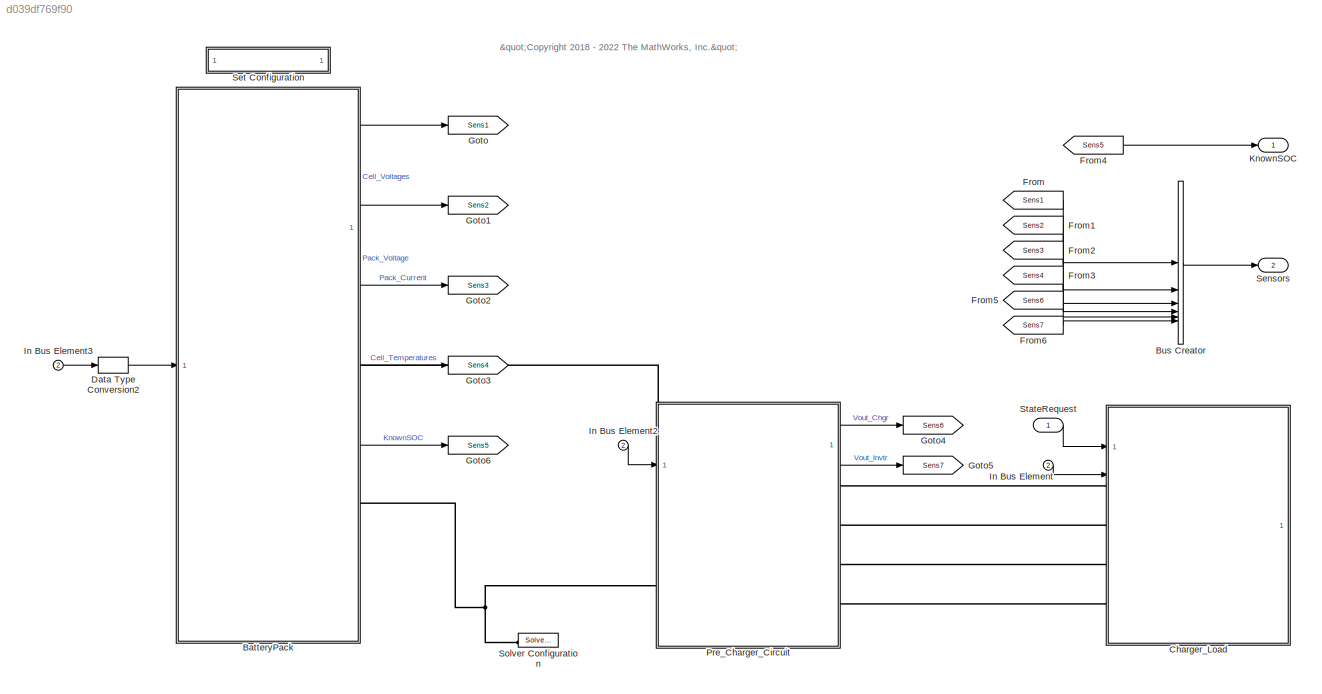
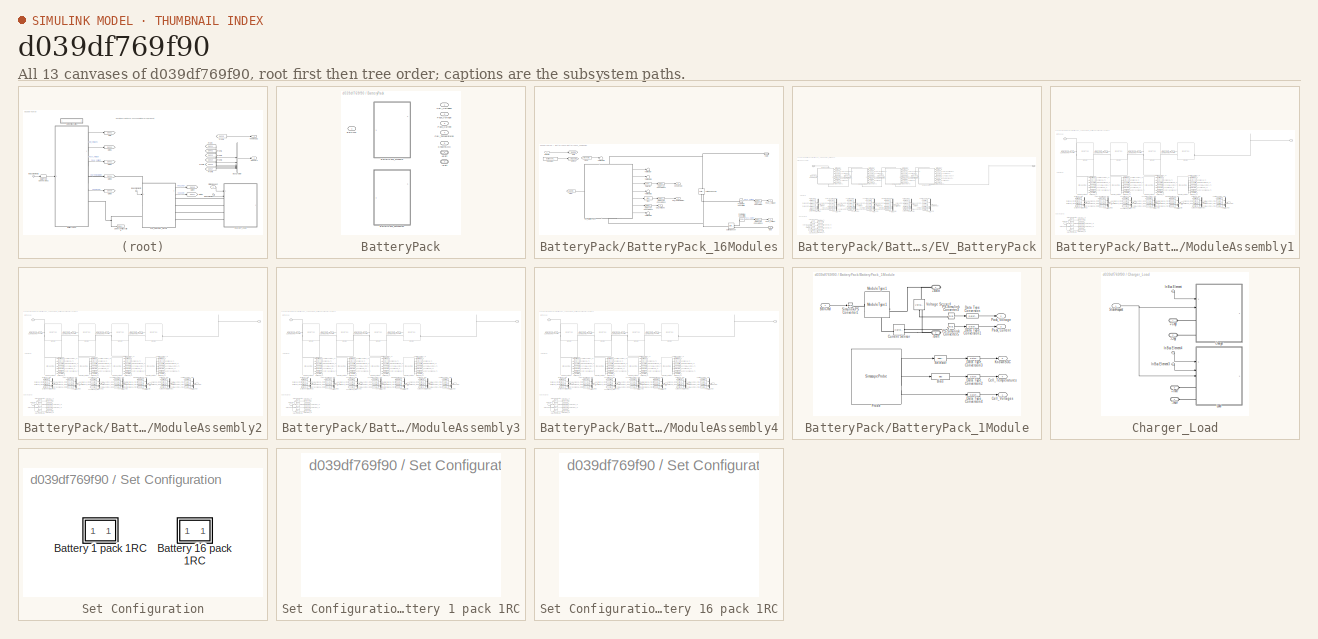
[diagram: thumbnail index - all 13 canvases of the model, root first then tree order]
MODEL slx_d039df769f90
KIND model
CONFIG AbsTol = auto
CONFIG EnableMultiTasking = off
CONFIG FixedStep = auto
CONFIG MaxStep = auto
CONFIG MinStep = auto
CONFIG RelTol = 1e-3
CONFIG SampleTimeConstraint = Unconstrained
CONFIG SolverName = FixedStepDiscrete
CONFIG StartTime = 0.0
CONFIG StopTime = 40000
BLOCK [SubSystem] BatteryPack
  Variant = on
  VariantControl = Variant1
BLOCK [PMIOPort] BatteryPack/+Batt
  Side = Right
BLOCK [PMIOPort] BatteryPack/-Batt
  Port = 2
  Side = Right
BLOCK [Inport] BatteryPack/BalCmd
BLOCK [SubSystem] BatteryPack/BatteryPack_16Modules
  VariantControl = NumModules == 16
BLOCK [PMIOPort] BatteryPack/BatteryPack_16Modules/+Batt
  Side = Right
BLOCK [PMIOPort] BatteryPack/BatteryPack_16Modules/-Batt
  Port = 2
  Side = Right
BLOCK [Inport] BatteryPack/BatteryPack_16Modules/BalCmd
BLOCK [Bias] BatteryPack/BatteryPack_16Modules/Bias
  Bias = -273
  SaturateOnIntegerOverflow = off
BLOCK [Outport] BatteryPack/BatteryPack_16Modules/Cell_Temperatures
  Port = 4
  VectorParamsAs1DForOutWhenUnconnected = off
BLOCK [Outport] BatteryPack/BatteryPack_16Modules/Cell_Voltages
  VectorParamsAs1DForOutWhenUnconnected = off
BLOCK [Constant] BatteryPack/BatteryPack_16Modules/Constant
  SampleTime = ts
  Value = Battery.TempInit
BLOCK [Reference] BatteryPack/BatteryPack_16Modules/Current Sensor  REF=fl_lib/Electrical/Electrical Sensors/Current Sensor
  SourceBlock = fl_lib/Electrical/Electrical Sensors/Current Sensor
  SourceType = Current Sensor
BLOCK [DataTypeConversion] BatteryPack/BatteryPack_16Modules/Data Type Conversion
  OutDataTypeStr = single
  RndMeth = Floor
  SaturateOnIntegerOverflow = off
BLOCK [DataTypeConversion] BatteryPack/BatteryPack_16Modules/Data Type Conversion1
  OutDataTypeStr = single
  RndMeth = Floor
  SaturateOnIntegerOverflow = off
BLOCK [DataTypeConversion] BatteryPack/BatteryPack_16Modules/Data Type Conversion2
  OutDataTypeStr = single
  RndMeth = Floor
  SaturateOnIntegerOverflow = off
BLOCK [DataTypeConversion] BatteryPack/BatteryPack_16Modules/Data Type Conversion3
  OutDataTypeStr = single
  RndMeth = Floor
  SaturateOnIntegerOverflow = off
BLOCK [DataTypeConversion] BatteryPack/BatteryPack_16Modules/Data Type Conversion4
  OutDataTypeStr = single
  RndMeth = Floor
  SaturateOnIntegerOverflow = off
BLOCK [SubSystem] BatteryPack/BatteryPack_16Modules/EV_BatteryPack
  CopyFcn = battery_builder_rtmsupport('copyfcn',gcbh);
  LoadFcn = battery_builder_rtmsupport('loadfcn',gcbh);
  PortSchema = {"entries":[{"content":{"sides":[{"content":{"connectorIds":["LConn1"]},"type":"ConnectorPlacement.EquallySpacedRectSide","uuid":"359d85ff-4718-4d52-8bd7-90bd45006e49"},{"content":{"connectorIds":["RConn1"],"side":"RIGHT"},"type":"ConnectorPlacement.EquallySpacedRectSide","uuid":"47ed1f7d-2dc6-4247-b91e-ad8d8167a2df"},{"content":{"connectorIds":["In1"],"side":"TOP"},"type":"ConnectorPlacement.Equa...<+442ch>  <repeated x5 — deduplicated; at blocks: EV_BatteryPack, ModuleAssembly1, ModuleAssembly2, ModuleAssembly3, ModuleAssembly4>
  PreCopyFcn = battery_builder_rtmsupport('precopyfcn',gcbh);
  PreDeleteFcn = battery_builder_rtmsupport('predeletefcn',gcbh);
BLOCK [PMIOPort] BatteryPack/BatteryPack_16Modules/EV_BatteryPack/+
  Side = Left
BLOCK [PMIOPort] BatteryPack/BatteryPack_16Modules/EV_BatteryPack/-
  Port = 2
  Side = Right
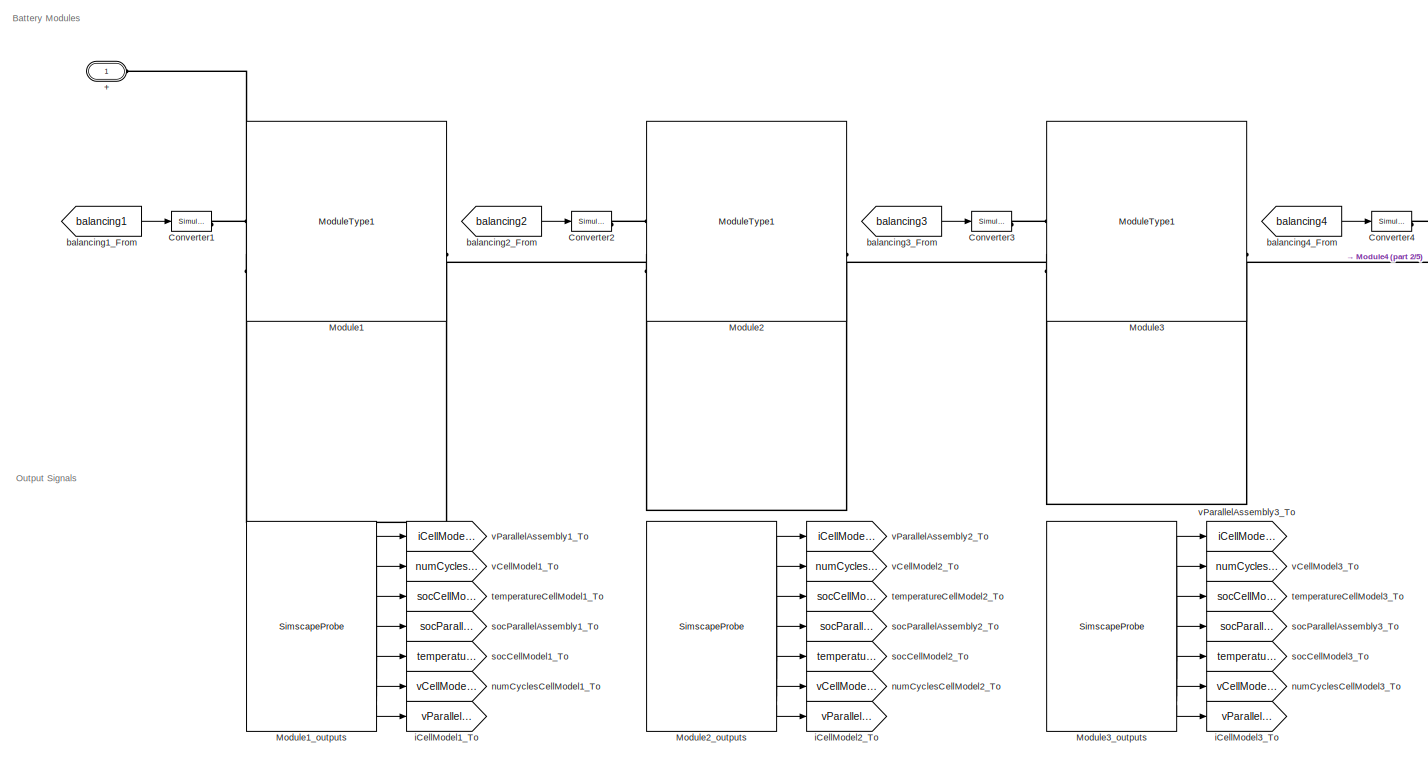
[diagram: BatteryPack/BatteryPack_16Modules/EV_BatteryPack/ModuleAssembly1 - part 1/5, top left region]
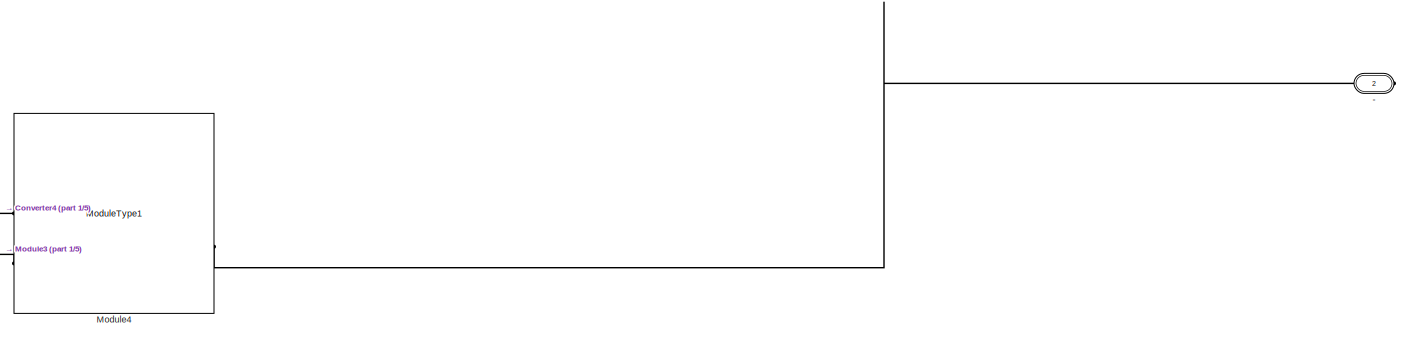
[diagram: BatteryPack/BatteryPack_16Modules/EV_BatteryPack/ModuleAssembly1 - part 2/5, top right region]
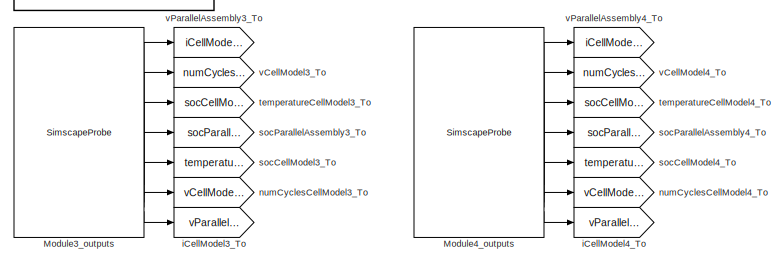
[diagram: BatteryPack/BatteryPack_16Modules/EV_BatteryPack/ModuleAssembly1 - part 3/5, central region]
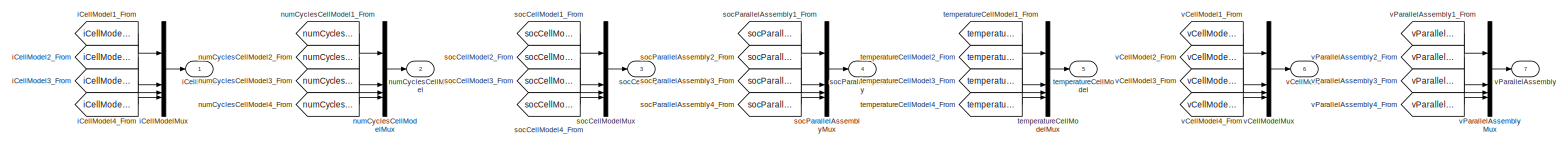
[diagram: BatteryPack/BatteryPack_16Modules/EV_BatteryPack/ModuleAssembly1 - part 4/5, bottom center region]
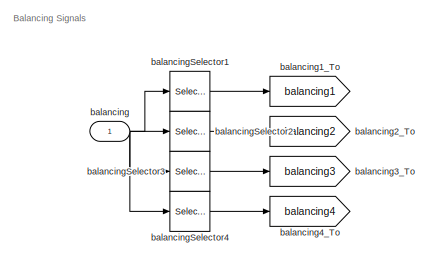
[diagram: BatteryPack/BatteryPack_16Modules/EV_BatteryPack/ModuleAssembly1 - part 5/5, bottom left region]
BLOCK [SubSystem] BatteryPack/BatteryPack_16Modules/EV_BatteryPack/ModuleAssembly1
  CopyFcn = battery_builder_rtmsupport('copyfcn',gcbh);
  LoadFcn = battery_builder_rtmsupport('loadfcn',gcbh);
  PreCopyFcn = battery_builder_rtmsupport('precopyfcn',gcbh);
  PreDeleteFcn = battery_builder_rtmsupport('predeletefcn',gcbh);
BLOCK [PMIOPort] BatteryPack/BatteryPack_16Modules/EV_BatteryPack/ModuleAssembly1/+
  Side = Left
BLOCK [PMIOPort] BatteryPack/BatteryPack_16Modules/EV_BatteryPack/ModuleAssembly1/-
  Port = 2
  Side = Right
BLOCK [Reference] BatteryPack/BatteryPack_16Modules/EV_BatteryPack/ModuleAssembly1/Converter1  REF=nesl_utility/Simulink-PS
Converter
  SourceBlock = nesl_utility/Simulink-PS\nConverter
  SourceType = Simulink-PS\nConverter
BLOCK [Reference] BatteryPack/BatteryPack_16Modules/EV_BatteryPack/ModuleAssembly1/Converter2  REF=nesl_utility/Simulink-PS
Converter
  SourceBlock = nesl_utility/Simulink-PS\nConverter
  SourceType = Simulink-PS\nConverter
BLOCK [Reference] BatteryPack/BatteryPack_16Modules/EV_BatteryPack/ModuleAssembly1/Converter3  REF=nesl_utility/Simulink-PS
Converter
  SourceBlock = nesl_utility/Simulink-PS\nConverter
  SourceType = Simulink-PS\nConverter
BLOCK [Reference] BatteryPack/BatteryPack_16Modules/EV_BatteryPack/ModuleAssembly1/Converter4  REF=nesl_utility/Simulink-PS
Converter
  SourceBlock = nesl_utility/Simulink-PS\nConverter
  SourceType = Simulink-PS\nConverter
BLOCK [Reference] BatteryPack/BatteryPack_16Modules/EV_BatteryPack/ModuleAssembly1/Module1  REF=batteryPackLibrary_lib/Modules/ModuleType1
  SourceBlock = batteryPackLibrary_lib/Modules/ModuleType1
  SourceType = ModuleType1
BLOCK [SimscapeProbe] BatteryPack/BatteryPack_16Modules/EV_BatteryPack/ModuleAssembly1/Module1_outputs
  BoundBlock = 6082
  Variables = {iCellModel, numCyclesCellModel, socCellModel, socParallelAssembly, temperatureCellModel, vCellModel, vParallelAssembly}
BLOCK [Reference] BatteryPack/BatteryPack_16Modules/EV_BatteryPack/ModuleAssembly1/Module2  REF=batteryPackLibrary_lib/Modules/ModuleType1
  SourceBlock = batteryPackLibrary_lib/Modules/ModuleType1
  SourceType = ModuleType1
BLOCK [SimscapeProbe] BatteryPack/BatteryPack_16Modules/EV_BatteryPack/ModuleAssembly1/Module2_outputs
  BoundBlock = 6084
  Variables = {iCellModel, numCyclesCellModel, socCellModel, socParallelAssembly, temperatureCellModel, vCellModel, vParallelAssembly}
BLOCK [Reference] BatteryPack/BatteryPack_16Modules/EV_BatteryPack/ModuleAssembly1/Module3  REF=batteryPackLibrary_lib/Modules/ModuleType1
  SourceBlock = batteryPackLibrary_lib/Modules/ModuleType1
  SourceType = ModuleType1
BLOCK [SimscapeProbe] BatteryPack/BatteryPack_16Modules/EV_BatteryPack/ModuleAssembly1/Module3_outputs
  BoundBlock = 6086
  Variables = {iCellModel, numCyclesCellModel, socCellModel, socParallelAssembly, temperatureCellModel, vCellModel, vParallelAssembly}
BLOCK [Reference] BatteryPack/BatteryPack_16Modules/EV_BatteryPack/ModuleAssembly1/Module4  REF=batteryPackLibrary_lib/Modules/ModuleType1
  SourceBlock = batteryPackLibrary_lib/Modules/ModuleType1
  SourceType = ModuleType1
BLOCK [SimscapeProbe] BatteryPack/BatteryPack_16Modules/EV_BatteryPack/ModuleAssembly1/Module4_outputs
  BoundBlock = 6088
  Variables = {iCellModel, numCyclesCellModel, socCellModel, socParallelAssembly, temperatureCellModel, vCellModel, vParallelAssembly}
BLOCK [Inport] BatteryPack/BatteryPack_16Modules/EV_BatteryPack/ModuleAssembly1/balancing
  PortDimensions = 24
BLOCK [From] BatteryPack/BatteryPack_16Modules/EV_BatteryPack/ModuleAssembly1/balancing1_From
  GotoTag = balancing1
BLOCK [Goto] BatteryPack/BatteryPack_16Modules/EV_BatteryPack/ModuleAssembly1/balancing1_To
  GotoTag = balancing1
BLOCK [From] BatteryPack/BatteryPack_16Modules/EV_BatteryPack/ModuleAssembly1/balancing2_From
  GotoTag = balancing2
BLOCK [Goto] BatteryPack/BatteryPack_16Modules/EV_BatteryPack/ModuleAssembly1/balancing2_To
  GotoTag = balancing2
BLOCK [From] BatteryPack/BatteryPack_16Modules/EV_BatteryPack/ModuleAssembly1/balancing3_From
  GotoTag = balancing3
BLOCK [Goto] BatteryPack/BatteryPack_16Modules/EV_BatteryPack/ModuleAssembly1/balancing3_To
  GotoTag = balancing3
BLOCK [From] BatteryPack/BatteryPack_16Modules/EV_BatteryPack/ModuleAssembly1/balancing4_From
  GotoTag = balancing4
BLOCK [Goto] BatteryPack/BatteryPack_16Modules/EV_BatteryPack/ModuleAssembly1/balancing4_To
  GotoTag = balancing4
BLOCK [Selector] BatteryPack/BatteryPack_16Modules/EV_BatteryPack/ModuleAssembly1/balancingSelector1
  IndexOptions = Index vector (dialog)
  Indices = [1  2  3  4  5  6]
  InputPortWidth = 24
  OutputSizes = 1
BLOCK [Selector] BatteryPack/BatteryPack_16Modules/EV_BatteryPack/ModuleAssembly1/balancingSelector2
  IndexOptions = Index vector (dialog)
  Indices = [7   8   9  10  11  12]
  InputPortWidth = 24
  OutputSizes = 1
BLOCK [Selector] BatteryPack/BatteryPack_16Modules/EV_BatteryPack/ModuleAssembly1/balancingSelector3
  IndexOptions = Index vector (dialog)
  Indices = [13  14  15  16  17  18]
  InputPortWidth = 24
  OutputSizes = 1
BLOCK [Selector] BatteryPack/BatteryPack_16Modules/EV_BatteryPack/ModuleAssembly1/balancingSelector4
  IndexOptions = Index vector (dialog)
  Indices = [19  20  21  22  23  24]
  InputPortWidth = 24
  OutputSizes = 1
BLOCK [Outport] BatteryPack/BatteryPack_16Modules/EV_BatteryPack/ModuleAssembly1/iCellModel
BLOCK [From] BatteryPack/BatteryPack_16Modules/EV_BatteryPack/ModuleAssembly1/iCellModel1_From
  GotoTag = iCellModel1
BLOCK [Goto] BatteryPack/BatteryPack_16Modules/EV_BatteryPack/ModuleAssembly1/iCellModel1_To
  GotoTag = vParallelAssembly1
BLOCK [From] BatteryPack/BatteryPack_16Modules/EV_BatteryPack/ModuleAssembly1/iCellModel2_From
  GotoTag = iCellModel2
BLOCK [Goto] BatteryPack/BatteryPack_16Modules/EV_BatteryPack/ModuleAssembly1/iCellModel2_To
  GotoTag = vParallelAssembly2
BLOCK [From] BatteryPack/BatteryPack_16Modules/EV_BatteryPack/ModuleAssembly1/iCellModel3_From
  GotoTag = iCellModel3
BLOCK [Goto] BatteryPack/BatteryPack_16Modules/EV_BatteryPack/ModuleAssembly1/iCellModel3_To
  GotoTag = vParallelAssembly3
BLOCK [From] BatteryPack/BatteryPack_16Modules/EV_BatteryPack/ModuleAssembly1/iCellModel4_From
  GotoTag = iCellModel4
BLOCK [Goto] BatteryPack/BatteryPack_16Modules/EV_BatteryPack/ModuleAssembly1/iCellModel4_To
  GotoTag = vParallelAssembly4
BLOCK [Mux] BatteryPack/BatteryPack_16Modules/EV_BatteryPack/ModuleAssembly1/iCellModelMux
  DisplayOption = bar
BLOCK [Outport] BatteryPack/BatteryPack_16Modules/EV_BatteryPack/ModuleAssembly1/numCyclesCellModel
  Port = 2
BLOCK [From] BatteryPack/BatteryPack_16Modules/EV_BatteryPack/ModuleAssembly1/numCyclesCellModel1_From
  GotoTag = numCyclesCellModel1
BLOCK [Goto] BatteryPack/BatteryPack_16Modules/EV_BatteryPack/ModuleAssembly1/numCyclesCellModel1_To
  GotoTag = vCellModel1
BLOCK [From] BatteryPack/BatteryPack_16Modules/EV_BatteryPack/ModuleAssembly1/numCyclesCellModel2_From
  GotoTag = numCyclesCellModel2
BLOCK [Goto] BatteryPack/BatteryPack_16Modules/EV_BatteryPack/ModuleAssembly1/numCyclesCellModel2_To
  GotoTag = vCellModel2
BLOCK [From] BatteryPack/BatteryPack_16Modules/EV_BatteryPack/ModuleAssembly1/numCyclesCellModel3_From
  GotoTag = numCyclesCellModel3
BLOCK [Goto] BatteryPack/BatteryPack_16Modules/EV_BatteryPack/ModuleAssembly1/numCyclesCellModel3_To
  GotoTag = vCellModel3
BLOCK [From] BatteryPack/BatteryPack_16Modules/EV_BatteryPack/ModuleAssembly1/numCyclesCellModel4_From
  GotoTag = numCyclesCellModel4
BLOCK [Goto] BatteryPack/BatteryPack_16Modules/EV_BatteryPack/ModuleAssembly1/numCyclesCellModel4_To
  GotoTag = vCellModel4
BLOCK [Mux] BatteryPack/BatteryPack_16Modules/EV_BatteryPack/ModuleAssembly1/numCyclesCellModelMux
  DisplayOption = bar
BLOCK [Outport] BatteryPack/BatteryPack_16Modules/EV_BatteryPack/ModuleAssembly1/socCellModel
  Port = 3
BLOCK [From] BatteryPack/BatteryPack_16Modules/EV_BatteryPack/ModuleAssembly1/socCellModel1_From
  GotoTag = socCellModel1
BLOCK [Goto] BatteryPack/BatteryPack_16Modules/EV_BatteryPack/ModuleAssembly1/socCellModel1_To
  GotoTag = temperatureCellModel1
BLOCK [From] BatteryPack/BatteryPack_16Modules/EV_BatteryPack/ModuleAssembly1/socCellModel2_From
  GotoTag = socCellModel2
BLOCK [Goto] BatteryPack/BatteryPack_16Modules/EV_BatteryPack/ModuleAssembly1/socCellModel2_To
  GotoTag = temperatureCellModel2
BLOCK [From] BatteryPack/BatteryPack_16Modules/EV_BatteryPack/ModuleAssembly1/socCellModel3_From
  GotoTag = socCellModel3
BLOCK [Goto] BatteryPack/BatteryPack_16Modules/EV_BatteryPack/ModuleAssembly1/socCellModel3_To
  GotoTag = temperatureCellModel3
BLOCK [From] BatteryPack/BatteryPack_16Modules/EV_BatteryPack/ModuleAssembly1/socCellModel4_From
  GotoTag = socCellModel4
BLOCK [Goto] BatteryPack/BatteryPack_16Modules/EV_BatteryPack/ModuleAssembly1/socCellModel4_To
  GotoTag = temperatureCellModel4
BLOCK [Mux] BatteryPack/BatteryPack_16Modules/EV_BatteryPack/ModuleAssembly1/socCellModelMux
  DisplayOption = bar
BLOCK [Outport] BatteryPack/BatteryPack_16Modules/EV_BatteryPack/ModuleAssembly1/socParallelAssembly
  Port = 4
BLOCK [From] BatteryPack/BatteryPack_16Modules/EV_BatteryPack/ModuleAssembly1/socParallelAssembly1_From
  GotoTag = socParallelAssembly1
BLOCK [Goto] BatteryPack/BatteryPack_16Modules/EV_BatteryPack/ModuleAssembly1/socParallelAssembly1_To
  GotoTag = socParallelAssembly1
BLOCK [From] BatteryPack/BatteryPack_16Modules/EV_BatteryPack/ModuleAssembly1/socParallelAssembly2_From
  GotoTag = socParallelAssembly2
BLOCK [Goto] BatteryPack/BatteryPack_16Modules/EV_BatteryPack/ModuleAssembly1/socParallelAssembly2_To
  GotoTag = socParallelAssembly2
BLOCK [From] BatteryPack/BatteryPack_16Modules/EV_BatteryPack/ModuleAssembly1/socParallelAssembly3_From
  GotoTag = socParallelAssembly3
BLOCK [Goto] BatteryPack/BatteryPack_16Modules/EV_BatteryPack/ModuleAssembly1/socParallelAssembly3_To
  GotoTag = socParallelAssembly3
BLOCK [From] BatteryPack/BatteryPack_16Modules/EV_BatteryPack/ModuleAssembly1/socParallelAssembly4_From
  GotoTag = socParallelAssembly4
BLOCK [Goto] BatteryPack/BatteryPack_16Modules/EV_BatteryPack/ModuleAssembly1/socParallelAssembly4_To
  GotoTag = socParallelAssembly4
BLOCK [Mux] BatteryPack/BatteryPack_16Modules/EV_BatteryPack/ModuleAssembly1/socParallelAssemblyMux
  DisplayOption = bar
BLOCK [Outport] BatteryPack/BatteryPack_16Modules/EV_BatteryPack/ModuleAssembly1/temperatureCellModel
  Port = 5
BLOCK [From] BatteryPack/BatteryPack_16Modules/EV_BatteryPack/ModuleAssembly1/temperatureCellModel1_From
  GotoTag = temperatureCellModel1
BLOCK [Goto] BatteryPack/BatteryPack_16Modules/EV_BatteryPack/ModuleAssembly1/temperatureCellModel1_To
  GotoTag = socCellModel1
BLOCK [From] BatteryPack/BatteryPack_16Modules/EV_BatteryPack/ModuleAssembly1/temperatureCellModel2_From
  GotoTag = temperatureCellModel2
BLOCK [Goto] BatteryPack/BatteryPack_16Modules/EV_BatteryPack/ModuleAssembly1/temperatureCellModel2_To
  GotoTag = socCellModel2
BLOCK [From] BatteryPack/BatteryPack_16Modules/EV_BatteryPack/ModuleAssembly1/temperatureCellModel3_From
  GotoTag = temperatureCellModel3
BLOCK [Goto] BatteryPack/BatteryPack_16Modules/EV_BatteryPack/ModuleAssembly1/temperatureCellModel3_To
  GotoTag = socCellModel3
BLOCK [From] BatteryPack/BatteryPack_16Modules/EV_BatteryPack/ModuleAssembly1/temperatureCellModel4_From
  GotoTag = temperatureCellModel4
BLOCK [Goto] BatteryPack/BatteryPack_16Modules/EV_BatteryPack/ModuleAssembly1/temperatureCellModel4_To
  GotoTag = socCellModel4
BLOCK [Mux] BatteryPack/BatteryPack_16Modules/EV_BatteryPack/ModuleAssembly1/temperatureCellModelMux
  DisplayOption = bar
BLOCK [Outport] BatteryPack/BatteryPack_16Modules/EV_BatteryPack/ModuleAssembly1/vCellModel
  Port = 6
BLOCK [From] BatteryPack/BatteryPack_16Modules/EV_BatteryPack/ModuleAssembly1/vCellModel1_From
  GotoTag = vCellModel1
BLOCK [Goto] BatteryPack/BatteryPack_16Modules/EV_BatteryPack/ModuleAssembly1/vCellModel1_To
  GotoTag = numCyclesCellModel1
BLOCK [From] BatteryPack/BatteryPack_16Modules/EV_BatteryPack/ModuleAssembly1/vCellModel2_From
  GotoTag = vCellModel2
BLOCK [Goto] BatteryPack/BatteryPack_16Modules/EV_BatteryPack/ModuleAssembly1/vCellModel2_To
  GotoTag = numCyclesCellModel2
BLOCK [From] BatteryPack/BatteryPack_16Modules/EV_BatteryPack/ModuleAssembly1/vCellModel3_From
  GotoTag = vCellModel3
BLOCK [Goto] BatteryPack/BatteryPack_16Modules/EV_BatteryPack/ModuleAssembly1/vCellModel3_To
  GotoTag = numCyclesCellModel3
BLOCK [From] BatteryPack/BatteryPack_16Modules/EV_BatteryPack/ModuleAssembly1/vCellModel4_From
  GotoTag = vCellModel4
BLOCK [Goto] BatteryPack/BatteryPack_16Modules/EV_BatteryPack/ModuleAssembly1/vCellModel4_To
  GotoTag = numCyclesCellModel4
BLOCK [Mux] BatteryPack/BatteryPack_16Modules/EV_BatteryPack/ModuleAssembly1/vCellModelMux
  DisplayOption = bar
BLOCK [Outport] BatteryPack/BatteryPack_16Modules/EV_BatteryPack/ModuleAssembly1/vParallelAssembly
  Port = 7
BLOCK [From] BatteryPack/BatteryPack_16Modules/EV_BatteryPack/ModuleAssembly1/vParallelAssembly1_From
  GotoTag = vParallelAssembly1
BLOCK [Goto] BatteryPack/BatteryPack_16Modules/EV_BatteryPack/ModuleAssembly1/vParallelAssembly1_To
  GotoTag = iCellModel1
BLOCK [From] BatteryPack/BatteryPack_16Modules/EV_BatteryPack/ModuleAssembly1/vParallelAssembly2_From
  GotoTag = vParallelAssembly2
BLOCK [Goto] BatteryPack/BatteryPack_16Modules/EV_BatteryPack/ModuleAssembly1/vParallelAssembly2_To
  GotoTag = iCellModel2
BLOCK [From] BatteryPack/BatteryPack_16Modules/EV_BatteryPack/ModuleAssembly1/vParallelAssembly3_From
  GotoTag = vParallelAssembly3
BLOCK [Goto] BatteryPack/BatteryPack_16Modules/EV_BatteryPack/ModuleAssembly1/vParallelAssembly3_To
  GotoTag = iCellModel3
BLOCK [From] BatteryPack/BatteryPack_16Modules/EV_BatteryPack/ModuleAssembly1/vParallelAssembly4_From
  GotoTag = vParallelAssembly4
BLOCK [Goto] BatteryPack/BatteryPack_16Modules/EV_BatteryPack/ModuleAssembly1/vParallelAssembly4_To
  GotoTag = iCellModel4
BLOCK [Mux] BatteryPack/BatteryPack_16Modules/EV_BatteryPack/ModuleAssembly1/vParallelAssemblyMux
  DisplayOption = bar
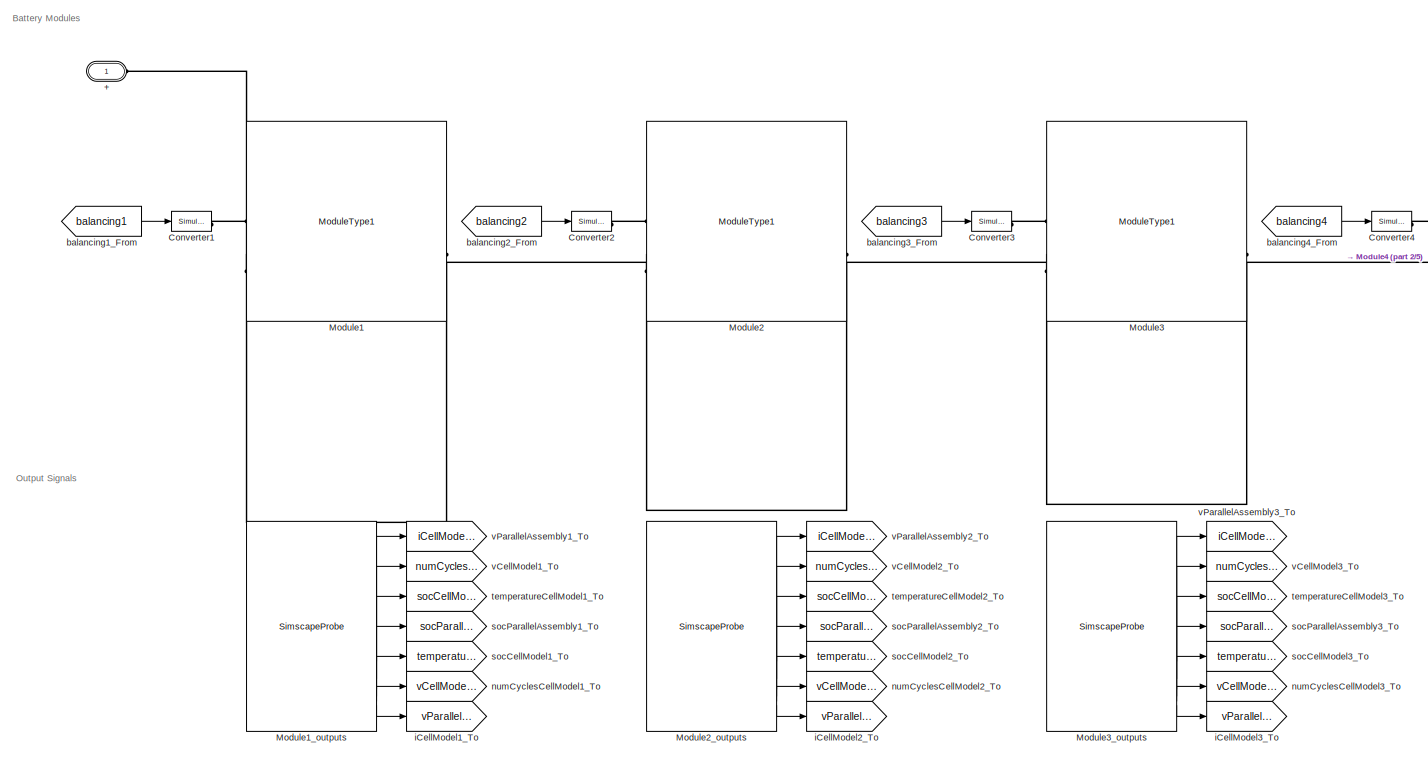
[diagram: BatteryPack/BatteryPack_16Modules/EV_BatteryPack/ModuleAssembly2 - part 1/5, top left region]
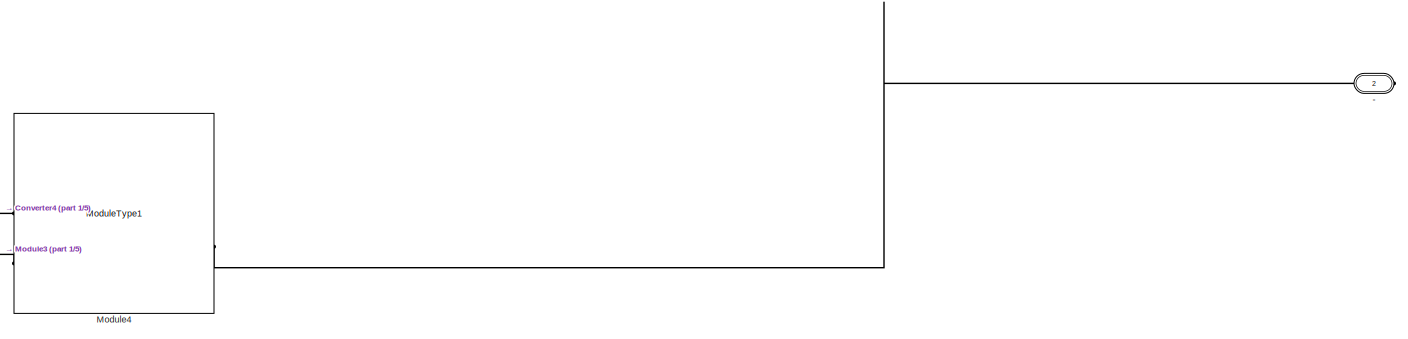
[diagram: BatteryPack/BatteryPack_16Modules/EV_BatteryPack/ModuleAssembly2 - part 2/5, top right region]
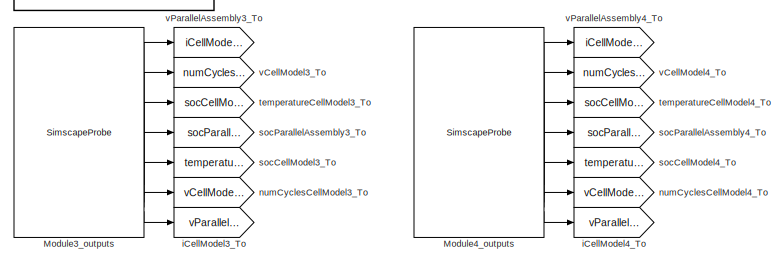
[diagram: BatteryPack/BatteryPack_16Modules/EV_BatteryPack/ModuleAssembly2 - part 3/5, central region]
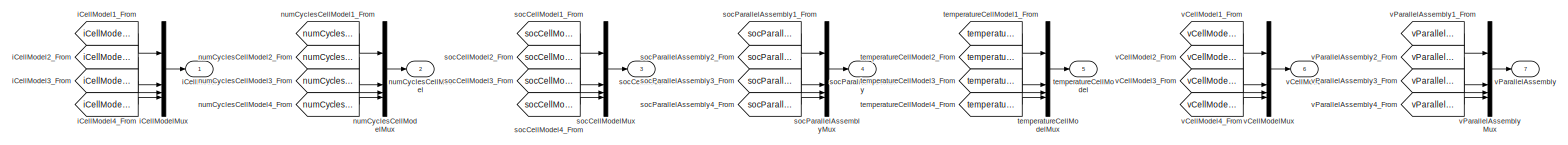
[diagram: BatteryPack/BatteryPack_16Modules/EV_BatteryPack/ModuleAssembly2 - part 4/5, bottom center region]
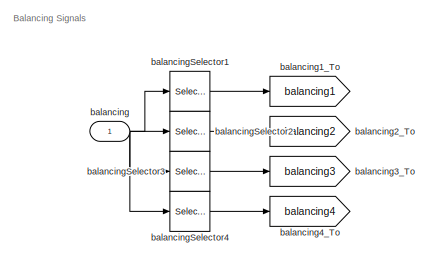
[diagram: BatteryPack/BatteryPack_16Modules/EV_BatteryPack/ModuleAssembly2 - part 5/5, bottom left region]
BLOCK [SubSystem] BatteryPack/BatteryPack_16Modules/EV_BatteryPack/ModuleAssembly2
  CopyFcn = battery_builder_rtmsupport('copyfcn',gcbh);
  LoadFcn = battery_builder_rtmsupport('loadfcn',gcbh);
  PreCopyFcn = battery_builder_rtmsupport('precopyfcn',gcbh);
  PreDeleteFcn = battery_builder_rtmsupport('predeletefcn',gcbh);
BLOCK [PMIOPort] BatteryPack/BatteryPack_16Modules/EV_BatteryPack/ModuleAssembly2/+
  Side = Left
BLOCK [PMIOPort] BatteryPack/BatteryPack_16Modules/EV_BatteryPack/ModuleAssembly2/-
  Port = 2
  Side = Right
BLOCK [Reference] BatteryPack/BatteryPack_16Modules/EV_BatteryPack/ModuleAssembly2/Converter1  REF=nesl_utility/Simulink-PS
Converter
  SourceBlock = nesl_utility/Simulink-PS\nConverter
  SourceType = Simulink-PS\nConverter
BLOCK [Reference] BatteryPack/BatteryPack_16Modules/EV_BatteryPack/ModuleAssembly2/Converter2  REF=nesl_utility/Simulink-PS
Converter
  SourceBlock = nesl_utility/Simulink-PS\nConverter
  SourceType = Simulink-PS\nConverter
BLOCK [Reference] BatteryPack/BatteryPack_16Modules/EV_BatteryPack/ModuleAssembly2/Converter3  REF=nesl_utility/Simulink-PS
Converter
  SourceBlock = nesl_utility/Simulink-PS\nConverter
  SourceType = Simulink-PS\nConverter
BLOCK [Reference] BatteryPack/BatteryPack_16Modules/EV_BatteryPack/ModuleAssembly2/Converter4  REF=nesl_utility/Simulink-PS
Converter
  SourceBlock = nesl_utility/Simulink-PS\nConverter
  SourceType = Simulink-PS\nConverter
BLOCK [Reference] BatteryPack/BatteryPack_16Modules/EV_BatteryPack/ModuleAssembly2/Module1  REF=batteryPackLibrary_lib/Modules/ModuleType1
  SourceBlock = batteryPackLibrary_lib/Modules/ModuleType1
  SourceType = ModuleType1
BLOCK [SimscapeProbe] BatteryPack/BatteryPack_16Modules/EV_BatteryPack/ModuleAssembly2/Module1_outputs
  BoundBlock = 6183
  Variables = {iCellModel, numCyclesCellModel, socCellModel, socParallelAssembly, temperatureCellModel, vCellModel, vParallelAssembly}
BLOCK [Reference] BatteryPack/BatteryPack_16Modules/EV_BatteryPack/ModuleAssembly2/Module2  REF=batteryPackLibrary_lib/Modules/ModuleType1
  SourceBlock = batteryPackLibrary_lib/Modules/ModuleType1
  SourceType = ModuleType1
BLOCK [SimscapeProbe] BatteryPack/BatteryPack_16Modules/EV_BatteryPack/ModuleAssembly2/Module2_outputs
  BoundBlock = 6185
  Variables = {iCellModel, numCyclesCellModel, socCellModel, socParallelAssembly, temperatureCellModel, vCellModel, vParallelAssembly}
BLOCK [Reference] BatteryPack/BatteryPack_16Modules/EV_BatteryPack/ModuleAssembly2/Module3  REF=batteryPackLibrary_lib/Modules/ModuleType1
  SourceBlock = batteryPackLibrary_lib/Modules/ModuleType1
  SourceType = ModuleType1
BLOCK [SimscapeProbe] BatteryPack/BatteryPack_16Modules/EV_BatteryPack/ModuleAssembly2/Module3_outputs
  BoundBlock = 6187
  Variables = {iCellModel, numCyclesCellModel, socCellModel, socParallelAssembly, temperatureCellModel, vCellModel, vParallelAssembly}
BLOCK [Reference] BatteryPack/BatteryPack_16Modules/EV_BatteryPack/ModuleAssembly2/Module4  REF=batteryPackLibrary_lib/Modules/ModuleType1
  SourceBlock = batteryPackLibrary_lib/Modules/ModuleType1
  SourceType = ModuleType1
BLOCK [SimscapeProbe] BatteryPack/BatteryPack_16Modules/EV_BatteryPack/ModuleAssembly2/Module4_outputs
  BoundBlock = 6189
  Variables = {iCellModel, numCyclesCellModel, socCellModel, socParallelAssembly, temperatureCellModel, vCellModel, vParallelAssembly}
BLOCK [Inport] BatteryPack/BatteryPack_16Modules/EV_BatteryPack/ModuleAssembly2/balancing
  PortDimensions = 24
BLOCK [From] BatteryPack/BatteryPack_16Modules/EV_BatteryPack/ModuleAssembly2/balancing1_From
  GotoTag = balancing1
BLOCK [Goto] BatteryPack/BatteryPack_16Modules/EV_BatteryPack/ModuleAssembly2/balancing1_To
  GotoTag = balancing1
BLOCK [From] BatteryPack/BatteryPack_16Modules/EV_BatteryPack/ModuleAssembly2/balancing2_From
  GotoTag = balancing2
BLOCK [Goto] BatteryPack/BatteryPack_16Modules/EV_BatteryPack/ModuleAssembly2/balancing2_To
  GotoTag = balancing2
BLOCK [From] BatteryPack/BatteryPack_16Modules/EV_BatteryPack/ModuleAssembly2/balancing3_From
  GotoTag = balancing3
BLOCK [Goto] BatteryPack/BatteryPack_16Modules/EV_BatteryPack/ModuleAssembly2/balancing3_To
  GotoTag = balancing3
BLOCK [From] BatteryPack/BatteryPack_16Modules/EV_BatteryPack/ModuleAssembly2/balancing4_From
  GotoTag = balancing4
BLOCK [Goto] BatteryPack/BatteryPack_16Modules/EV_BatteryPack/ModuleAssembly2/balancing4_To
  GotoTag = balancing4
BLOCK [Selector] BatteryPack/BatteryPack_16Modules/EV_BatteryPack/ModuleAssembly2/balancingSelector1
  IndexOptions = Index vector (dialog)
  Indices = [1  2  3  4  5  6]
  InputPortWidth = 24
  OutputSizes = 1
BLOCK [Selector] BatteryPack/BatteryPack_16Modules/EV_BatteryPack/ModuleAssembly2/balancingSelector2
  IndexOptions = Index vector (dialog)
  Indices = [7   8   9  10  11  12]
  InputPortWidth = 24
  OutputSizes = 1
BLOCK [Selector] BatteryPack/BatteryPack_16Modules/EV_BatteryPack/ModuleAssembly2/balancingSelector3
  IndexOptions = Index vector (dialog)
  Indices = [13  14  15  16  17  18]
  InputPortWidth = 24
  OutputSizes = 1
BLOCK [Selector] BatteryPack/BatteryPack_16Modules/EV_BatteryPack/ModuleAssembly2/balancingSelector4
  IndexOptions = Index vector (dialog)
  Indices = [19  20  21  22  23  24]
  InputPortWidth = 24
  OutputSizes = 1
BLOCK [Outport] BatteryPack/BatteryPack_16Modules/EV_BatteryPack/ModuleAssembly2/iCellModel
BLOCK [From] BatteryPack/BatteryPack_16Modules/EV_BatteryPack/ModuleAssembly2/iCellModel1_From
  GotoTag = iCellModel1
BLOCK [Goto] BatteryPack/BatteryPack_16Modules/EV_BatteryPack/ModuleAssembly2/iCellModel1_To
  GotoTag = vParallelAssembly1
BLOCK [From] BatteryPack/BatteryPack_16Modules/EV_BatteryPack/ModuleAssembly2/iCellModel2_From
  GotoTag = iCellModel2
BLOCK [Goto] BatteryPack/BatteryPack_16Modules/EV_BatteryPack/ModuleAssembly2/iCellModel2_To
  GotoTag = vParallelAssembly2
BLOCK [From] BatteryPack/BatteryPack_16Modules/EV_BatteryPack/ModuleAssembly2/iCellModel3_From
  GotoTag = iCellModel3
BLOCK [Goto] BatteryPack/BatteryPack_16Modules/EV_BatteryPack/ModuleAssembly2/iCellModel3_To
  GotoTag = vParallelAssembly3
BLOCK [From] BatteryPack/BatteryPack_16Modules/EV_BatteryPack/ModuleAssembly2/iCellModel4_From
  GotoTag = iCellModel4
BLOCK [Goto] BatteryPack/BatteryPack_16Modules/EV_BatteryPack/ModuleAssembly2/iCellModel4_To
  GotoTag = vParallelAssembly4
BLOCK [Mux] BatteryPack/BatteryPack_16Modules/EV_BatteryPack/ModuleAssembly2/iCellModelMux
  DisplayOption = bar
BLOCK [Outport] BatteryPack/BatteryPack_16Modules/EV_BatteryPack/ModuleAssembly2/numCyclesCellModel
  Port = 2
BLOCK [From] BatteryPack/BatteryPack_16Modules/EV_BatteryPack/ModuleAssembly2/numCyclesCellModel1_From
  GotoTag = numCyclesCellModel1
BLOCK [Goto] BatteryPack/BatteryPack_16Modules/EV_BatteryPack/ModuleAssembly2/numCyclesCellModel1_To
  GotoTag = vCellModel1
BLOCK [From] BatteryPack/BatteryPack_16Modules/EV_BatteryPack/ModuleAssembly2/numCyclesCellModel2_From
  GotoTag = numCyclesCellModel2
BLOCK [Goto] BatteryPack/BatteryPack_16Modules/EV_BatteryPack/ModuleAssembly2/numCyclesCellModel2_To
  GotoTag = vCellModel2
BLOCK [From] BatteryPack/BatteryPack_16Modules/EV_BatteryPack/ModuleAssembly2/numCyclesCellModel3_From
  GotoTag = numCyclesCellModel3
BLOCK [Goto] BatteryPack/BatteryPack_16Modules/EV_BatteryPack/ModuleAssembly2/numCyclesCellModel3_To
  GotoTag = vCellModel3
BLOCK [From] BatteryPack/BatteryPack_16Modules/EV_BatteryPack/ModuleAssembly2/numCyclesCellModel4_From
  GotoTag = numCyclesCellModel4
BLOCK [Goto] BatteryPack/BatteryPack_16Modules/EV_BatteryPack/ModuleAssembly2/numCyclesCellModel4_To
  GotoTag = vCellModel4
BLOCK [Mux] BatteryPack/BatteryPack_16Modules/EV_BatteryPack/ModuleAssembly2/numCyclesCellModelMux
  DisplayOption = bar
BLOCK [Outport] BatteryPack/BatteryPack_16Modules/EV_BatteryPack/ModuleAssembly2/socCellModel
  Port = 3
BLOCK [From] BatteryPack/BatteryPack_16Modules/EV_BatteryPack/ModuleAssembly2/socCellModel1_From
  GotoTag = socCellModel1
BLOCK [Goto] BatteryPack/BatteryPack_16Modules/EV_BatteryPack/ModuleAssembly2/socCellModel1_To
  GotoTag = temperatureCellModel1
BLOCK [From] BatteryPack/BatteryPack_16Modules/EV_BatteryPack/ModuleAssembly2/socCellModel2_From
  GotoTag = socCellModel2
BLOCK [Goto] BatteryPack/BatteryPack_16Modules/EV_BatteryPack/ModuleAssembly2/socCellModel2_To
  GotoTag = temperatureCellModel2
BLOCK [From] BatteryPack/BatteryPack_16Modules/EV_BatteryPack/ModuleAssembly2/socCellModel3_From
  GotoTag = socCellModel3
BLOCK [Goto] BatteryPack/BatteryPack_16Modules/EV_BatteryPack/ModuleAssembly2/socCellModel3_To
  GotoTag = temperatureCellModel3
BLOCK [From] BatteryPack/BatteryPack_16Modules/EV_BatteryPack/ModuleAssembly2/socCellModel4_From
  GotoTag = socCellModel4
BLOCK [Goto] BatteryPack/BatteryPack_16Modules/EV_BatteryPack/ModuleAssembly2/socCellModel4_To
  GotoTag = temperatureCellModel4
BLOCK [Mux] BatteryPack/BatteryPack_16Modules/EV_BatteryPack/ModuleAssembly2/socCellModelMux
  DisplayOption = bar
BLOCK [Outport] BatteryPack/BatteryPack_16Modules/EV_BatteryPack/ModuleAssembly2/socParallelAssembly
  Port = 4
BLOCK [From] BatteryPack/BatteryPack_16Modules/EV_BatteryPack/ModuleAssembly2/socParallelAssembly1_From
  GotoTag = socParallelAssembly1
BLOCK [Goto] BatteryPack/BatteryPack_16Modules/EV_BatteryPack/ModuleAssembly2/socParallelAssembly1_To
  GotoTag = socParallelAssembly1
BLOCK [From] BatteryPack/BatteryPack_16Modules/EV_BatteryPack/ModuleAssembly2/socParallelAssembly2_From
  GotoTag = socParallelAssembly2
BLOCK [Goto] BatteryPack/BatteryPack_16Modules/EV_BatteryPack/ModuleAssembly2/socParallelAssembly2_To
  GotoTag = socParallelAssembly2
BLOCK [From] BatteryPack/BatteryPack_16Modules/EV_BatteryPack/ModuleAssembly2/socParallelAssembly3_From
  GotoTag = socParallelAssembly3
BLOCK [Goto] BatteryPack/BatteryPack_16Modules/EV_BatteryPack/ModuleAssembly2/socParallelAssembly3_To
  GotoTag = socParallelAssembly3
BLOCK [From] BatteryPack/BatteryPack_16Modules/EV_BatteryPack/ModuleAssembly2/socParallelAssembly4_From
  GotoTag = socParallelAssembly4
BLOCK [Goto] BatteryPack/BatteryPack_16Modules/EV_BatteryPack/ModuleAssembly2/socParallelAssembly4_To
  GotoTag = socParallelAssembly4
BLOCK [Mux] BatteryPack/BatteryPack_16Modules/EV_BatteryPack/ModuleAssembly2/socParallelAssemblyMux
  DisplayOption = bar
BLOCK [Outport] BatteryPack/BatteryPack_16Modules/EV_BatteryPack/ModuleAssembly2/temperatureCellModel
  Port = 5
BLOCK [From] BatteryPack/BatteryPack_16Modules/EV_BatteryPack/ModuleAssembly2/temperatureCellModel1_From
  GotoTag = temperatureCellModel1
BLOCK [Goto] BatteryPack/BatteryPack_16Modules/EV_BatteryPack/ModuleAssembly2/temperatureCellModel1_To
  GotoTag = socCellModel1
BLOCK [From] BatteryPack/BatteryPack_16Modules/EV_BatteryPack/ModuleAssembly2/temperatureCellModel2_From
  GotoTag = temperatureCellModel2
BLOCK [Goto] BatteryPack/BatteryPack_16Modules/EV_BatteryPack/ModuleAssembly2/temperatureCellModel2_To
  GotoTag = socCellModel2
BLOCK [From] BatteryPack/BatteryPack_16Modules/EV_BatteryPack/ModuleAssembly2/temperatureCellModel3_From
  GotoTag = temperatureCellModel3
BLOCK [Goto] BatteryPack/BatteryPack_16Modules/EV_BatteryPack/ModuleAssembly2/temperatureCellModel3_To
  GotoTag = socCellModel3
BLOCK [From] BatteryPack/BatteryPack_16Modules/EV_BatteryPack/ModuleAssembly2/temperatureCellModel4_From
  GotoTag = temperatureCellModel4
BLOCK [Goto] BatteryPack/BatteryPack_16Modules/EV_BatteryPack/ModuleAssembly2/temperatureCellModel4_To
  GotoTag = socCellModel4
BLOCK [Mux] BatteryPack/BatteryPack_16Modules/EV_BatteryPack/ModuleAssembly2/temperatureCellModelMux
  DisplayOption = bar
BLOCK [Outport] BatteryPack/BatteryPack_16Modules/EV_BatteryPack/ModuleAssembly2/vCellModel
  Port = 6
BLOCK [From] BatteryPack/BatteryPack_16Modules/EV_BatteryPack/ModuleAssembly2/vCellModel1_From
  GotoTag = vCellModel1
BLOCK [Goto] BatteryPack/BatteryPack_16Modules/EV_BatteryPack/ModuleAssembly2/vCellModel1_To
  GotoTag = numCyclesCellModel1
BLOCK [From] BatteryPack/BatteryPack_16Modules/EV_BatteryPack/ModuleAssembly2/vCellModel2_From
  GotoTag = vCellModel2
BLOCK [Goto] BatteryPack/BatteryPack_16Modules/EV_BatteryPack/ModuleAssembly2/vCellModel2_To
  GotoTag = numCyclesCellModel2
BLOCK [From] BatteryPack/BatteryPack_16Modules/EV_BatteryPack/ModuleAssembly2/vCellModel3_From
  GotoTag = vCellModel3
BLOCK [Goto] BatteryPack/BatteryPack_16Modules/EV_BatteryPack/ModuleAssembly2/vCellModel3_To
  GotoTag = numCyclesCellModel3
BLOCK [From] BatteryPack/BatteryPack_16Modules/EV_BatteryPack/ModuleAssembly2/vCellModel4_From
  GotoTag = vCellModel4
BLOCK [Goto] BatteryPack/BatteryPack_16Modules/EV_BatteryPack/ModuleAssembly2/vCellModel4_To
  GotoTag = numCyclesCellModel4
BLOCK [Mux] BatteryPack/BatteryPack_16Modules/EV_BatteryPack/ModuleAssembly2/vCellModelMux
  DisplayOption = bar
BLOCK [Outport] BatteryPack/BatteryPack_16Modules/EV_BatteryPack/ModuleAssembly2/vParallelAssembly
  Port = 7
BLOCK [From] BatteryPack/BatteryPack_16Modules/EV_BatteryPack/ModuleAssembly2/vParallelAssembly1_From
  GotoTag = vParallelAssembly1
BLOCK [Goto] BatteryPack/BatteryPack_16Modules/EV_BatteryPack/ModuleAssembly2/vParallelAssembly1_To
  GotoTag = iCellModel1
BLOCK [From] BatteryPack/BatteryPack_16Modules/EV_BatteryPack/ModuleAssembly2/vParallelAssembly2_From
  GotoTag = vParallelAssembly2
BLOCK [Goto] BatteryPack/BatteryPack_16Modules/EV_BatteryPack/ModuleAssembly2/vParallelAssembly2_To
  GotoTag = iCellModel2
BLOCK [From] BatteryPack/BatteryPack_16Modules/EV_BatteryPack/ModuleAssembly2/vParallelAssembly3_From
  GotoTag = vParallelAssembly3
BLOCK [Goto] BatteryPack/BatteryPack_16Modules/EV_BatteryPack/ModuleAssembly2/vParallelAssembly3_To
  GotoTag = iCellModel3
BLOCK [From] BatteryPack/BatteryPack_16Modules/EV_BatteryPack/ModuleAssembly2/vParallelAssembly4_From
  GotoTag = vParallelAssembly4
BLOCK [Goto] BatteryPack/BatteryPack_16Modules/EV_BatteryPack/ModuleAssembly2/vParallelAssembly4_To
  GotoTag = iCellModel4
BLOCK [Mux] BatteryPack/BatteryPack_16Modules/EV_BatteryPack/ModuleAssembly2/vParallelAssemblyMux
  DisplayOption = bar
BLOCK [SubSystem] BatteryPack/BatteryPack_16Modules/EV_BatteryPack/ModuleAssembly3
  CopyFcn = battery_builder_rtmsupport('copyfcn',gcbh);
  LoadFcn = battery_builder_rtmsupport('loadfcn',gcbh);
  PreCopyFcn = battery_builder_rtmsupport('precopyfcn',gcbh);
  PreDeleteFcn = battery_builder_rtmsupport('predeletefcn',gcbh);
BLOCK [PMIOPort] BatteryPack/BatteryPack_16Modules/EV_BatteryPack/ModuleAssembly3/+
  Side = Left
BLOCK [PMIOPort] BatteryPack/BatteryPack_16Modules/EV_BatteryPack/ModuleAssembly3/-
  Port = 2
  Side = Right
BLOCK [Reference] BatteryPack/BatteryPack_16Modules/EV_BatteryPack/ModuleAssembly3/Converter1  REF=nesl_utility/Simulink-PS
Converter
  SourceBlock = nesl_utility/Simulink-PS\nConverter
  SourceType = Simulink-PS\nConverter
BLOCK [Reference] BatteryPack/BatteryPack_16Modules/EV_BatteryPack/ModuleAssembly3/Converter2  REF=nesl_utility/Simulink-PS
Converter
  SourceBlock = nesl_utility/Simulink-PS\nConverter
  SourceType = Simulink-PS\nConverter
BLOCK [Reference] BatteryPack/BatteryPack_16Modules/EV_BatteryPack/ModuleAssembly3/Converter3  REF=nesl_utility/Simulink-PS
Converter
  SourceBlock = nesl_utility/Simulink-PS\nConverter
  SourceType = Simulink-PS\nConverter
BLOCK [Reference] BatteryPack/BatteryPack_16Modules/EV_BatteryPack/ModuleAssembly3/Converter4  REF=nesl_utility/Simulink-PS
Converter
  SourceBlock = nesl_utility/Simulink-PS\nConverter
  SourceType = Simulink-PS\nConverter
BLOCK [Reference] BatteryPack/BatteryPack_16Modules/EV_BatteryPack/ModuleAssembly3/Module1  REF=batteryPackLibrary_lib/Modules/ModuleType1
  SourceBlock = batteryPackLibrary_lib/Modules/ModuleType1
  SourceType = ModuleType1
BLOCK [SimscapeProbe] BatteryPack/BatteryPack_16Modules/EV_BatteryPack/ModuleAssembly3/Module1_outputs
  BoundBlock = 6284
  Variables = {iCellModel, numCyclesCellModel, socCellModel, socParallelAssembly, temperatureCellModel, vCellModel, vParallelAssembly}
BLOCK [Reference] BatteryPack/BatteryPack_16Modules/EV_BatteryPack/ModuleAssembly3/Module2  REF=batteryPackLibrary_lib/Modules/ModuleType1
  SourceBlock = batteryPackLibrary_lib/Modules/ModuleType1
  SourceType = ModuleType1
BLOCK [SimscapeProbe] BatteryPack/BatteryPack_16Modules/EV_BatteryPack/ModuleAssembly3/Module2_outputs
  BoundBlock = 6286
  Variables = {iCellModel, numCyclesCellModel, socCellModel, socParallelAssembly, temperatureCellModel, vCellModel, vParallelAssembly}
BLOCK [Reference] BatteryPack/BatteryPack_16Modules/EV_BatteryPack/ModuleAssembly3/Module3  REF=batteryPackLibrary_lib/Modules/ModuleType1
  SourceBlock = batteryPackLibrary_lib/Modules/ModuleType1
  SourceType = ModuleType1
BLOCK [SimscapeProbe] BatteryPack/BatteryPack_16Modules/EV_BatteryPack/ModuleAssembly3/Module3_outputs
  BoundBlock = 6288
  Variables = {iCellModel, numCyclesCellModel, socCellModel, socParallelAssembly, temperatureCellModel, vCellModel, vParallelAssembly}
BLOCK [Reference] BatteryPack/BatteryPack_16Modules/EV_BatteryPack/ModuleAssembly3/Module4  REF=batteryPackLibrary_lib/Modules/ModuleType1
  SourceBlock = batteryPackLibrary_lib/Modules/ModuleType1
  SourceType = ModuleType1
BLOCK [SimscapeProbe] BatteryPack/BatteryPack_16Modules/EV_BatteryPack/ModuleAssembly3/Module4_outputs
  BoundBlock = 6290
  Variables = {iCellModel, numCyclesCellModel, socCellModel, socParallelAssembly, temperatureCellModel, vCellModel, vParallelAssembly}
BLOCK [Inport] BatteryPack/BatteryPack_16Modules/EV_BatteryPack/ModuleAssembly3/balancing
  PortDimensions = 24
BLOCK [From] BatteryPack/BatteryPack_16Modules/EV_BatteryPack/ModuleAssembly3/balancing1_From
  GotoTag = balancing1
BLOCK [Goto] BatteryPack/BatteryPack_16Modules/EV_BatteryPack/ModuleAssembly3/balancing1_To
  GotoTag = balancing1
BLOCK [From] BatteryPack/BatteryPack_16Modules/EV_BatteryPack/ModuleAssembly3/balancing2_From
  GotoTag = balancing2
BLOCK [Goto] BatteryPack/BatteryPack_16Modules/EV_BatteryPack/ModuleAssembly3/balancing2_To
  GotoTag = balancing2
BLOCK [From] BatteryPack/BatteryPack_16Modules/EV_BatteryPack/ModuleAssembly3/balancing3_From
  GotoTag = balancing3
BLOCK [Goto] BatteryPack/BatteryPack_16Modules/EV_BatteryPack/ModuleAssembly3/balancing3_To
  GotoTag = balancing3
BLOCK [From] BatteryPack/BatteryPack_16Modules/EV_BatteryPack/ModuleAssembly3/balancing4_From
  GotoTag = balancing4
BLOCK [Goto] BatteryPack/BatteryPack_16Modules/EV_BatteryPack/ModuleAssembly3/balancing4_To
  GotoTag = balancing4
BLOCK [Selector] BatteryPack/BatteryPack_16Modules/EV_BatteryPack/ModuleAssembly3/balancingSelector1
  IndexOptions = Index vector (dialog)
  Indices = [1  2  3  4  5  6]
  InputPortWidth = 24
  OutputSizes = 1
BLOCK [Selector] BatteryPack/BatteryPack_16Modules/EV_BatteryPack/ModuleAssembly3/balancingSelector2
  IndexOptions = Index vector (dialog)
  Indices = [7   8   9  10  11  12]
  InputPortWidth = 24
  OutputSizes = 1
BLOCK [Selector] BatteryPack/BatteryPack_16Modules/EV_BatteryPack/ModuleAssembly3/balancingSelector3
  IndexOptions = Index vector (dialog)
  Indices = [13  14  15  16  17  18]
  InputPortWidth = 24
  OutputSizes = 1
BLOCK [Selector] BatteryPack/BatteryPack_16Modules/EV_BatteryPack/ModuleAssembly3/balancingSelector4
  IndexOptions = Index vector (dialog)
  Indices = [19  20  21  22  23  24]
  InputPortWidth = 24
  OutputSizes = 1
BLOCK [Outport] BatteryPack/BatteryPack_16Modules/EV_BatteryPack/ModuleAssembly3/iCellModel
BLOCK [From] BatteryPack/BatteryPack_16Modules/EV_BatteryPack/ModuleAssembly3/iCellModel1_From
  GotoTag = iCellModel1
BLOCK [Goto] BatteryPack/BatteryPack_16Modules/EV_BatteryPack/ModuleAssembly3/iCellModel1_To
  GotoTag = vParallelAssembly1
BLOCK [From] BatteryPack/BatteryPack_16Modules/EV_BatteryPack/ModuleAssembly3/iCellModel2_From
  GotoTag = iCellModel2
BLOCK [Goto] BatteryPack/BatteryPack_16Modules/EV_BatteryPack/ModuleAssembly3/iCellModel2_To
  GotoTag = vParallelAssembly2
BLOCK [From] BatteryPack/BatteryPack_16Modules/EV_BatteryPack/ModuleAssembly3/iCellModel3_From
  GotoTag = iCellModel3
BLOCK [Goto] BatteryPack/BatteryPack_16Modules/EV_BatteryPack/ModuleAssembly3/iCellModel3_To
  GotoTag = vParallelAssembly3
BLOCK [From] BatteryPack/BatteryPack_16Modules/EV_BatteryPack/ModuleAssembly3/iCellModel4_From
  GotoTag = iCellModel4
BLOCK [Goto] BatteryPack/BatteryPack_16Modules/EV_BatteryPack/ModuleAssembly3/iCellModel4_To
  GotoTag = vParallelAssembly4
BLOCK [Mux] BatteryPack/BatteryPack_16Modules/EV_BatteryPack/ModuleAssembly3/iCellModelMux
  DisplayOption = bar
BLOCK [Outport] BatteryPack/BatteryPack_16Modules/EV_BatteryPack/ModuleAssembly3/numCyclesCellModel
  Port = 2
BLOCK [From] BatteryPack/BatteryPack_16Modules/EV_BatteryPack/ModuleAssembly3/numCyclesCellModel1_From
  GotoTag = numCyclesCellModel1
BLOCK [Goto] BatteryPack/BatteryPack_16Modules/EV_BatteryPack/ModuleAssembly3/numCyclesCellModel1_To
  GotoTag = vCellModel1
BLOCK [From] BatteryPack/BatteryPack_16Modules/EV_BatteryPack/ModuleAssembly3/numCyclesCellModel2_From
  GotoTag = numCyclesCellModel2
BLOCK [Goto] BatteryPack/BatteryPack_16Modules/EV_BatteryPack/ModuleAssembly3/numCyclesCellModel2_To
  GotoTag = vCellModel2
BLOCK [From] BatteryPack/BatteryPack_16Modules/EV_BatteryPack/ModuleAssembly3/numCyclesCellModel3_From
  GotoTag = numCyclesCellModel3
BLOCK [Goto] BatteryPack/BatteryPack_16Modules/EV_BatteryPack/ModuleAssembly3/numCyclesCellModel3_To
  GotoTag = vCellModel3
BLOCK [From] BatteryPack/BatteryPack_16Modules/EV_BatteryPack/ModuleAssembly3/numCyclesCellModel4_From
  GotoTag = numCyclesCellModel4
BLOCK [Goto] BatteryPack/BatteryPack_16Modules/EV_BatteryPack/ModuleAssembly3/numCyclesCellModel4_To
  GotoTag = vCellModel4
BLOCK [Mux] BatteryPack/BatteryPack_16Modules/EV_BatteryPack/ModuleAssembly3/numCyclesCellModelMux
  DisplayOption = bar
BLOCK [Outport] BatteryPack/BatteryPack_16Modules/EV_BatteryPack/ModuleAssembly3/socCellModel
  Port = 3
BLOCK [From] BatteryPack/BatteryPack_16Modules/EV_BatteryPack/ModuleAssembly3/socCellModel1_From
  GotoTag = socCellModel1
BLOCK [Goto] BatteryPack/BatteryPack_16Modules/EV_BatteryPack/ModuleAssembly3/socCellModel1_To
  GotoTag = temperatureCellModel1
BLOCK [From] BatteryPack/BatteryPack_16Modules/EV_BatteryPack/ModuleAssembly3/socCellModel2_From
  GotoTag = socCellModel2
BLOCK [Goto] BatteryPack/BatteryPack_16Modules/EV_BatteryPack/ModuleAssembly3/socCellModel2_To
  GotoTag = temperatureCellModel2
BLOCK [From] BatteryPack/BatteryPack_16Modules/EV_BatteryPack/ModuleAssembly3/socCellModel3_From
  GotoTag = socCellModel3
BLOCK [Goto] BatteryPack/BatteryPack_16Modules/EV_BatteryPack/ModuleAssembly3/socCellModel3_To
  GotoTag = temperatureCellModel3
BLOCK [From] BatteryPack/BatteryPack_16Modules/EV_BatteryPack/ModuleAssembly3/socCellModel4_From
  GotoTag = socCellModel4
BLOCK [Goto] BatteryPack/BatteryPack_16Modules/EV_BatteryPack/ModuleAssembly3/socCellModel4_To
  GotoTag = temperatureCellModel4
BLOCK [Mux] BatteryPack/BatteryPack_16Modules/EV_BatteryPack/ModuleAssembly3/socCellModelMux
  DisplayOption = bar
BLOCK [Outport] BatteryPack/BatteryPack_16Modules/EV_BatteryPack/ModuleAssembly3/socParallelAssembly
  Port = 4
BLOCK [From] BatteryPack/BatteryPack_16Modules/EV_BatteryPack/ModuleAssembly3/socParallelAssembly1_From
  GotoTag = socParallelAssembly1
BLOCK [Goto] BatteryPack/BatteryPack_16Modules/EV_BatteryPack/ModuleAssembly3/socParallelAssembly1_To
  GotoTag = socParallelAssembly1
BLOCK [From] BatteryPack/BatteryPack_16Modules/EV_BatteryPack/ModuleAssembly3/socParallelAssembly2_From
  GotoTag = socParallelAssembly2
BLOCK [Goto] BatteryPack/BatteryPack_16Modules/EV_BatteryPack/ModuleAssembly3/socParallelAssembly2_To
  GotoTag = socParallelAssembly2
BLOCK [From] BatteryPack/BatteryPack_16Modules/EV_BatteryPack/ModuleAssembly3/socParallelAssembly3_From
  GotoTag = socParallelAssembly3
BLOCK [Goto] BatteryPack/BatteryPack_16Modules/EV_BatteryPack/ModuleAssembly3/socParallelAssembly3_To
  GotoTag = socParallelAssembly3
BLOCK [From] BatteryPack/BatteryPack_16Modules/EV_BatteryPack/ModuleAssembly3/socParallelAssembly4_From
  GotoTag = socParallelAssembly4
BLOCK [Goto] BatteryPack/BatteryPack_16Modules/EV_BatteryPack/ModuleAssembly3/socParallelAssembly4_To
  GotoTag = socParallelAssembly4
BLOCK [Mux] BatteryPack/BatteryPack_16Modules/EV_BatteryPack/ModuleAssembly3/socParallelAssemblyMux
  DisplayOption = bar
BLOCK [Outport] BatteryPack/BatteryPack_16Modules/EV_BatteryPack/ModuleAssembly3/temperatureCellModel
  Port = 5
BLOCK [From] BatteryPack/BatteryPack_16Modules/EV_BatteryPack/ModuleAssembly3/temperatureCellModel1_From
  GotoTag = temperatureCellModel1
BLOCK [Goto] BatteryPack/BatteryPack_16Modules/EV_BatteryPack/ModuleAssembly3/temperatureCellModel1_To
  GotoTag = socCellModel1
BLOCK [From] BatteryPack/BatteryPack_16Modules/EV_BatteryPack/ModuleAssembly3/temperatureCellModel2_From
  GotoTag = temperatureCellModel2
BLOCK [Goto] BatteryPack/BatteryPack_16Modules/EV_BatteryPack/ModuleAssembly3/temperatureCellModel2_To
  GotoTag = socCellModel2
BLOCK [From] BatteryPack/BatteryPack_16Modules/EV_BatteryPack/ModuleAssembly3/temperatureCellModel3_From
  GotoTag = temperatureCellModel3
BLOCK [Goto] BatteryPack/BatteryPack_16Modules/EV_BatteryPack/ModuleAssembly3/temperatureCellModel3_To
  GotoTag = socCellModel3
BLOCK [From] BatteryPack/BatteryPack_16Modules/EV_BatteryPack/ModuleAssembly3/temperatureCellModel4_From
  GotoTag = temperatureCellModel4
BLOCK [Goto] BatteryPack/BatteryPack_16Modules/EV_BatteryPack/ModuleAssembly3/temperatureCellModel4_To
  GotoTag = socCellModel4
BLOCK [Mux] BatteryPack/BatteryPack_16Modules/EV_BatteryPack/ModuleAssembly3/temperatureCellModelMux
  DisplayOption = bar
BLOCK [Outport] BatteryPack/BatteryPack_16Modules/EV_BatteryPack/ModuleAssembly3/vCellModel
  Port = 6
BLOCK [From] BatteryPack/BatteryPack_16Modules/EV_BatteryPack/ModuleAssembly3/vCellModel1_From
  GotoTag = vCellModel1
BLOCK [Goto] BatteryPack/BatteryPack_16Modules/EV_BatteryPack/ModuleAssembly3/vCellModel1_To
  GotoTag = numCyclesCellModel1
BLOCK [From] BatteryPack/BatteryPack_16Modules/EV_BatteryPack/ModuleAssembly3/vCellModel2_From
  GotoTag = vCellModel2
BLOCK [Goto] BatteryPack/BatteryPack_16Modules/EV_BatteryPack/ModuleAssembly3/vCellModel2_To
  GotoTag = numCyclesCellModel2
BLOCK [From] BatteryPack/BatteryPack_16Modules/EV_BatteryPack/ModuleAssembly3/vCellModel3_From
  GotoTag = vCellModel3
BLOCK [Goto] BatteryPack/BatteryPack_16Modules/EV_BatteryPack/ModuleAssembly3/vCellModel3_To
  GotoTag = numCyclesCellModel3
BLOCK [From] BatteryPack/BatteryPack_16Modules/EV_BatteryPack/ModuleAssembly3/vCellModel4_From
  GotoTag = vCellModel4
BLOCK [Goto] BatteryPack/BatteryPack_16Modules/EV_BatteryPack/ModuleAssembly3/vCellModel4_To
  GotoTag = numCyclesCellModel4
BLOCK [Mux] BatteryPack/BatteryPack_16Modules/EV_BatteryPack/ModuleAssembly3/vCellModelMux
  DisplayOption = bar
BLOCK [Outport] BatteryPack/BatteryPack_16Modules/EV_BatteryPack/ModuleAssembly3/vParallelAssembly
  Port = 7
BLOCK [From] BatteryPack/BatteryPack_16Modules/EV_BatteryPack/ModuleAssembly3/vParallelAssembly1_From
  GotoTag = vParallelAssembly1
BLOCK [Goto] BatteryPack/BatteryPack_16Modules/EV_BatteryPack/ModuleAssembly3/vParallelAssembly1_To
  GotoTag = iCellModel1
BLOCK [From] BatteryPack/BatteryPack_16Modules/EV_BatteryPack/ModuleAssembly3/vParallelAssembly2_From
  GotoTag = vParallelAssembly2
BLOCK [Goto] BatteryPack/BatteryPack_16Modules/EV_BatteryPack/ModuleAssembly3/vParallelAssembly2_To
  GotoTag = iCellModel2
BLOCK [From] BatteryPack/BatteryPack_16Modules/EV_BatteryPack/ModuleAssembly3/vParallelAssembly3_From
  GotoTag = vParallelAssembly3
BLOCK [Goto] BatteryPack/BatteryPack_16Modules/EV_BatteryPack/ModuleAssembly3/vParallelAssembly3_To
  GotoTag = iCellModel3
BLOCK [From] BatteryPack/BatteryPack_16Modules/EV_BatteryPack/ModuleAssembly3/vParallelAssembly4_From
  GotoTag = vParallelAssembly4
BLOCK [Goto] BatteryPack/BatteryPack_16Modules/EV_BatteryPack/ModuleAssembly3/vParallelAssembly4_To
  GotoTag = iCellModel4
BLOCK [Mux] BatteryPack/BatteryPack_16Modules/EV_BatteryPack/ModuleAssembly3/vParallelAssemblyMux
  DisplayOption = bar
BLOCK [SubSystem] BatteryPack/BatteryPack_16Modules/EV_BatteryPack/ModuleAssembly4
  CopyFcn = battery_builder_rtmsupport('copyfcn',gcbh);
  LoadFcn = battery_builder_rtmsupport('loadfcn',gcbh);
  PreCopyFcn = battery_builder_rtmsupport('precopyfcn',gcbh);
  PreDeleteFcn = battery_builder_rtmsupport('predeletefcn',gcbh);
BLOCK [PMIOPort] BatteryPack/BatteryPack_16Modules/EV_BatteryPack/ModuleAssembly4/+
  Side = Left
BLOCK [PMIOPort] BatteryPack/BatteryPack_16Modules/EV_BatteryPack/ModuleAssembly4/-
  Port = 2
  Side = Right
BLOCK [Reference] BatteryPack/BatteryPack_16Modules/EV_BatteryPack/ModuleAssembly4/Converter1  REF=nesl_utility/Simulink-PS
Converter
  SourceBlock = nesl_utility/Simulink-PS\nConverter
  SourceType = Simulink-PS\nConverter
BLOCK [Reference] BatteryPack/BatteryPack_16Modules/EV_BatteryPack/ModuleAssembly4/Converter2  REF=nesl_utility/Simulink-PS
Converter
  SourceBlock = nesl_utility/Simulink-PS\nConverter
  SourceType = Simulink-PS\nConverter
BLOCK [Reference] BatteryPack/BatteryPack_16Modules/EV_BatteryPack/ModuleAssembly4/Converter3  REF=nesl_utility/Simulink-PS
Converter
  SourceBlock = nesl_utility/Simulink-PS\nConverter
  SourceType = Simulink-PS\nConverter
BLOCK [Reference] BatteryPack/BatteryPack_16Modules/EV_BatteryPack/ModuleAssembly4/Converter4  REF=nesl_utility/Simulink-PS
Converter
  SourceBlock = nesl_utility/Simulink-PS\nConverter
  SourceType = Simulink-PS\nConverter
BLOCK [Reference] BatteryPack/BatteryPack_16Modules/EV_BatteryPack/ModuleAssembly4/Module1  REF=batteryPackLibrary_lib/Modules/ModuleType1
  SourceBlock = batteryPackLibrary_lib/Modules/ModuleType1
  SourceType = ModuleType1
BLOCK [SimscapeProbe] BatteryPack/BatteryPack_16Modules/EV_BatteryPack/ModuleAssembly4/Module1_outputs
  BoundBlock = 6385
  Variables = {iCellModel, numCyclesCellModel, socCellModel, socParallelAssembly, temperatureCellModel, vCellModel, vParallelAssembly}
BLOCK [Reference] BatteryPack/BatteryPack_16Modules/EV_BatteryPack/ModuleAssembly4/Module2  REF=batteryPackLibrary_lib/Modules/ModuleType1
  SourceBlock = batteryPackLibrary_lib/Modules/ModuleType1
  SourceType = ModuleType1
BLOCK [SimscapeProbe] BatteryPack/BatteryPack_16Modules/EV_BatteryPack/ModuleAssembly4/Module2_outputs
  BoundBlock = 6387
  Variables = {iCellModel, numCyclesCellModel, socCellModel, socParallelAssembly, temperatureCellModel, vCellModel, vParallelAssembly}
BLOCK [Reference] BatteryPack/BatteryPack_16Modules/EV_BatteryPack/ModuleAssembly4/Module3  REF=batteryPackLibrary_lib/Modules/ModuleType1
  SourceBlock = batteryPackLibrary_lib/Modules/ModuleType1
  SourceType = ModuleType1
BLOCK [SimscapeProbe] BatteryPack/BatteryPack_16Modules/EV_BatteryPack/ModuleAssembly4/Module3_outputs
  BoundBlock = 6389
  Variables = {iCellModel, numCyclesCellModel, socCellModel, socParallelAssembly, temperatureCellModel, vCellModel, vParallelAssembly}
BLOCK [Reference] BatteryPack/BatteryPack_16Modules/EV_BatteryPack/ModuleAssembly4/Module4  REF=batteryPackLibrary_lib/Modules/ModuleType1
  SourceBlock = batteryPackLibrary_lib/Modules/ModuleType1
  SourceType = ModuleType1
BLOCK [SimscapeProbe] BatteryPack/BatteryPack_16Modules/EV_BatteryPack/ModuleAssembly4/Module4_outputs
  BoundBlock = 6391
  Variables = {iCellModel, numCyclesCellModel, socCellModel, socParallelAssembly, temperatureCellModel, vCellModel, vParallelAssembly}
BLOCK [Inport] BatteryPack/BatteryPack_16Modules/EV_BatteryPack/ModuleAssembly4/balancing
  PortDimensions = 24
BLOCK [From] BatteryPack/BatteryPack_16Modules/EV_BatteryPack/ModuleAssembly4/balancing1_From
  GotoTag = balancing1
BLOCK [Goto] BatteryPack/BatteryPack_16Modules/EV_BatteryPack/ModuleAssembly4/balancing1_To
  GotoTag = balancing1
BLOCK [From] BatteryPack/BatteryPack_16Modules/EV_BatteryPack/ModuleAssembly4/balancing2_From
  GotoTag = balancing2
BLOCK [Goto] BatteryPack/BatteryPack_16Modules/EV_BatteryPack/ModuleAssembly4/balancing2_To
  GotoTag = balancing2
BLOCK [From] BatteryPack/BatteryPack_16Modules/EV_BatteryPack/ModuleAssembly4/balancing3_From
  GotoTag = balancing3
BLOCK [Goto] BatteryPack/BatteryPack_16Modules/EV_BatteryPack/ModuleAssembly4/balancing3_To
  GotoTag = balancing3
BLOCK [From] BatteryPack/BatteryPack_16Modules/EV_BatteryPack/ModuleAssembly4/balancing4_From
  GotoTag = balancing4
BLOCK [Goto] BatteryPack/BatteryPack_16Modules/EV_BatteryPack/ModuleAssembly4/balancing4_To
  GotoTag = balancing4
BLOCK [Selector] BatteryPack/BatteryPack_16Modules/EV_BatteryPack/ModuleAssembly4/balancingSelector1
  IndexOptions = Index vector (dialog)
  Indices = [1  2  3  4  5  6]
  InputPortWidth = 24
  OutputSizes = 1
BLOCK [Selector] BatteryPack/BatteryPack_16Modules/EV_BatteryPack/ModuleAssembly4/balancingSelector2
  IndexOptions = Index vector (dialog)
  Indices = [7   8   9  10  11  12]
  InputPortWidth = 24
  OutputSizes = 1
BLOCK [Selector] BatteryPack/BatteryPack_16Modules/EV_BatteryPack/ModuleAssembly4/balancingSelector3
  IndexOptions = Index vector (dialog)
  Indices = [13  14  15  16  17  18]
  InputPortWidth = 24
  OutputSizes = 1
BLOCK [Selector] BatteryPack/BatteryPack_16Modules/EV_BatteryPack/ModuleAssembly4/balancingSelector4
  IndexOptions = Index vector (dialog)
  Indices = [19  20  21  22  23  24]
  InputPortWidth = 24
  OutputSizes = 1
BLOCK [Outport] BatteryPack/BatteryPack_16Modules/EV_BatteryPack/ModuleAssembly4/iCellModel
BLOCK [From] BatteryPack/BatteryPack_16Modules/EV_BatteryPack/ModuleAssembly4/iCellModel1_From
  GotoTag = iCellModel1
BLOCK [Goto] BatteryPack/BatteryPack_16Modules/EV_BatteryPack/ModuleAssembly4/iCellModel1_To
  GotoTag = vParallelAssembly1
BLOCK [From] BatteryPack/BatteryPack_16Modules/EV_BatteryPack/ModuleAssembly4/iCellModel2_From
  GotoTag = iCellModel2
BLOCK [Goto] BatteryPack/BatteryPack_16Modules/EV_BatteryPack/ModuleAssembly4/iCellModel2_To
  GotoTag = vParallelAssembly2
BLOCK [From] BatteryPack/BatteryPack_16Modules/EV_BatteryPack/ModuleAssembly4/iCellModel3_From
  GotoTag = iCellModel3
BLOCK [Goto] BatteryPack/BatteryPack_16Modules/EV_BatteryPack/ModuleAssembly4/iCellModel3_To
  GotoTag = vParallelAssembly3
BLOCK [From] BatteryPack/BatteryPack_16Modules/EV_BatteryPack/ModuleAssembly4/iCellModel4_From
  GotoTag = iCellModel4
BLOCK [Goto] BatteryPack/BatteryPack_16Modules/EV_BatteryPack/ModuleAssembly4/iCellModel4_To
  GotoTag = vParallelAssembly4
BLOCK [Mux] BatteryPack/BatteryPack_16Modules/EV_BatteryPack/ModuleAssembly4/iCellModelMux
  DisplayOption = bar
BLOCK [Outport] BatteryPack/BatteryPack_16Modules/EV_BatteryPack/ModuleAssembly4/numCyclesCellModel
  Port = 2
BLOCK [From] BatteryPack/BatteryPack_16Modules/EV_BatteryPack/ModuleAssembly4/numCyclesCellModel1_From
  GotoTag = numCyclesCellModel1
BLOCK [Goto] BatteryPack/BatteryPack_16Modules/EV_BatteryPack/ModuleAssembly4/numCyclesCellModel1_To
  GotoTag = vCellModel1
BLOCK [From] BatteryPack/BatteryPack_16Modules/EV_BatteryPack/ModuleAssembly4/numCyclesCellModel2_From
  GotoTag = numCyclesCellModel2
BLOCK [Goto] BatteryPack/BatteryPack_16Modules/EV_BatteryPack/ModuleAssembly4/numCyclesCellModel2_To
  GotoTag = vCellModel2
BLOCK [From] BatteryPack/BatteryPack_16Modules/EV_BatteryPack/ModuleAssembly4/numCyclesCellModel3_From
  GotoTag = numCyclesCellModel3
BLOCK [Goto] BatteryPack/BatteryPack_16Modules/EV_BatteryPack/ModuleAssembly4/numCyclesCellModel3_To
  GotoTag = vCellModel3
BLOCK [From] BatteryPack/BatteryPack_16Modules/EV_BatteryPack/ModuleAssembly4/numCyclesCellModel4_From
  GotoTag = numCyclesCellModel4
BLOCK [Goto] BatteryPack/BatteryPack_16Modules/EV_BatteryPack/ModuleAssembly4/numCyclesCellModel4_To
  GotoTag = vCellModel4
BLOCK [Mux] BatteryPack/BatteryPack_16Modules/EV_BatteryPack/ModuleAssembly4/numCyclesCellModelMux
  DisplayOption = bar
BLOCK [Outport] BatteryPack/BatteryPack_16Modules/EV_BatteryPack/ModuleAssembly4/socCellModel
  Port = 3
BLOCK [From] BatteryPack/BatteryPack_16Modules/EV_BatteryPack/ModuleAssembly4/socCellModel1_From
  GotoTag = socCellModel1
BLOCK [Goto] BatteryPack/BatteryPack_16Modules/EV_BatteryPack/ModuleAssembly4/socCellModel1_To
  GotoTag = temperatureCellModel1
BLOCK [From] BatteryPack/BatteryPack_16Modules/EV_BatteryPack/ModuleAssembly4/socCellModel2_From
  GotoTag = socCellModel2
BLOCK [Goto] BatteryPack/BatteryPack_16Modules/EV_BatteryPack/ModuleAssembly4/socCellModel2_To
  GotoTag = temperatureCellModel2
BLOCK [From] BatteryPack/BatteryPack_16Modules/EV_BatteryPack/ModuleAssembly4/socCellModel3_From
  GotoTag = socCellModel3
BLOCK [Goto] BatteryPack/BatteryPack_16Modules/EV_BatteryPack/ModuleAssembly4/socCellModel3_To
  GotoTag = temperatureCellModel3
BLOCK [From] BatteryPack/BatteryPack_16Modules/EV_BatteryPack/ModuleAssembly4/socCellModel4_From
  GotoTag = socCellModel4
BLOCK [Goto] BatteryPack/BatteryPack_16Modules/EV_BatteryPack/ModuleAssembly4/socCellModel4_To
  GotoTag = temperatureCellModel4
BLOCK [Mux] BatteryPack/BatteryPack_16Modules/EV_BatteryPack/ModuleAssembly4/socCellModelMux
  DisplayOption = bar
BLOCK [Outport] BatteryPack/BatteryPack_16Modules/EV_BatteryPack/ModuleAssembly4/socParallelAssembly
  Port = 4
BLOCK [From] BatteryPack/BatteryPack_16Modules/EV_BatteryPack/ModuleAssembly4/socParallelAssembly1_From
  GotoTag = socParallelAssembly1
BLOCK [Goto] BatteryPack/BatteryPack_16Modules/EV_BatteryPack/ModuleAssembly4/socParallelAssembly1_To
  GotoTag = socParallelAssembly1
BLOCK [From] BatteryPack/BatteryPack_16Modules/EV_BatteryPack/ModuleAssembly4/socParallelAssembly2_From
  GotoTag = socParallelAssembly2
BLOCK [Goto] BatteryPack/BatteryPack_16Modules/EV_BatteryPack/ModuleAssembly4/socParallelAssembly2_To
  GotoTag = socParallelAssembly2
BLOCK [From] BatteryPack/BatteryPack_16Modules/EV_BatteryPack/ModuleAssembly4/socParallelAssembly3_From
  GotoTag = socParallelAssembly3
BLOCK [Goto] BatteryPack/BatteryPack_16Modules/EV_BatteryPack/ModuleAssembly4/socParallelAssembly3_To
  GotoTag = socParallelAssembly3
BLOCK [From] BatteryPack/BatteryPack_16Modules/EV_BatteryPack/ModuleAssembly4/socParallelAssembly4_From
  GotoTag = socParallelAssembly4
BLOCK [Goto] BatteryPack/BatteryPack_16Modules/EV_BatteryPack/ModuleAssembly4/socParallelAssembly4_To
  GotoTag = socParallelAssembly4
BLOCK [Mux] BatteryPack/BatteryPack_16Modules/EV_BatteryPack/ModuleAssembly4/socParallelAssemblyMux
  DisplayOption = bar
BLOCK [Outport] BatteryPack/BatteryPack_16Modules/EV_BatteryPack/ModuleAssembly4/temperatureCellModel
  Port = 5
BLOCK [From] BatteryPack/BatteryPack_16Modules/EV_BatteryPack/ModuleAssembly4/temperatureCellModel1_From
  GotoTag = temperatureCellModel1
BLOCK [Goto] BatteryPack/BatteryPack_16Modules/EV_BatteryPack/ModuleAssembly4/temperatureCellModel1_To
  GotoTag = socCellModel1
BLOCK [From] BatteryPack/BatteryPack_16Modules/EV_BatteryPack/ModuleAssembly4/temperatureCellModel2_From
  GotoTag = temperatureCellModel2
BLOCK [Goto] BatteryPack/BatteryPack_16Modules/EV_BatteryPack/ModuleAssembly4/temperatureCellModel2_To
  GotoTag = socCellModel2
BLOCK [From] BatteryPack/BatteryPack_16Modules/EV_BatteryPack/ModuleAssembly4/temperatureCellModel3_From
  GotoTag = temperatureCellModel3
BLOCK [Goto] BatteryPack/BatteryPack_16Modules/EV_BatteryPack/ModuleAssembly4/temperatureCellModel3_To
  GotoTag = socCellModel3
BLOCK [From] BatteryPack/BatteryPack_16Modules/EV_BatteryPack/ModuleAssembly4/temperatureCellModel4_From
  GotoTag = temperatureCellModel4
BLOCK [Goto] BatteryPack/BatteryPack_16Modules/EV_BatteryPack/ModuleAssembly4/temperatureCellModel4_To
  GotoTag = socCellModel4
BLOCK [Mux] BatteryPack/BatteryPack_16Modules/EV_BatteryPack/ModuleAssembly4/temperatureCellModelMux
  DisplayOption = bar
BLOCK [Outport] BatteryPack/BatteryPack_16Modules/EV_BatteryPack/ModuleAssembly4/vCellModel
  Port = 6
BLOCK [From] BatteryPack/BatteryPack_16Modules/EV_BatteryPack/ModuleAssembly4/vCellModel1_From
  GotoTag = vCellModel1
BLOCK [Goto] BatteryPack/BatteryPack_16Modules/EV_BatteryPack/ModuleAssembly4/vCellModel1_To
  GotoTag = numCyclesCellModel1
BLOCK [From] BatteryPack/BatteryPack_16Modules/EV_BatteryPack/ModuleAssembly4/vCellModel2_From
  GotoTag = vCellModel2
BLOCK [Goto] BatteryPack/BatteryPack_16Modules/EV_BatteryPack/ModuleAssembly4/vCellModel2_To
  GotoTag = numCyclesCellModel2
BLOCK [From] BatteryPack/BatteryPack_16Modules/EV_BatteryPack/ModuleAssembly4/vCellModel3_From
  GotoTag = vCellModel3
BLOCK [Goto] BatteryPack/BatteryPack_16Modules/EV_BatteryPack/ModuleAssembly4/vCellModel3_To
  GotoTag = numCyclesCellModel3
BLOCK [From] BatteryPack/BatteryPack_16Modules/EV_BatteryPack/ModuleAssembly4/vCellModel4_From
  GotoTag = vCellModel4
BLOCK [Goto] BatteryPack/BatteryPack_16Modules/EV_BatteryPack/ModuleAssembly4/vCellModel4_To
  GotoTag = numCyclesCellModel4
BLOCK [Mux] BatteryPack/BatteryPack_16Modules/EV_BatteryPack/ModuleAssembly4/vCellModelMux
  DisplayOption = bar
BLOCK [Outport] BatteryPack/BatteryPack_16Modules/EV_BatteryPack/ModuleAssembly4/vParallelAssembly
  Port = 7
BLOCK [From] BatteryPack/BatteryPack_16Modules/EV_BatteryPack/ModuleAssembly4/vParallelAssembly1_From
  GotoTag = vParallelAssembly1
BLOCK [Goto] BatteryPack/BatteryPack_16Modules/EV_BatteryPack/ModuleAssembly4/vParallelAssembly1_To
  GotoTag = iCellModel1
BLOCK [From] BatteryPack/BatteryPack_16Modules/EV_BatteryPack/ModuleAssembly4/vParallelAssembly2_From
  GotoTag = vParallelAssembly2
BLOCK [Goto] BatteryPack/BatteryPack_16Modules/EV_BatteryPack/ModuleAssembly4/vParallelAssembly2_To
  GotoTag = iCellModel2
BLOCK [From] BatteryPack/BatteryPack_16Modules/EV_BatteryPack/ModuleAssembly4/vParallelAssembly3_From
  GotoTag = vParallelAssembly3
BLOCK [Goto] BatteryPack/BatteryPack_16Modules/EV_BatteryPack/ModuleAssembly4/vParallelAssembly3_To
  GotoTag = iCellModel3
BLOCK [From] BatteryPack/BatteryPack_16Modules/EV_BatteryPack/ModuleAssembly4/vParallelAssembly4_From
  GotoTag = vParallelAssembly4
BLOCK [Goto] BatteryPack/BatteryPack_16Modules/EV_BatteryPack/ModuleAssembly4/vParallelAssembly4_To
  GotoTag = iCellModel4
BLOCK [Mux] BatteryPack/BatteryPack_16Modules/EV_BatteryPack/ModuleAssembly4/vParallelAssemblyMux
  DisplayOption = bar
BLOCK [Inport] BatteryPack/BatteryPack_16Modules/EV_BatteryPack/balancing
  PortDimensions = 96
BLOCK [From] BatteryPack/BatteryPack_16Modules/EV_BatteryPack/balancing1_From
  GotoTag = balancing1
BLOCK [Goto] BatteryPack/BatteryPack_16Modules/EV_BatteryPack/balancing1_To
  GotoTag = balancing1
BLOCK [From] BatteryPack/BatteryPack_16Modules/EV_BatteryPack/balancing2_From
  GotoTag = balancing2
BLOCK [Goto] BatteryPack/BatteryPack_16Modules/EV_BatteryPack/balancing2_To
  GotoTag = balancing2
BLOCK [From] BatteryPack/BatteryPack_16Modules/EV_BatteryPack/balancing3_From
  GotoTag = balancing3
BLOCK [Goto] BatteryPack/BatteryPack_16Modules/EV_BatteryPack/balancing3_To
  GotoTag = balancing3
BLOCK [From] BatteryPack/BatteryPack_16Modules/EV_BatteryPack/balancing4_From
  GotoTag = balancing4
BLOCK [Goto] BatteryPack/BatteryPack_16Modules/EV_BatteryPack/balancing4_To
  GotoTag = balancing4
BLOCK [Selector] BatteryPack/BatteryPack_16Modules/EV_BatteryPack/balancingSelector1
  IndexOptions = Index vector (dialog)
  Indices = [1   2   3   4   5   6   7   8   9  10  11  12  13  14  15  16  17  18  19  20  21  22  23  24]
  InputPortWidth = 96
  OutputSizes = 1
BLOCK [Selector] BatteryPack/BatteryPack_16Modules/EV_BatteryPack/balancingSelector2
  IndexOptions = Index vector (dialog)
  Indices = [25  26  27  28  29  30  31  32  33  34  35  36  37  38  39  40  41  42  43  44  45  46  47  48]
  InputPortWidth = 96
  OutputSizes = 1
BLOCK [Selector] BatteryPack/BatteryPack_16Modules/EV_BatteryPack/balancingSelector3
  IndexOptions = Index vector (dialog)
  Indices = [49  50  51  52  53  54  55  56  57  58  59  60  61  62  63  64  65  66  67  68  69  70  71  72]
  InputPortWidth = 96
  OutputSizes = 1
BLOCK [Selector] BatteryPack/BatteryPack_16Modules/EV_BatteryPack/balancingSelector4
  IndexOptions = Index vector (dialog)
  Indices = [73  74  75  76  77  78  79  80  81  82  83  84  85  86  87  88  89  90  91  92  93  94  95  96]
  InputPortWidth = 96
  OutputSizes = 1
BLOCK [Outport] BatteryPack/BatteryPack_16Modules/EV_BatteryPack/iCellModel
BLOCK [From] BatteryPack/BatteryPack_16Modules/EV_BatteryPack/iCellModelFrom1
  GotoTag = iCellModel1
BLOCK [From] BatteryPack/BatteryPack_16Modules/EV_BatteryPack/iCellModelFrom2
  GotoTag = iCellModel2
BLOCK [From] BatteryPack/BatteryPack_16Modules/EV_BatteryPack/iCellModelFrom3
  GotoTag = iCellModel3
BLOCK [From] BatteryPack/BatteryPack_16Modules/EV_BatteryPack/iCellModelFrom4
  GotoTag = iCellModel4
BLOCK [Mux] BatteryPack/BatteryPack_16Modules/EV_BatteryPack/iCellModelMux
  DisplayOption = bar
BLOCK [Goto] BatteryPack/BatteryPack_16Modules/EV_BatteryPack/iCellModelTo1
  GotoTag = iCellModel1
BLOCK [Goto] BatteryPack/BatteryPack_16Modules/EV_BatteryPack/iCellModelTo2
  GotoTag = iCellModel2
BLOCK [Goto] BatteryPack/BatteryPack_16Modules/EV_BatteryPack/iCellModelTo3
  GotoTag = iCellModel3
BLOCK [Goto] BatteryPack/BatteryPack_16Modules/EV_BatteryPack/iCellModelTo4
  GotoTag = iCellModel4
BLOCK [Outport] BatteryPack/BatteryPack_16Modules/EV_BatteryPack/numCyclesCellModel
  Port = 2
BLOCK [From] BatteryPack/BatteryPack_16Modules/EV_BatteryPack/numCyclesCellModelFrom1
  GotoTag = numCyclesCellModel1
BLOCK [From] BatteryPack/BatteryPack_16Modules/EV_BatteryPack/numCyclesCellModelFrom2
  GotoTag = numCyclesCellModel2
BLOCK [From] BatteryPack/BatteryPack_16Modules/EV_BatteryPack/numCyclesCellModelFrom3
  GotoTag = numCyclesCellModel3
BLOCK [From] BatteryPack/BatteryPack_16Modules/EV_BatteryPack/numCyclesCellModelFrom4
  GotoTag = numCyclesCellModel4
BLOCK [Mux] BatteryPack/BatteryPack_16Modules/EV_BatteryPack/numCyclesCellModelMux
  DisplayOption = bar
BLOCK [Goto] BatteryPack/BatteryPack_16Modules/EV_BatteryPack/numCyclesCellModelTo1
  GotoTag = numCyclesCellModel1
BLOCK [Goto] BatteryPack/BatteryPack_16Modules/EV_BatteryPack/numCyclesCellModelTo2
  GotoTag = numCyclesCellModel2
BLOCK [Goto] BatteryPack/BatteryPack_16Modules/EV_BatteryPack/numCyclesCellModelTo3
  GotoTag = numCyclesCellModel3
BLOCK [Goto] BatteryPack/BatteryPack_16Modules/EV_BatteryPack/numCyclesCellModelTo4
  GotoTag = numCyclesCellModel4
BLOCK [Outport] BatteryPack/BatteryPack_16Modules/EV_BatteryPack/socCellModel
  Port = 3
BLOCK [From] BatteryPack/BatteryPack_16Modules/EV_BatteryPack/socCellModelFrom1
  GotoTag = socCellModel1
BLOCK [From] BatteryPack/BatteryPack_16Modules/EV_BatteryPack/socCellModelFrom2
  GotoTag = socCellModel2
BLOCK [From] BatteryPack/BatteryPack_16Modules/EV_BatteryPack/socCellModelFrom3
  GotoTag = socCellModel3
BLOCK [From] BatteryPack/BatteryPack_16Modules/EV_BatteryPack/socCellModelFrom4
  GotoTag = socCellModel4
BLOCK [Mux] BatteryPack/BatteryPack_16Modules/EV_BatteryPack/socCellModelMux
  DisplayOption = bar
BLOCK [Goto] BatteryPack/BatteryPack_16Modules/EV_BatteryPack/socCellModelTo1
  GotoTag = socCellModel1
BLOCK [Goto] BatteryPack/BatteryPack_16Modules/EV_BatteryPack/socCellModelTo2
  GotoTag = socCellModel2
BLOCK [Goto] BatteryPack/BatteryPack_16Modules/EV_BatteryPack/socCellModelTo3
  GotoTag = socCellModel3
BLOCK [Goto] BatteryPack/BatteryPack_16Modules/EV_BatteryPack/socCellModelTo4
  GotoTag = socCellModel4
BLOCK [Outport] BatteryPack/BatteryPack_16Modules/EV_BatteryPack/socParallelAssembly
  Port = 4
BLOCK [From] BatteryPack/BatteryPack_16Modules/EV_BatteryPack/socParallelAssemblyFrom1
  GotoTag = socParallelAssembly1
BLOCK [From] BatteryPack/BatteryPack_16Modules/EV_BatteryPack/socParallelAssemblyFrom2
  GotoTag = socParallelAssembly2
BLOCK [From] BatteryPack/BatteryPack_16Modules/EV_BatteryPack/socParallelAssemblyFrom3
  GotoTag = socParallelAssembly3
BLOCK [From] BatteryPack/BatteryPack_16Modules/EV_BatteryPack/socParallelAssemblyFrom4
  GotoTag = socParallelAssembly4
BLOCK [Mux] BatteryPack/BatteryPack_16Modules/EV_BatteryPack/socParallelAssemblyMux
  DisplayOption = bar
BLOCK [Goto] BatteryPack/BatteryPack_16Modules/EV_BatteryPack/socParallelAssemblyTo1
  GotoTag = socParallelAssembly1
BLOCK [Goto] BatteryPack/BatteryPack_16Modules/EV_BatteryPack/socParallelAssemblyTo2
  GotoTag = socParallelAssembly2
BLOCK [Goto] BatteryPack/BatteryPack_16Modules/EV_BatteryPack/socParallelAssemblyTo3
  GotoTag = socParallelAssembly3
BLOCK [Goto] BatteryPack/BatteryPack_16Modules/EV_BatteryPack/socParallelAssemblyTo4
  GotoTag = socParallelAssembly4
BLOCK [Outport] BatteryPack/BatteryPack_16Modules/EV_BatteryPack/temperatureCellModel
  Port = 5
BLOCK [From] BatteryPack/BatteryPack_16Modules/EV_BatteryPack/temperatureCellModelFrom1
  GotoTag = temperatureCellModel1
BLOCK [From] BatteryPack/BatteryPack_16Modules/EV_BatteryPack/temperatureCellModelFrom2
  GotoTag = temperatureCellModel2
BLOCK [From] BatteryPack/BatteryPack_16Modules/EV_BatteryPack/temperatureCellModelFrom3
  GotoTag = temperatureCellModel3
BLOCK [From] BatteryPack/BatteryPack_16Modules/EV_BatteryPack/temperatureCellModelFrom4
  GotoTag = temperatureCellModel4
BLOCK [Mux] BatteryPack/BatteryPack_16Modules/EV_BatteryPack/temperatureCellModelMux
  DisplayOption = bar
BLOCK [Goto] BatteryPack/BatteryPack_16Modules/EV_BatteryPack/temperatureCellModelTo1
  GotoTag = temperatureCellModel1
BLOCK [Goto] BatteryPack/BatteryPack_16Modules/EV_BatteryPack/temperatureCellModelTo2
  GotoTag = temperatureCellModel2
BLOCK [Goto] BatteryPack/BatteryPack_16Modules/EV_BatteryPack/temperatureCellModelTo3
  GotoTag = temperatureCellModel3
BLOCK [Goto] BatteryPack/BatteryPack_16Modules/EV_BatteryPack/temperatureCellModelTo4
  GotoTag = temperatureCellModel4
BLOCK [Outport] BatteryPack/BatteryPack_16Modules/EV_BatteryPack/vCellModel
  Port = 6
BLOCK [From] BatteryPack/BatteryPack_16Modules/EV_BatteryPack/vCellModelFrom1
  GotoTag = vCellModel1
BLOCK [From] BatteryPack/BatteryPack_16Modules/EV_BatteryPack/vCellModelFrom2
  GotoTag = vCellModel2
BLOCK [From] BatteryPack/BatteryPack_16Modules/EV_BatteryPack/vCellModelFrom3
  GotoTag = vCellModel3
BLOCK [From] BatteryPack/BatteryPack_16Modules/EV_BatteryPack/vCellModelFrom4
  GotoTag = vCellModel4
BLOCK [Mux] BatteryPack/BatteryPack_16Modules/EV_BatteryPack/vCellModelMux
  DisplayOption = bar
BLOCK [Goto] BatteryPack/BatteryPack_16Modules/EV_BatteryPack/vCellModelTo1
  GotoTag = vCellModel1
BLOCK [Goto] BatteryPack/BatteryPack_16Modules/EV_BatteryPack/vCellModelTo2
  GotoTag = vCellModel2
BLOCK [Goto] BatteryPack/BatteryPack_16Modules/EV_BatteryPack/vCellModelTo3
  GotoTag = vCellModel3
BLOCK [Goto] BatteryPack/BatteryPack_16Modules/EV_BatteryPack/vCellModelTo4
  GotoTag = vCellModel4
BLOCK [Outport] BatteryPack/BatteryPack_16Modules/EV_BatteryPack/vParallelAssembly
  Port = 7
BLOCK [From] BatteryPack/BatteryPack_16Modules/EV_BatteryPack/vParallelAssemblyFrom1
  GotoTag = vParallelAssembly1
BLOCK [From] BatteryPack/BatteryPack_16Modules/EV_BatteryPack/vParallelAssemblyFrom2
  GotoTag = vParallelAssembly2
BLOCK [From] BatteryPack/BatteryPack_16Modules/EV_BatteryPack/vParallelAssemblyFrom3
  GotoTag = vParallelAssembly3
BLOCK [From] BatteryPack/BatteryPack_16Modules/EV_BatteryPack/vParallelAssemblyFrom4
  GotoTag = vParallelAssembly4
BLOCK [Mux] BatteryPack/BatteryPack_16Modules/EV_BatteryPack/vParallelAssemblyMux
  DisplayOption = bar
BLOCK [Goto] BatteryPack/BatteryPack_16Modules/EV_BatteryPack/vParallelAssemblyTo1
  GotoTag = vParallelAssembly1
BLOCK [Goto] BatteryPack/BatteryPack_16Modules/EV_BatteryPack/vParallelAssemblyTo2
  GotoTag = vParallelAssembly2
BLOCK [Goto] BatteryPack/BatteryPack_16Modules/EV_BatteryPack/vParallelAssemblyTo3
  GotoTag = vParallelAssembly3
BLOCK [Goto] BatteryPack/BatteryPack_16Modules/EV_BatteryPack/vParallelAssemblyTo4
  GotoTag = vParallelAssembly4
BLOCK [From] BatteryPack/BatteryPack_16Modules/From
  GotoTag = BalCmd
BLOCK [From] BatteryPack/BatteryPack_16Modules/From1
  GotoTag = AmbTemp
BLOCK [Goto] BatteryPack/BatteryPack_16Modules/Goto
  GotoTag = BalCmd
BLOCK [Goto] BatteryPack/BatteryPack_16Modules/Goto33
  GotoTag = AmbTemp
BLOCK [Outport] BatteryPack/BatteryPack_16Modules/KnownSOC
  Port = 5
BLOCK [Reference] BatteryPack/BatteryPack_16Modules/PS-Simulink Converter3  REF=nesl_utility/PS-Simulink
Converter
  SourceBlock = nesl_utility/PS-Simulink\nConverter
  SourceType = PS-Simulink\nConverter
BLOCK [Reference] BatteryPack/BatteryPack_16Modules/PS-Simulink Converter5  REF=nesl_utility/PS-Simulink
Converter
  SourceBlock = nesl_utility/PS-Simulink\nConverter
  SourceType = PS-Simulink\nConverter
BLOCK [Outport] BatteryPack/BatteryPack_16Modules/Pack_Current
  Port = 3
  Unit = A
  VectorParamsAs1DForOutWhenUnconnected = off
BLOCK [Outport] BatteryPack/BatteryPack_16Modules/Pack_Voltage
  Port = 2
  Unit = V
  VectorParamsAs1DForOutWhenUnconnected = off
BLOCK [Selector] BatteryPack/BatteryPack_16Modules/Selector
  IndexOptions = Index vector (dialog)
  Indices = 1
  InputPortWidth = NumModules*Ns_Module
  OutputSizes = 1
BLOCK [Terminator] BatteryPack/BatteryPack_16Modules/Terminator
BLOCK [Terminator] BatteryPack/BatteryPack_16Modules/Terminator1
BLOCK [Terminator] BatteryPack/BatteryPack_16Modules/Terminator2
BLOCK [Terminator] BatteryPack/BatteryPack_16Modules/Terminator3
BLOCK [Terminator] BatteryPack/BatteryPack_16Modules/Terminator4
BLOCK [Reference] BatteryPack/BatteryPack_16Modules/Voltage Sensor4  REF=fl_lib/Electrical/Electrical Sensors/Voltage Sensor
  NameLocation = right
  SourceBlock = fl_lib/Electrical/Electrical Sensors/Voltage Sensor
  SourceType = Voltage Sensor
BLOCK [SubSystem] BatteryPack/BatteryPack_1Module
  VariantControl = NumModules == 1
BLOCK [PMIOPort] BatteryPack/BatteryPack_1Module/+Batt
  Side = Right
BLOCK [PMIOPort] BatteryPack/BatteryPack_1Module/-Batt
  Port = 2
  Side = Right
BLOCK [Inport] BatteryPack/BatteryPack_1Module/BalCmd
BLOCK [Bias] BatteryPack/BatteryPack_1Module/Bias
  Bias = -273
  SaturateOnIntegerOverflow = off
BLOCK [Outport] BatteryPack/BatteryPack_1Module/Cell_Temperatures
  Port = 4
BLOCK [Outport] BatteryPack/BatteryPack_1Module/Cell_Voltages
  VectorParamsAs1DForOutWhenUnconnected = off
BLOCK [Reference] BatteryPack/BatteryPack_1Module/Current Sensor  REF=fl_lib/Electrical/Electrical Sensors/Current Sensor
  SourceBlock = fl_lib/Electrical/Electrical Sensors/Current Sensor
  SourceType = Current Sensor
BLOCK [DataTypeConversion] BatteryPack/BatteryPack_1Module/Data Type Conversion
  OutDataTypeStr = single
  RndMeth = Floor
  SaturateOnIntegerOverflow = off
BLOCK [DataTypeConversion] BatteryPack/BatteryPack_1Module/Data Type Conversion1
  OutDataTypeStr = single
  RndMeth = Floor
  SaturateOnIntegerOverflow = off
BLOCK [DataTypeConversion] BatteryPack/BatteryPack_1Module/Data Type Conversion2
  OutDataTypeStr = single
  RndMeth = Floor
  SaturateOnIntegerOverflow = off
BLOCK [DataTypeConversion] BatteryPack/BatteryPack_1Module/Data Type Conversion3
  OutDataTypeStr = single
  RndMeth = Floor
  SaturateOnIntegerOverflow = off
BLOCK [DataTypeConversion] BatteryPack/BatteryPack_1Module/Data Type Conversion4
  OutDataTypeStr = single
  RndMeth = Floor
  SaturateOnIntegerOverflow = off
BLOCK [Outport] BatteryPack/BatteryPack_1Module/KnownSOC
  Port = 5
  VectorParamsAs1DForOutWhenUnconnected = off
BLOCK [Reference] BatteryPack/BatteryPack_1Module/ModuleType1  REF=batteryPackLibrary_lib/Modules/ModuleType1
  SourceBlock = batteryPackLibrary_lib/Modules/ModuleType1
  SourceType = ModuleType1
BLOCK [Reference] BatteryPack/BatteryPack_1Module/PS-Simulink Converter3  REF=nesl_utility/PS-Simulink
Converter
  SourceBlock = nesl_utility/PS-Simulink\nConverter
  SourceType = PS-Simulink\nConverter
BLOCK [Reference] BatteryPack/BatteryPack_1Module/PS-Simulink Converter5  REF=nesl_utility/PS-Simulink
Converter
  SourceBlock = nesl_utility/PS-Simulink\nConverter
  SourceType = PS-Simulink\nConverter
BLOCK [Outport] BatteryPack/BatteryPack_1Module/Pack_Current
  Port = 3
  Unit = A
  VectorParamsAs1DForOutWhenUnconnected = off
BLOCK [Outport] BatteryPack/BatteryPack_1Module/Pack_Voltage
  Port = 2
  Unit = V
  VectorParamsAs1DForOutWhenUnconnected = off
BLOCK [SimscapeProbe] BatteryPack/BatteryPack_1Module/Probe
  BoundBlock = 6073
  Variables = {socCellModel, temperatureCellModel, vCellModel}
BLOCK [Selector] BatteryPack/BatteryPack_1Module/Selector
  IndexOptions = Index vector (dialog)
  Indices = 1
  InputPortWidth = NumModules*Ns_Module
  OutputSizes = 1
BLOCK [Reference] BatteryPack/BatteryPack_1Module/Simulink-PS Converter1  REF=nesl_utility/Simulink-PS
Converter
  SourceBlock = nesl_utility/Simulink-PS\nConverter
  SourceType = Simulink-PS\nConverter
BLOCK [Reference] BatteryPack/BatteryPack_1Module/Voltage Sensor4  REF=fl_lib/Electrical/Electrical Sensors/Voltage Sensor
  NameLocation = right
  SourceBlock = fl_lib/Electrical/Electrical Sensors/Voltage Sensor
  SourceType = Voltage Sensor
BLOCK [Outport] BatteryPack/Cell_Temperatures
  Port = 4
  VectorParamsAs1DForOutWhenUnconnected = off
BLOCK [Outport] BatteryPack/Cell_Voltages
  VectorParamsAs1DForOutWhenUnconnected = off
BLOCK [Outport] BatteryPack/KnownSOC
  Port = 5
  VectorParamsAs1DForOutWhenUnconnected = off
BLOCK [Outport] BatteryPack/Pack_Current
  Port = 3
  VectorParamsAs1DForOutWhenUnconnected = off
BLOCK [Outport] BatteryPack/Pack_Voltage
  Port = 2
  VectorParamsAs1DForOutWhenUnconnected = off
BLOCK [BusCreator] Bus Creator
  DisplayOption = bar
  InheritFromInputs = off
  Inputs = 6
  NonVirtualBus = on
  OutDataTypeStr = Bus: Sensors
BLOCK [SubSystem] Charger_Load
BLOCK [PMIOPort] Charger_Load/+Chgr
  Side = Left
BLOCK [PMIOPort] Charger_Load/+Invtr
  Port = 3
  Side = Left
BLOCK [PMIOPort] Charger_Load/-Chgr
  Port = 2
  Side = Left
BLOCK [PMIOPort] Charger_Load/-Invtr
  Port = 4
  Side = Left
BLOCK [SubSystem] Charger_Load/Charger
  ReferencedSubsystem = Charger
BLOCK [Inport] Charger_Load/In Bus Element
  Port = 2
BLOCK [Inport] Charger_Load/In Bus Element3
  Port = 2
BLOCK [Inport] Charger_Load/In Bus Element4
  Port = 2
BLOCK [SubSystem] Charger_Load/Load
  ReferencedSubsystem = DriveLoad
BLOCK [Inport] Charger_Load/StateRequest
BLOCK [DataTypeConversion] Data Type Conversion2
  OutDataTypeStr = double
  RndMeth = Floor
  SaturateOnIntegerOverflow = off
BLOCK [From] From
  GotoTag = Sens1
BLOCK [From] From1
  GotoTag = Sens2
BLOCK [From] From2
  GotoTag = Sens3
BLOCK [From] From3
  GotoTag = Sens4
BLOCK [From] From4
  GotoTag = Sens5
BLOCK [From] From5
  GotoTag = Sens6
BLOCK [From] From6
  GotoTag = Sens7
  NameLocation = left
BLOCK [Goto] Goto
  GotoTag = Sens1
BLOCK [Goto] Goto1
  GotoTag = Sens2
BLOCK [Goto] Goto2
  GotoTag = Sens3
BLOCK [Goto] Goto3
  GotoTag = Sens4
BLOCK [Goto] Goto4
  GotoTag = Sens6
BLOCK [Goto] Goto5
  GotoTag = Sens7
BLOCK [Goto] Goto6
  GotoTag = Sens5
BLOCK [Inport] In Bus Element
  Port = 2
BLOCK [Inport] In Bus Element2
  Port = 2
BLOCK [Inport] In Bus Element3
  Port = 2
BLOCK [Outport] KnownSOC
  BusOutputAsStruct = on
  VectorParamsAs1DForOutWhenUnconnected = off
BLOCK [SubSystem] Pre_Charger_Circuit
  ReferencedSubsystem = PreChangerCircuit
BLOCK [Outport] Sensors
  BusOutputAsStruct = on
  OutDataTypeStr = Bus: Sensors
  Port = 2
  VectorParamsAs1DForOutWhenUnconnected = off
BLOCK [SubSystem] Set Configuration
BLOCK [SubSystem] Set Configuration/Battery 1 pack 1RC
  OpenFcn = SharedDictionaryObj = Simulink.data.dictionary.open('Shared_DD.sldd');\ntry removeDataSource(SharedDictionaryObj,'Battery_1Pack_1RC.sldd')\nend\ntry removeDataSource(SharedDictionaryObj,'Battery_16Packs_1RC.sldd')\nend\naddDataSource(SharedDictionaryObj,'Battery_1Pack_1RC.sldd')
BLOCK [SubSystem] Set Configuration/Battery 16 pack 1RC
  OpenFcn = SharedDictionaryObj = Simulink.data.dictionary.open('Shared_DD.sldd');\ntry removeDataSource(SharedDictionaryObj,'Battery_1Pack_1RC.sldd')\nend\ntry removeDataSource(SharedDictionaryObj,'Battery_16Packs_1RC.sldd')\nend\naddDataSource(SharedDictionaryObj,'Battery_16Packs_1RC.sldd')
BLOCK [Reference] Solver Configuration  REF=nesl_utility/Solver
Configuration
  SourceBlock = nesl_utility/Solver\nConfiguration
  SourceType = Solver\nConfiguration
BLOCK [Inport] StateRequest
  Interpolate = off
  OutDataTypeStr = Enum: SRE
  SampleTime = [ts,0]
ANNOTATION (root): "<copyright redacted>
ANNOTATION BatteryPack/BatteryPack_16Modules/EV_BatteryPack: Balancing Signals
ANNOTATION BatteryPack/BatteryPack_16Modules/EV_BatteryPack: Battery Module Assemblies
ANNOTATION BatteryPack/BatteryPack_16Modules/EV_BatteryPack: Output Signals
ANNOTATION BatteryPack/BatteryPack_16Modules/EV_BatteryPack/ModuleAssembly1: Balancing Signals
ANNOTATION BatteryPack/BatteryPack_16Modules/EV_BatteryPack/ModuleAssembly1: Battery Modules
ANNOTATION BatteryPack/BatteryPack_16Modules/EV_BatteryPack/ModuleAssembly1: Output Signals
ANNOTATION BatteryPack/BatteryPack_16Modules/EV_BatteryPack/ModuleAssembly2: Balancing Signals
ANNOTATION BatteryPack/BatteryPack_16Modules/EV_BatteryPack/ModuleAssembly2: Battery Modules
ANNOTATION BatteryPack/BatteryPack_16Modules/EV_BatteryPack/ModuleAssembly2: Output Signals
ANNOTATION BatteryPack/BatteryPack_16Modules/EV_BatteryPack/ModuleAssembly3: Balancing Signals
ANNOTATION BatteryPack/BatteryPack_16Modules/EV_BatteryPack/ModuleAssembly3: Battery Modules
ANNOTATION BatteryPack/BatteryPack_16Modules/EV_BatteryPack/ModuleAssembly3: Output Signals
ANNOTATION BatteryPack/BatteryPack_16Modules/EV_BatteryPack/ModuleAssembly4: Balancing Signals
ANNOTATION BatteryPack/BatteryPack_16Modules/EV_BatteryPack/ModuleAssembly4: Battery Modules
ANNOTATION BatteryPack/BatteryPack_16Modules/EV_BatteryPack/ModuleAssembly4: Output Signals
LINE BatteryPack/BatteryPack_16Modules/BalCmd:1 -> BatteryPack/BatteryPack_16Modules/Goto:1
LINE BatteryPack/BatteryPack_16Modules/Bias:1 -> BatteryPack/BatteryPack_16Modules/Data Type Conversion2:1
LINE BatteryPack/BatteryPack_16Modules/Constant:1 -> BatteryPack/BatteryPack_16Modules/Goto33:1
LINE BatteryPack/BatteryPack_16Modules/Data Type Conversion1:1 -> BatteryPack/BatteryPack_16Modules/Pack_Current:1
LINE BatteryPack/BatteryPack_16Modules/Data Type Conversion2:1 -> BatteryPack/BatteryPack_16Modules/Cell_Temperatures:1
LINE BatteryPack/BatteryPack_16Modules/Data Type Conversion3:1 -> BatteryPack/BatteryPack_16Modules/Cell_Voltages:1
LINE BatteryPack/BatteryPack_16Modules/Data Type Conversion4:1 -> BatteryPack/BatteryPack_16Modules/KnownSOC:1
LINE BatteryPack/BatteryPack_16Modules/Data Type Conversion:1 -> BatteryPack/BatteryPack_16Modules/Pack_Voltage:1
LINE BatteryPack/BatteryPack_16Modules/EV_BatteryPack/ModuleAssembly1/Module1_outputs:1 -> BatteryPack/BatteryPack_16Modules/EV_BatteryPack/ModuleAssembly1/vParallelAssembly1_To:1
LINE BatteryPack/BatteryPack_16Modules/EV_BatteryPack/ModuleAssembly1/Module1_outputs:2 -> BatteryPack/BatteryPack_16Modules/EV_BatteryPack/ModuleAssembly1/vCellModel1_To:1
LINE BatteryPack/BatteryPack_16Modules/EV_BatteryPack/ModuleAssembly1/Module1_outputs:3 -> BatteryPack/BatteryPack_16Modules/EV_BatteryPack/ModuleAssembly1/temperatureCellModel1_To:1
LINE BatteryPack/BatteryPack_16Modules/EV_BatteryPack/ModuleAssembly1/Module1_outputs:4 -> BatteryPack/BatteryPack_16Modules/EV_BatteryPack/ModuleAssembly1/socParallelAssembly1_To:1
LINE BatteryPack/BatteryPack_16Modules/EV_BatteryPack/ModuleAssembly1/Module1_outputs:5 -> BatteryPack/BatteryPack_16Modules/EV_BatteryPack/ModuleAssembly1/socCellModel1_To:1
LINE BatteryPack/BatteryPack_16Modules/EV_BatteryPack/ModuleAssembly1/Module1_outputs:6 -> BatteryPack/BatteryPack_16Modules/EV_BatteryPack/ModuleAssembly1/numCyclesCellModel1_To:1
LINE BatteryPack/BatteryPack_16Modules/EV_BatteryPack/ModuleAssembly1/Module1_outputs:7 -> BatteryPack/BatteryPack_16Modules/EV_BatteryPack/ModuleAssembly1/iCellModel1_To:1
LINE BatteryPack/BatteryPack_16Modules/EV_BatteryPack/ModuleAssembly1/Module2_outputs:1 -> BatteryPack/BatteryPack_16Modules/EV_BatteryPack/ModuleAssembly1/vParallelAssembly2_To:1
LINE BatteryPack/BatteryPack_16Modules/EV_BatteryPack/ModuleAssembly1/Module2_outputs:2 -> BatteryPack/BatteryPack_16Modules/EV_BatteryPack/ModuleAssembly1/vCellModel2_To:1
LINE BatteryPack/BatteryPack_16Modules/EV_BatteryPack/ModuleAssembly1/Module2_outputs:3 -> BatteryPack/BatteryPack_16Modules/EV_BatteryPack/ModuleAssembly1/temperatureCellModel2_To:1
LINE BatteryPack/BatteryPack_16Modules/EV_BatteryPack/ModuleAssembly1/Module2_outputs:4 -> BatteryPack/BatteryPack_16Modules/EV_BatteryPack/ModuleAssembly1/socParallelAssembly2_To:1
LINE BatteryPack/BatteryPack_16Modules/EV_BatteryPack/ModuleAssembly1/Module2_outputs:5 -> BatteryPack/BatteryPack_16Modules/EV_BatteryPack/ModuleAssembly1/socCellModel2_To:1
LINE BatteryPack/BatteryPack_16Modules/EV_BatteryPack/ModuleAssembly1/Module2_outputs:6 -> BatteryPack/BatteryPack_16Modules/EV_BatteryPack/ModuleAssembly1/numCyclesCellModel2_To:1
LINE BatteryPack/BatteryPack_16Modules/EV_BatteryPack/ModuleAssembly1/Module2_outputs:7 -> BatteryPack/BatteryPack_16Modules/EV_BatteryPack/ModuleAssembly1/iCellModel2_To:1
LINE BatteryPack/BatteryPack_16Modules/EV_BatteryPack/ModuleAssembly1/Module3_outputs:1 -> BatteryPack/BatteryPack_16Modules/EV_BatteryPack/ModuleAssembly1/vParallelAssembly3_To:1
LINE BatteryPack/BatteryPack_16Modules/EV_BatteryPack/ModuleAssembly1/Module3_outputs:2 -> BatteryPack/BatteryPack_16Modules/EV_BatteryPack/ModuleAssembly1/vCellModel3_To:1
LINE BatteryPack/BatteryPack_16Modules/EV_BatteryPack/ModuleAssembly1/Module3_outputs:3 -> BatteryPack/BatteryPack_16Modules/EV_BatteryPack/ModuleAssembly1/temperatureCellModel3_To:1
LINE BatteryPack/BatteryPack_16Modules/EV_BatteryPack/ModuleAssembly1/Module3_outputs:4 -> BatteryPack/BatteryPack_16Modules/EV_BatteryPack/ModuleAssembly1/socParallelAssembly3_To:1
LINE BatteryPack/BatteryPack_16Modules/EV_BatteryPack/ModuleAssembly1/Module3_outputs:5 -> BatteryPack/BatteryPack_16Modules/EV_BatteryPack/ModuleAssembly1/socCellModel3_To:1
LINE BatteryPack/BatteryPack_16Modules/EV_BatteryPack/ModuleAssembly1/Module3_outputs:6 -> BatteryPack/BatteryPack_16Modules/EV_BatteryPack/ModuleAssembly1/numCyclesCellModel3_To:1
LINE BatteryPack/BatteryPack_16Modules/EV_BatteryPack/ModuleAssembly1/Module3_outputs:7 -> BatteryPack/BatteryPack_16Modules/EV_BatteryPack/ModuleAssembly1/iCellModel3_To:1
LINE BatteryPack/BatteryPack_16Modules/EV_BatteryPack/ModuleAssembly1/Module4_outputs:1 -> BatteryPack/BatteryPack_16Modules/EV_BatteryPack/ModuleAssembly1/vParallelAssembly4_To:1
LINE BatteryPack/BatteryPack_16Modules/EV_BatteryPack/ModuleAssembly1/Module4_outputs:2 -> BatteryPack/BatteryPack_16Modules/EV_BatteryPack/ModuleAssembly1/vCellModel4_To:1
LINE BatteryPack/BatteryPack_16Modules/EV_BatteryPack/ModuleAssembly1/Module4_outputs:3 -> BatteryPack/BatteryPack_16Modules/EV_BatteryPack/ModuleAssembly1/temperatureCellModel4_To:1
LINE BatteryPack/BatteryPack_16Modules/EV_BatteryPack/ModuleAssembly1/Module4_outputs:4 -> BatteryPack/BatteryPack_16Modules/EV_BatteryPack/ModuleAssembly1/socParallelAssembly4_To:1
LINE BatteryPack/BatteryPack_16Modules/EV_BatteryPack/ModuleAssembly1/Module4_outputs:5 -> BatteryPack/BatteryPack_16Modules/EV_BatteryPack/ModuleAssembly1/socCellModel4_To:1
LINE BatteryPack/BatteryPack_16Modules/EV_BatteryPack/ModuleAssembly1/Module4_outputs:6 -> BatteryPack/BatteryPack_16Modules/EV_BatteryPack/ModuleAssembly1/numCyclesCellModel4_To:1
LINE BatteryPack/BatteryPack_16Modules/EV_BatteryPack/ModuleAssembly1/Module4_outputs:7 -> BatteryPack/BatteryPack_16Modules/EV_BatteryPack/ModuleAssembly1/iCellModel4_To:1
LINE BatteryPack/BatteryPack_16Modules/EV_BatteryPack/ModuleAssembly1/balancing1_From:1 -> BatteryPack/BatteryPack_16Modules/EV_BatteryPack/ModuleAssembly1/Converter1:1
LINE BatteryPack/BatteryPack_16Modules/EV_BatteryPack/ModuleAssembly1/balancing2_From:1 -> BatteryPack/BatteryPack_16Modules/EV_BatteryPack/ModuleAssembly1/Converter2:1
LINE BatteryPack/BatteryPack_16Modules/EV_BatteryPack/ModuleAssembly1/balancing3_From:1 -> BatteryPack/BatteryPack_16Modules/EV_BatteryPack/ModuleAssembly1/Converter3:1
LINE BatteryPack/BatteryPack_16Modules/EV_BatteryPack/ModuleAssembly1/balancing4_From:1 -> BatteryPack/BatteryPack_16Modules/EV_BatteryPack/ModuleAssembly1/Converter4:1
NET BatteryPack/BatteryPack_16Modules/EV_BatteryPack/ModuleAssembly1/balancing:1 -> BatteryPack/BatteryPack_16Modules/EV_BatteryPack/ModuleAssembly1/balancingSelector1:1, BatteryPack/BatteryPack_16Modules/EV_BatteryPack/ModuleAssembly1/balancingSelector2:1, BatteryPack/BatteryPack_16Modules/EV_BatteryPack/ModuleAssembly1/balancingSelector3:1, BatteryPack/BatteryPack_16Modules/EV_BatteryPack/ModuleAssembly1/balancingSelector4:1
LINE BatteryPack/BatteryPack_16Modules/EV_BatteryPack/ModuleAssembly1/balancingSelector1:1 -> BatteryPack/BatteryPack_16Modules/EV_BatteryPack/ModuleAssembly1/balancing1_To:1
LINE BatteryPack/BatteryPack_16Modules/EV_BatteryPack/ModuleAssembly1/balancingSelector2:1 -> BatteryPack/BatteryPack_16Modules/EV_BatteryPack/ModuleAssembly1/balancing2_To:1
LINE BatteryPack/BatteryPack_16Modules/EV_BatteryPack/ModuleAssembly1/balancingSelector3:1 -> BatteryPack/BatteryPack_16Modules/EV_BatteryPack/ModuleAssembly1/balancing3_To:1
LINE BatteryPack/BatteryPack_16Modules/EV_BatteryPack/ModuleAssembly1/balancingSelector4:1 -> BatteryPack/BatteryPack_16Modules/EV_BatteryPack/ModuleAssembly1/balancing4_To:1
LINE BatteryPack/BatteryPack_16Modules/EV_BatteryPack/ModuleAssembly1/iCellModel1_From:1 -> BatteryPack/BatteryPack_16Modules/EV_BatteryPack/ModuleAssembly1/iCellModelMux:1
LINE BatteryPack/BatteryPack_16Modules/EV_BatteryPack/ModuleAssembly1/iCellModel2_From:1 -> BatteryPack/BatteryPack_16Modules/EV_BatteryPack/ModuleAssembly1/iCellModelMux:2
LINE BatteryPack/BatteryPack_16Modules/EV_BatteryPack/ModuleAssembly1/iCellModel3_From:1 -> BatteryPack/BatteryPack_16Modules/EV_BatteryPack/ModuleAssembly1/iCellModelMux:3
LINE BatteryPack/BatteryPack_16Modules/EV_BatteryPack/ModuleAssembly1/iCellModel4_From:1 -> BatteryPack/BatteryPack_16Modules/EV_BatteryPack/ModuleAssembly1/iCellModelMux:4
LINE BatteryPack/BatteryPack_16Modules/EV_BatteryPack/ModuleAssembly1/iCellModelMux:1 -> BatteryPack/BatteryPack_16Modules/EV_BatteryPack/ModuleAssembly1/iCellModel:1
LINE BatteryPack/BatteryPack_16Modules/EV_BatteryPack/ModuleAssembly1/numCyclesCellModel1_From:1 -> BatteryPack/BatteryPack_16Modules/EV_BatteryPack/ModuleAssembly1/numCyclesCellModelMux:1
LINE BatteryPack/BatteryPack_16Modules/EV_BatteryPack/ModuleAssembly1/numCyclesCellModel2_From:1 -> BatteryPack/BatteryPack_16Modules/EV_BatteryPack/ModuleAssembly1/numCyclesCellModelMux:2
LINE BatteryPack/BatteryPack_16Modules/EV_BatteryPack/ModuleAssembly1/numCyclesCellModel3_From:1 -> BatteryPack/BatteryPack_16Modules/EV_BatteryPack/ModuleAssembly1/numCyclesCellModelMux:3
LINE BatteryPack/BatteryPack_16Modules/EV_BatteryPack/ModuleAssembly1/numCyclesCellModel4_From:1 -> BatteryPack/BatteryPack_16Modules/EV_BatteryPack/ModuleAssembly1/numCyclesCellModelMux:4
LINE BatteryPack/BatteryPack_16Modules/EV_BatteryPack/ModuleAssembly1/numCyclesCellModelMux:1 -> BatteryPack/BatteryPack_16Modules/EV_BatteryPack/ModuleAssembly1/numCyclesCellModel:1
LINE BatteryPack/BatteryPack_16Modules/EV_BatteryPack/ModuleAssembly1/socCellModel1_From:1 -> BatteryPack/BatteryPack_16Modules/EV_BatteryPack/ModuleAssembly1/socCellModelMux:1
LINE BatteryPack/BatteryPack_16Modules/EV_BatteryPack/ModuleAssembly1/socCellModel2_From:1 -> BatteryPack/BatteryPack_16Modules/EV_BatteryPack/ModuleAssembly1/socCellModelMux:2
LINE BatteryPack/BatteryPack_16Modules/EV_BatteryPack/ModuleAssembly1/socCellModel3_From:1 -> BatteryPack/BatteryPack_16Modules/EV_BatteryPack/ModuleAssembly1/socCellModelMux:3
LINE BatteryPack/BatteryPack_16Modules/EV_BatteryPack/ModuleAssembly1/socCellModel4_From:1 -> BatteryPack/BatteryPack_16Modules/EV_BatteryPack/ModuleAssembly1/socCellModelMux:4
LINE BatteryPack/BatteryPack_16Modules/EV_BatteryPack/ModuleAssembly1/socCellModelMux:1 -> BatteryPack/BatteryPack_16Modules/EV_BatteryPack/ModuleAssembly1/socCellModel:1
LINE BatteryPack/BatteryPack_16Modules/EV_BatteryPack/ModuleAssembly1/socParallelAssembly1_From:1 -> BatteryPack/BatteryPack_16Modules/EV_BatteryPack/ModuleAssembly1/socParallelAssemblyMux:1
LINE BatteryPack/BatteryPack_16Modules/EV_BatteryPack/ModuleAssembly1/socParallelAssembly2_From:1 -> BatteryPack/BatteryPack_16Modules/EV_BatteryPack/ModuleAssembly1/socParallelAssemblyMux:2
LINE BatteryPack/BatteryPack_16Modules/EV_BatteryPack/ModuleAssembly1/socParallelAssembly3_From:1 -> BatteryPack/BatteryPack_16Modules/EV_BatteryPack/ModuleAssembly1/socParallelAssemblyMux:3
LINE BatteryPack/BatteryPack_16Modules/EV_BatteryPack/ModuleAssembly1/socParallelAssembly4_From:1 -> BatteryPack/BatteryPack_16Modules/EV_BatteryPack/ModuleAssembly1/socParallelAssemblyMux:4
LINE BatteryPack/BatteryPack_16Modules/EV_BatteryPack/ModuleAssembly1/socParallelAssemblyMux:1 -> BatteryPack/BatteryPack_16Modules/EV_BatteryPack/ModuleAssembly1/socParallelAssembly:1
LINE BatteryPack/BatteryPack_16Modules/EV_BatteryPack/ModuleAssembly1/temperatureCellModel1_From:1 -> BatteryPack/BatteryPack_16Modules/EV_BatteryPack/ModuleAssembly1/temperatureCellModelMux:1
LINE BatteryPack/BatteryPack_16Modules/EV_BatteryPack/ModuleAssembly1/temperatureCellModel2_From:1 -> BatteryPack/BatteryPack_16Modules/EV_BatteryPack/ModuleAssembly1/temperatureCellModelMux:2
LINE BatteryPack/BatteryPack_16Modules/EV_BatteryPack/ModuleAssembly1/temperatureCellModel3_From:1 -> BatteryPack/BatteryPack_16Modules/EV_BatteryPack/ModuleAssembly1/temperatureCellModelMux:3
LINE BatteryPack/BatteryPack_16Modules/EV_BatteryPack/ModuleAssembly1/temperatureCellModel4_From:1 -> BatteryPack/BatteryPack_16Modules/EV_BatteryPack/ModuleAssembly1/temperatureCellModelMux:4
LINE BatteryPack/BatteryPack_16Modules/EV_BatteryPack/ModuleAssembly1/temperatureCellModelMux:1 -> BatteryPack/BatteryPack_16Modules/EV_BatteryPack/ModuleAssembly1/temperatureCellModel:1
LINE BatteryPack/BatteryPack_16Modules/EV_BatteryPack/ModuleAssembly1/vCellModel1_From:1 -> BatteryPack/BatteryPack_16Modules/EV_BatteryPack/ModuleAssembly1/vCellModelMux:1
LINE BatteryPack/BatteryPack_16Modules/EV_BatteryPack/ModuleAssembly1/vCellModel2_From:1 -> BatteryPack/BatteryPack_16Modules/EV_BatteryPack/ModuleAssembly1/vCellModelMux:2
LINE BatteryPack/BatteryPack_16Modules/EV_BatteryPack/ModuleAssembly1/vCellModel3_From:1 -> BatteryPack/BatteryPack_16Modules/EV_BatteryPack/ModuleAssembly1/vCellModelMux:3
LINE BatteryPack/BatteryPack_16Modules/EV_BatteryPack/ModuleAssembly1/vCellModel4_From:1 -> BatteryPack/BatteryPack_16Modules/EV_BatteryPack/ModuleAssembly1/vCellModelMux:4
LINE BatteryPack/BatteryPack_16Modules/EV_BatteryPack/ModuleAssembly1/vCellModelMux:1 -> BatteryPack/BatteryPack_16Modules/EV_BatteryPack/ModuleAssembly1/vCellModel:1
LINE BatteryPack/BatteryPack_16Modules/EV_BatteryPack/ModuleAssembly1/vParallelAssembly1_From:1 -> BatteryPack/BatteryPack_16Modules/EV_BatteryPack/ModuleAssembly1/vParallelAssemblyMux:1
LINE BatteryPack/BatteryPack_16Modules/EV_BatteryPack/ModuleAssembly1/vParallelAssembly2_From:1 -> BatteryPack/BatteryPack_16Modules/EV_BatteryPack/ModuleAssembly1/vParallelAssemblyMux:2
LINE BatteryPack/BatteryPack_16Modules/EV_BatteryPack/ModuleAssembly1/vParallelAssembly3_From:1 -> BatteryPack/BatteryPack_16Modules/EV_BatteryPack/ModuleAssembly1/vParallelAssemblyMux:3
LINE BatteryPack/BatteryPack_16Modules/EV_BatteryPack/ModuleAssembly1/vParallelAssembly4_From:1 -> BatteryPack/BatteryPack_16Modules/EV_BatteryPack/ModuleAssembly1/vParallelAssemblyMux:4
LINE BatteryPack/BatteryPack_16Modules/EV_BatteryPack/ModuleAssembly1/vParallelAssemblyMux:1 -> BatteryPack/BatteryPack_16Modules/EV_BatteryPack/ModuleAssembly1/vParallelAssembly:1
LINE BatteryPack/BatteryPack_16Modules/EV_BatteryPack/ModuleAssembly1:1 -> BatteryPack/BatteryPack_16Modules/EV_BatteryPack/iCellModelTo1:1
LINE BatteryPack/BatteryPack_16Modules/EV_BatteryPack/ModuleAssembly1:2 -> BatteryPack/BatteryPack_16Modules/EV_BatteryPack/numCyclesCellModelTo1:1
LINE BatteryPack/BatteryPack_16Modules/EV_BatteryPack/ModuleAssembly1:3 -> BatteryPack/BatteryPack_16Modules/EV_BatteryPack/socCellModelTo1:1
LINE BatteryPack/BatteryPack_16Modules/EV_BatteryPack/ModuleAssembly1:4 -> BatteryPack/BatteryPack_16Modules/EV_BatteryPack/socParallelAssemblyTo1:1
LINE BatteryPack/BatteryPack_16Modules/EV_BatteryPack/ModuleAssembly1:5 -> BatteryPack/BatteryPack_16Modules/EV_BatteryPack/temperatureCellModelTo1:1
LINE BatteryPack/BatteryPack_16Modules/EV_BatteryPack/ModuleAssembly1:6 -> BatteryPack/BatteryPack_16Modules/EV_BatteryPack/vCellModelTo1:1
LINE BatteryPack/BatteryPack_16Modules/EV_BatteryPack/ModuleAssembly1:7 -> BatteryPack/BatteryPack_16Modules/EV_BatteryPack/vParallelAssemblyTo1:1
LINE BatteryPack/BatteryPack_16Modules/EV_BatteryPack/ModuleAssembly2/Module1_outputs:1 -> BatteryPack/BatteryPack_16Modules/EV_BatteryPack/ModuleAssembly2/vParallelAssembly1_To:1
LINE BatteryPack/BatteryPack_16Modules/EV_BatteryPack/ModuleAssembly2/Module1_outputs:2 -> BatteryPack/BatteryPack_16Modules/EV_BatteryPack/ModuleAssembly2/vCellModel1_To:1
LINE BatteryPack/BatteryPack_16Modules/EV_BatteryPack/ModuleAssembly2/Module1_outputs:3 -> BatteryPack/BatteryPack_16Modules/EV_BatteryPack/ModuleAssembly2/temperatureCellModel1_To:1
LINE BatteryPack/BatteryPack_16Modules/EV_BatteryPack/ModuleAssembly2/Module1_outputs:4 -> BatteryPack/BatteryPack_16Modules/EV_BatteryPack/ModuleAssembly2/socParallelAssembly1_To:1
LINE BatteryPack/BatteryPack_16Modules/EV_BatteryPack/ModuleAssembly2/Module1_outputs:5 -> BatteryPack/BatteryPack_16Modules/EV_BatteryPack/ModuleAssembly2/socCellModel1_To:1
LINE BatteryPack/BatteryPack_16Modules/EV_BatteryPack/ModuleAssembly2/Module1_outputs:6 -> BatteryPack/BatteryPack_16Modules/EV_BatteryPack/ModuleAssembly2/numCyclesCellModel1_To:1
LINE BatteryPack/BatteryPack_16Modules/EV_BatteryPack/ModuleAssembly2/Module1_outputs:7 -> BatteryPack/BatteryPack_16Modules/EV_BatteryPack/ModuleAssembly2/iCellModel1_To:1
LINE BatteryPack/BatteryPack_16Modules/EV_BatteryPack/ModuleAssembly2/Module2_outputs:1 -> BatteryPack/BatteryPack_16Modules/EV_BatteryPack/ModuleAssembly2/vParallelAssembly2_To:1
LINE BatteryPack/BatteryPack_16Modules/EV_BatteryPack/ModuleAssembly2/Module2_outputs:2 -> BatteryPack/BatteryPack_16Modules/EV_BatteryPack/ModuleAssembly2/vCellModel2_To:1
LINE BatteryPack/BatteryPack_16Modules/EV_BatteryPack/ModuleAssembly2/Module2_outputs:3 -> BatteryPack/BatteryPack_16Modules/EV_BatteryPack/ModuleAssembly2/temperatureCellModel2_To:1
LINE BatteryPack/BatteryPack_16Modules/EV_BatteryPack/ModuleAssembly2/Module2_outputs:4 -> BatteryPack/BatteryPack_16Modules/EV_BatteryPack/ModuleAssembly2/socParallelAssembly2_To:1
LINE BatteryPack/BatteryPack_16Modules/EV_BatteryPack/ModuleAssembly2/Module2_outputs:5 -> BatteryPack/BatteryPack_16Modules/EV_BatteryPack/ModuleAssembly2/socCellModel2_To:1
LINE BatteryPack/BatteryPack_16Modules/EV_BatteryPack/ModuleAssembly2/Module2_outputs:6 -> BatteryPack/BatteryPack_16Modules/EV_BatteryPack/ModuleAssembly2/numCyclesCellModel2_To:1
LINE BatteryPack/BatteryPack_16Modules/EV_BatteryPack/ModuleAssembly2/Module2_outputs:7 -> BatteryPack/BatteryPack_16Modules/EV_BatteryPack/ModuleAssembly2/iCellModel2_To:1
LINE BatteryPack/BatteryPack_16Modules/EV_BatteryPack/ModuleAssembly2/Module3_outputs:1 -> BatteryPack/BatteryPack_16Modules/EV_BatteryPack/ModuleAssembly2/vParallelAssembly3_To:1
LINE BatteryPack/BatteryPack_16Modules/EV_BatteryPack/ModuleAssembly2/Module3_outputs:2 -> BatteryPack/BatteryPack_16Modules/EV_BatteryPack/ModuleAssembly2/vCellModel3_To:1
LINE BatteryPack/BatteryPack_16Modules/EV_BatteryPack/ModuleAssembly2/Module3_outputs:3 -> BatteryPack/BatteryPack_16Modules/EV_BatteryPack/ModuleAssembly2/temperatureCellModel3_To:1
LINE BatteryPack/BatteryPack_16Modules/EV_BatteryPack/ModuleAssembly2/Module3_outputs:4 -> BatteryPack/BatteryPack_16Modules/EV_BatteryPack/ModuleAssembly2/socParallelAssembly3_To:1
LINE BatteryPack/BatteryPack_16Modules/EV_BatteryPack/ModuleAssembly2/Module3_outputs:5 -> BatteryPack/BatteryPack_16Modules/EV_BatteryPack/ModuleAssembly2/socCellModel3_To:1
LINE BatteryPack/BatteryPack_16Modules/EV_BatteryPack/ModuleAssembly2/Module3_outputs:6 -> BatteryPack/BatteryPack_16Modules/EV_BatteryPack/ModuleAssembly2/numCyclesCellModel3_To:1
LINE BatteryPack/BatteryPack_16Modules/EV_BatteryPack/ModuleAssembly2/Module3_outputs:7 -> BatteryPack/BatteryPack_16Modules/EV_BatteryPack/ModuleAssembly2/iCellModel3_To:1
LINE BatteryPack/BatteryPack_16Modules/EV_BatteryPack/ModuleAssembly2/Module4_outputs:1 -> BatteryPack/BatteryPack_16Modules/EV_BatteryPack/ModuleAssembly2/vParallelAssembly4_To:1
LINE BatteryPack/BatteryPack_16Modules/EV_BatteryPack/ModuleAssembly2/Module4_outputs:2 -> BatteryPack/BatteryPack_16Modules/EV_BatteryPack/ModuleAssembly2/vCellModel4_To:1
LINE BatteryPack/BatteryPack_16Modules/EV_BatteryPack/ModuleAssembly2/Module4_outputs:3 -> BatteryPack/BatteryPack_16Modules/EV_BatteryPack/ModuleAssembly2/temperatureCellModel4_To:1
LINE BatteryPack/BatteryPack_16Modules/EV_BatteryPack/ModuleAssembly2/Module4_outputs:4 -> BatteryPack/BatteryPack_16Modules/EV_BatteryPack/ModuleAssembly2/socParallelAssembly4_To:1
LINE BatteryPack/BatteryPack_16Modules/EV_BatteryPack/ModuleAssembly2/Module4_outputs:5 -> BatteryPack/BatteryPack_16Modules/EV_BatteryPack/ModuleAssembly2/socCellModel4_To:1
LINE BatteryPack/BatteryPack_16Modules/EV_BatteryPack/ModuleAssembly2/Module4_outputs:6 -> BatteryPack/BatteryPack_16Modules/EV_BatteryPack/ModuleAssembly2/numCyclesCellModel4_To:1
LINE BatteryPack/BatteryPack_16Modules/EV_BatteryPack/ModuleAssembly2/Module4_outputs:7 -> BatteryPack/BatteryPack_16Modules/EV_BatteryPack/ModuleAssembly2/iCellModel4_To:1
LINE BatteryPack/BatteryPack_16Modules/EV_BatteryPack/ModuleAssembly2/balancing1_From:1 -> BatteryPack/BatteryPack_16Modules/EV_BatteryPack/ModuleAssembly2/Converter1:1
LINE BatteryPack/BatteryPack_16Modules/EV_BatteryPack/ModuleAssembly2/balancing2_From:1 -> BatteryPack/BatteryPack_16Modules/EV_BatteryPack/ModuleAssembly2/Converter2:1
LINE BatteryPack/BatteryPack_16Modules/EV_BatteryPack/ModuleAssembly2/balancing3_From:1 -> BatteryPack/BatteryPack_16Modules/EV_BatteryPack/ModuleAssembly2/Converter3:1
LINE BatteryPack/BatteryPack_16Modules/EV_BatteryPack/ModuleAssembly2/balancing4_From:1 -> BatteryPack/BatteryPack_16Modules/EV_BatteryPack/ModuleAssembly2/Converter4:1
NET BatteryPack/BatteryPack_16Modules/EV_BatteryPack/ModuleAssembly2/balancing:1 -> BatteryPack/BatteryPack_16Modules/EV_BatteryPack/ModuleAssembly2/balancingSelector1:1, BatteryPack/BatteryPack_16Modules/EV_BatteryPack/ModuleAssembly2/balancingSelector2:1, BatteryPack/BatteryPack_16Modules/EV_BatteryPack/ModuleAssembly2/balancingSelector3:1, BatteryPack/BatteryPack_16Modules/EV_BatteryPack/ModuleAssembly2/balancingSelector4:1
LINE BatteryPack/BatteryPack_16Modules/EV_BatteryPack/ModuleAssembly2/balancingSelector1:1 -> BatteryPack/BatteryPack_16Modules/EV_BatteryPack/ModuleAssembly2/balancing1_To:1
LINE BatteryPack/BatteryPack_16Modules/EV_BatteryPack/ModuleAssembly2/balancingSelector2:1 -> BatteryPack/BatteryPack_16Modules/EV_BatteryPack/ModuleAssembly2/balancing2_To:1
LINE BatteryPack/BatteryPack_16Modules/EV_BatteryPack/ModuleAssembly2/balancingSelector3:1 -> BatteryPack/BatteryPack_16Modules/EV_BatteryPack/ModuleAssembly2/balancing3_To:1
LINE BatteryPack/BatteryPack_16Modules/EV_BatteryPack/ModuleAssembly2/balancingSelector4:1 -> BatteryPack/BatteryPack_16Modules/EV_BatteryPack/ModuleAssembly2/balancing4_To:1
LINE BatteryPack/BatteryPack_16Modules/EV_BatteryPack/ModuleAssembly2/iCellModel1_From:1 -> BatteryPack/BatteryPack_16Modules/EV_BatteryPack/ModuleAssembly2/iCellModelMux:1
LINE BatteryPack/BatteryPack_16Modules/EV_BatteryPack/ModuleAssembly2/iCellModel2_From:1 -> BatteryPack/BatteryPack_16Modules/EV_BatteryPack/ModuleAssembly2/iCellModelMux:2
LINE BatteryPack/BatteryPack_16Modules/EV_BatteryPack/ModuleAssembly2/iCellModel3_From:1 -> BatteryPack/BatteryPack_16Modules/EV_BatteryPack/ModuleAssembly2/iCellModelMux:3
LINE BatteryPack/BatteryPack_16Modules/EV_BatteryPack/ModuleAssembly2/iCellModel4_From:1 -> BatteryPack/BatteryPack_16Modules/EV_BatteryPack/ModuleAssembly2/iCellModelMux:4
LINE BatteryPack/BatteryPack_16Modules/EV_BatteryPack/ModuleAssembly2/iCellModelMux:1 -> BatteryPack/BatteryPack_16Modules/EV_BatteryPack/ModuleAssembly2/iCellModel:1
LINE BatteryPack/BatteryPack_16Modules/EV_BatteryPack/ModuleAssembly2/numCyclesCellModel1_From:1 -> BatteryPack/BatteryPack_16Modules/EV_BatteryPack/ModuleAssembly2/numCyclesCellModelMux:1
LINE BatteryPack/BatteryPack_16Modules/EV_BatteryPack/ModuleAssembly2/numCyclesCellModel2_From:1 -> BatteryPack/BatteryPack_16Modules/EV_BatteryPack/ModuleAssembly2/numCyclesCellModelMux:2
LINE BatteryPack/BatteryPack_16Modules/EV_BatteryPack/ModuleAssembly2/numCyclesCellModel3_From:1 -> BatteryPack/BatteryPack_16Modules/EV_BatteryPack/ModuleAssembly2/numCyclesCellModelMux:3
LINE BatteryPack/BatteryPack_16Modules/EV_BatteryPack/ModuleAssembly2/numCyclesCellModel4_From:1 -> BatteryPack/BatteryPack_16Modules/EV_BatteryPack/ModuleAssembly2/numCyclesCellModelMux:4
LINE BatteryPack/BatteryPack_16Modules/EV_BatteryPack/ModuleAssembly2/numCyclesCellModelMux:1 -> BatteryPack/BatteryPack_16Modules/EV_BatteryPack/ModuleAssembly2/numCyclesCellModel:1
LINE BatteryPack/BatteryPack_16Modules/EV_BatteryPack/ModuleAssembly2/socCellModel1_From:1 -> BatteryPack/BatteryPack_16Modules/EV_BatteryPack/ModuleAssembly2/socCellModelMux:1
LINE BatteryPack/BatteryPack_16Modules/EV_BatteryPack/ModuleAssembly2/socCellModel2_From:1 -> BatteryPack/BatteryPack_16Modules/EV_BatteryPack/ModuleAssembly2/socCellModelMux:2
LINE BatteryPack/BatteryPack_16Modules/EV_BatteryPack/ModuleAssembly2/socCellModel3_From:1 -> BatteryPack/BatteryPack_16Modules/EV_BatteryPack/ModuleAssembly2/socCellModelMux:3
LINE BatteryPack/BatteryPack_16Modules/EV_BatteryPack/ModuleAssembly2/socCellModel4_From:1 -> BatteryPack/BatteryPack_16Modules/EV_BatteryPack/ModuleAssembly2/socCellModelMux:4
LINE BatteryPack/BatteryPack_16Modules/EV_BatteryPack/ModuleAssembly2/socCellModelMux:1 -> BatteryPack/BatteryPack_16Modules/EV_BatteryPack/ModuleAssembly2/socCellModel:1
LINE BatteryPack/BatteryPack_16Modules/EV_BatteryPack/ModuleAssembly2/socParallelAssembly1_From:1 -> BatteryPack/BatteryPack_16Modules/EV_BatteryPack/ModuleAssembly2/socParallelAssemblyMux:1
LINE BatteryPack/BatteryPack_16Modules/EV_BatteryPack/ModuleAssembly2/socParallelAssembly2_From:1 -> BatteryPack/BatteryPack_16Modules/EV_BatteryPack/ModuleAssembly2/socParallelAssemblyMux:2
LINE BatteryPack/BatteryPack_16Modules/EV_BatteryPack/ModuleAssembly2/socParallelAssembly3_From:1 -> BatteryPack/BatteryPack_16Modules/EV_BatteryPack/ModuleAssembly2/socParallelAssemblyMux:3
LINE BatteryPack/BatteryPack_16Modules/EV_BatteryPack/ModuleAssembly2/socParallelAssembly4_From:1 -> BatteryPack/BatteryPack_16Modules/EV_BatteryPack/ModuleAssembly2/socParallelAssemblyMux:4
LINE BatteryPack/BatteryPack_16Modules/EV_BatteryPack/ModuleAssembly2/socParallelAssemblyMux:1 -> BatteryPack/BatteryPack_16Modules/EV_BatteryPack/ModuleAssembly2/socParallelAssembly:1
LINE BatteryPack/BatteryPack_16Modules/EV_BatteryPack/ModuleAssembly2/temperatureCellModel1_From:1 -> BatteryPack/BatteryPack_16Modules/EV_BatteryPack/ModuleAssembly2/temperatureCellModelMux:1
LINE BatteryPack/BatteryPack_16Modules/EV_BatteryPack/ModuleAssembly2/temperatureCellModel2_From:1 -> BatteryPack/BatteryPack_16Modules/EV_BatteryPack/ModuleAssembly2/temperatureCellModelMux:2
LINE BatteryPack/BatteryPack_16Modules/EV_BatteryPack/ModuleAssembly2/temperatureCellModel3_From:1 -> BatteryPack/BatteryPack_16Modules/EV_BatteryPack/ModuleAssembly2/temperatureCellModelMux:3
LINE BatteryPack/BatteryPack_16Modules/EV_BatteryPack/ModuleAssembly2/temperatureCellModel4_From:1 -> BatteryPack/BatteryPack_16Modules/EV_BatteryPack/ModuleAssembly2/temperatureCellModelMux:4
LINE BatteryPack/BatteryPack_16Modules/EV_BatteryPack/ModuleAssembly2/temperatureCellModelMux:1 -> BatteryPack/BatteryPack_16Modules/EV_BatteryPack/ModuleAssembly2/temperatureCellModel:1
LINE BatteryPack/BatteryPack_16Modules/EV_BatteryPack/ModuleAssembly2/vCellModel1_From:1 -> BatteryPack/BatteryPack_16Modules/EV_BatteryPack/ModuleAssembly2/vCellModelMux:1
LINE BatteryPack/BatteryPack_16Modules/EV_BatteryPack/ModuleAssembly2/vCellModel2_From:1 -> BatteryPack/BatteryPack_16Modules/EV_BatteryPack/ModuleAssembly2/vCellModelMux:2
LINE BatteryPack/BatteryPack_16Modules/EV_BatteryPack/ModuleAssembly2/vCellModel3_From:1 -> BatteryPack/BatteryPack_16Modules/EV_BatteryPack/ModuleAssembly2/vCellModelMux:3
LINE BatteryPack/BatteryPack_16Modules/EV_BatteryPack/ModuleAssembly2/vCellModel4_From:1 -> BatteryPack/BatteryPack_16Modules/EV_BatteryPack/ModuleAssembly2/vCellModelMux:4
LINE BatteryPack/BatteryPack_16Modules/EV_BatteryPack/ModuleAssembly2/vCellModelMux:1 -> BatteryPack/BatteryPack_16Modules/EV_BatteryPack/ModuleAssembly2/vCellModel:1
LINE BatteryPack/BatteryPack_16Modules/EV_BatteryPack/ModuleAssembly2/vParallelAssembly1_From:1 -> BatteryPack/BatteryPack_16Modules/EV_BatteryPack/ModuleAssembly2/vParallelAssemblyMux:1
LINE BatteryPack/BatteryPack_16Modules/EV_BatteryPack/ModuleAssembly2/vParallelAssembly2_From:1 -> BatteryPack/BatteryPack_16Modules/EV_BatteryPack/ModuleAssembly2/vParallelAssemblyMux:2
LINE BatteryPack/BatteryPack_16Modules/EV_BatteryPack/ModuleAssembly2/vParallelAssembly3_From:1 -> BatteryPack/BatteryPack_16Modules/EV_BatteryPack/ModuleAssembly2/vParallelAssemblyMux:3
LINE BatteryPack/BatteryPack_16Modules/EV_BatteryPack/ModuleAssembly2/vParallelAssembly4_From:1 -> BatteryPack/BatteryPack_16Modules/EV_BatteryPack/ModuleAssembly2/vParallelAssemblyMux:4
LINE BatteryPack/BatteryPack_16Modules/EV_BatteryPack/ModuleAssembly2/vParallelAssemblyMux:1 -> BatteryPack/BatteryPack_16Modules/EV_BatteryPack/ModuleAssembly2/vParallelAssembly:1
LINE BatteryPack/BatteryPack_16Modules/EV_BatteryPack/ModuleAssembly2:1 -> BatteryPack/BatteryPack_16Modules/EV_BatteryPack/iCellModelTo2:1
LINE BatteryPack/BatteryPack_16Modules/EV_BatteryPack/ModuleAssembly2:2 -> BatteryPack/BatteryPack_16Modules/EV_BatteryPack/numCyclesCellModelTo2:1
LINE BatteryPack/BatteryPack_16Modules/EV_BatteryPack/ModuleAssembly2:3 -> BatteryPack/BatteryPack_16Modules/EV_BatteryPack/socCellModelTo2:1
LINE BatteryPack/BatteryPack_16Modules/EV_BatteryPack/ModuleAssembly2:4 -> BatteryPack/BatteryPack_16Modules/EV_BatteryPack/socParallelAssemblyTo2:1
LINE BatteryPack/BatteryPack_16Modules/EV_BatteryPack/ModuleAssembly2:5 -> BatteryPack/BatteryPack_16Modules/EV_BatteryPack/temperatureCellModelTo2:1
LINE BatteryPack/BatteryPack_16Modules/EV_BatteryPack/ModuleAssembly2:6 -> BatteryPack/BatteryPack_16Modules/EV_BatteryPack/vCellModelTo2:1
LINE BatteryPack/BatteryPack_16Modules/EV_BatteryPack/ModuleAssembly2:7 -> BatteryPack/BatteryPack_16Modules/EV_BatteryPack/vParallelAssemblyTo2:1
LINE BatteryPack/BatteryPack_16Modules/EV_BatteryPack/ModuleAssembly3/Module1_outputs:1 -> BatteryPack/BatteryPack_16Modules/EV_BatteryPack/ModuleAssembly3/vParallelAssembly1_To:1
LINE BatteryPack/BatteryPack_16Modules/EV_BatteryPack/ModuleAssembly3/Module1_outputs:2 -> BatteryPack/BatteryPack_16Modules/EV_BatteryPack/ModuleAssembly3/vCellModel1_To:1
LINE BatteryPack/BatteryPack_16Modules/EV_BatteryPack/ModuleAssembly3/Module1_outputs:3 -> BatteryPack/BatteryPack_16Modules/EV_BatteryPack/ModuleAssembly3/temperatureCellModel1_To:1
LINE BatteryPack/BatteryPack_16Modules/EV_BatteryPack/ModuleAssembly3/Module1_outputs:4 -> BatteryPack/BatteryPack_16Modules/EV_BatteryPack/ModuleAssembly3/socParallelAssembly1_To:1
LINE BatteryPack/BatteryPack_16Modules/EV_BatteryPack/ModuleAssembly3/Module1_outputs:5 -> BatteryPack/BatteryPack_16Modules/EV_BatteryPack/ModuleAssembly3/socCellModel1_To:1
LINE BatteryPack/BatteryPack_16Modules/EV_BatteryPack/ModuleAssembly3/Module1_outputs:6 -> BatteryPack/BatteryPack_16Modules/EV_BatteryPack/ModuleAssembly3/numCyclesCellModel1_To:1
LINE BatteryPack/BatteryPack_16Modules/EV_BatteryPack/ModuleAssembly3/Module1_outputs:7 -> BatteryPack/BatteryPack_16Modules/EV_BatteryPack/ModuleAssembly3/iCellModel1_To:1
LINE BatteryPack/BatteryPack_16Modules/EV_BatteryPack/ModuleAssembly3/Module2_outputs:1 -> BatteryPack/BatteryPack_16Modules/EV_BatteryPack/ModuleAssembly3/vParallelAssembly2_To:1
LINE BatteryPack/BatteryPack_16Modules/EV_BatteryPack/ModuleAssembly3/Module2_outputs:2 -> BatteryPack/BatteryPack_16Modules/EV_BatteryPack/ModuleAssembly3/vCellModel2_To:1
LINE BatteryPack/BatteryPack_16Modules/EV_BatteryPack/ModuleAssembly3/Module2_outputs:3 -> BatteryPack/BatteryPack_16Modules/EV_BatteryPack/ModuleAssembly3/temperatureCellModel2_To:1
LINE BatteryPack/BatteryPack_16Modules/EV_BatteryPack/ModuleAssembly3/Module2_outputs:4 -> BatteryPack/BatteryPack_16Modules/EV_BatteryPack/ModuleAssembly3/socParallelAssembly2_To:1
LINE BatteryPack/BatteryPack_16Modules/EV_BatteryPack/ModuleAssembly3/Module2_outputs:5 -> BatteryPack/BatteryPack_16Modules/EV_BatteryPack/ModuleAssembly3/socCellModel2_To:1
LINE BatteryPack/BatteryPack_16Modules/EV_BatteryPack/ModuleAssembly3/Module2_outputs:6 -> BatteryPack/BatteryPack_16Modules/EV_BatteryPack/ModuleAssembly3/numCyclesCellModel2_To:1
LINE BatteryPack/BatteryPack_16Modules/EV_BatteryPack/ModuleAssembly3/Module2_outputs:7 -> BatteryPack/BatteryPack_16Modules/EV_BatteryPack/ModuleAssembly3/iCellModel2_To:1
LINE BatteryPack/BatteryPack_16Modules/EV_BatteryPack/ModuleAssembly3/Module3_outputs:1 -> BatteryPack/BatteryPack_16Modules/EV_BatteryPack/ModuleAssembly3/vParallelAssembly3_To:1
LINE BatteryPack/BatteryPack_16Modules/EV_BatteryPack/ModuleAssembly3/Module3_outputs:2 -> BatteryPack/BatteryPack_16Modules/EV_BatteryPack/ModuleAssembly3/vCellModel3_To:1
LINE BatteryPack/BatteryPack_16Modules/EV_BatteryPack/ModuleAssembly3/Module3_outputs:3 -> BatteryPack/BatteryPack_16Modules/EV_BatteryPack/ModuleAssembly3/temperatureCellModel3_To:1
LINE BatteryPack/BatteryPack_16Modules/EV_BatteryPack/ModuleAssembly3/Module3_outputs:4 -> BatteryPack/BatteryPack_16Modules/EV_BatteryPack/ModuleAssembly3/socParallelAssembly3_To:1
LINE BatteryPack/BatteryPack_16Modules/EV_BatteryPack/ModuleAssembly3/Module3_outputs:5 -> BatteryPack/BatteryPack_16Modules/EV_BatteryPack/ModuleAssembly3/socCellModel3_To:1
LINE BatteryPack/BatteryPack_16Modules/EV_BatteryPack/ModuleAssembly3/Module3_outputs:6 -> BatteryPack/BatteryPack_16Modules/EV_BatteryPack/ModuleAssembly3/numCyclesCellModel3_To:1
LINE BatteryPack/BatteryPack_16Modules/EV_BatteryPack/ModuleAssembly3/Module3_outputs:7 -> BatteryPack/BatteryPack_16Modules/EV_BatteryPack/ModuleAssembly3/iCellModel3_To:1
LINE BatteryPack/BatteryPack_16Modules/EV_BatteryPack/ModuleAssembly3/Module4_outputs:1 -> BatteryPack/BatteryPack_16Modules/EV_BatteryPack/ModuleAssembly3/vParallelAssembly4_To:1
LINE BatteryPack/BatteryPack_16Modules/EV_BatteryPack/ModuleAssembly3/Module4_outputs:2 -> BatteryPack/BatteryPack_16Modules/EV_BatteryPack/ModuleAssembly3/vCellModel4_To:1
LINE BatteryPack/BatteryPack_16Modules/EV_BatteryPack/ModuleAssembly3/Module4_outputs:3 -> BatteryPack/BatteryPack_16Modules/EV_BatteryPack/ModuleAssembly3/temperatureCellModel4_To:1
LINE BatteryPack/BatteryPack_16Modules/EV_BatteryPack/ModuleAssembly3/Module4_outputs:4 -> BatteryPack/BatteryPack_16Modules/EV_BatteryPack/ModuleAssembly3/socParallelAssembly4_To:1
LINE BatteryPack/BatteryPack_16Modules/EV_BatteryPack/ModuleAssembly3/Module4_outputs:5 -> BatteryPack/BatteryPack_16Modules/EV_BatteryPack/ModuleAssembly3/socCellModel4_To:1
LINE BatteryPack/BatteryPack_16Modules/EV_BatteryPack/ModuleAssembly3/Module4_outputs:6 -> BatteryPack/BatteryPack_16Modules/EV_BatteryPack/ModuleAssembly3/numCyclesCellModel4_To:1
LINE BatteryPack/BatteryPack_16Modules/EV_BatteryPack/ModuleAssembly3/Module4_outputs:7 -> BatteryPack/BatteryPack_16Modules/EV_BatteryPack/ModuleAssembly3/iCellModel4_To:1
LINE BatteryPack/BatteryPack_16Modules/EV_BatteryPack/ModuleAssembly3/balancing1_From:1 -> BatteryPack/BatteryPack_16Modules/EV_BatteryPack/ModuleAssembly3/Converter1:1
LINE BatteryPack/BatteryPack_16Modules/EV_BatteryPack/ModuleAssembly3/balancing2_From:1 -> BatteryPack/BatteryPack_16Modules/EV_BatteryPack/ModuleAssembly3/Converter2:1
LINE BatteryPack/BatteryPack_16Modules/EV_BatteryPack/ModuleAssembly3/balancing3_From:1 -> BatteryPack/BatteryPack_16Modules/EV_BatteryPack/ModuleAssembly3/Converter3:1
LINE BatteryPack/BatteryPack_16Modules/EV_BatteryPack/ModuleAssembly3/balancing4_From:1 -> BatteryPack/BatteryPack_16Modules/EV_BatteryPack/ModuleAssembly3/Converter4:1
NET BatteryPack/BatteryPack_16Modules/EV_BatteryPack/ModuleAssembly3/balancing:1 -> BatteryPack/BatteryPack_16Modules/EV_BatteryPack/ModuleAssembly3/balancingSelector1:1, BatteryPack/BatteryPack_16Modules/EV_BatteryPack/ModuleAssembly3/balancingSelector2:1, BatteryPack/BatteryPack_16Modules/EV_BatteryPack/ModuleAssembly3/balancingSelector3:1, BatteryPack/BatteryPack_16Modules/EV_BatteryPack/ModuleAssembly3/balancingSelector4:1
LINE BatteryPack/BatteryPack_16Modules/EV_BatteryPack/ModuleAssembly3/balancingSelector1:1 -> BatteryPack/BatteryPack_16Modules/EV_BatteryPack/ModuleAssembly3/balancing1_To:1
LINE BatteryPack/BatteryPack_16Modules/EV_BatteryPack/ModuleAssembly3/balancingSelector2:1 -> BatteryPack/BatteryPack_16Modules/EV_BatteryPack/ModuleAssembly3/balancing2_To:1
LINE BatteryPack/BatteryPack_16Modules/EV_BatteryPack/ModuleAssembly3/balancingSelector3:1 -> BatteryPack/BatteryPack_16Modules/EV_BatteryPack/ModuleAssembly3/balancing3_To:1
LINE BatteryPack/BatteryPack_16Modules/EV_BatteryPack/ModuleAssembly3/balancingSelector4:1 -> BatteryPack/BatteryPack_16Modules/EV_BatteryPack/ModuleAssembly3/balancing4_To:1
LINE BatteryPack/BatteryPack_16Modules/EV_BatteryPack/ModuleAssembly3/iCellModel1_From:1 -> BatteryPack/BatteryPack_16Modules/EV_BatteryPack/ModuleAssembly3/iCellModelMux:1
LINE BatteryPack/BatteryPack_16Modules/EV_BatteryPack/ModuleAssembly3/iCellModel2_From:1 -> BatteryPack/BatteryPack_16Modules/EV_BatteryPack/ModuleAssembly3/iCellModelMux:2
LINE BatteryPack/BatteryPack_16Modules/EV_BatteryPack/ModuleAssembly3/iCellModel3_From:1 -> BatteryPack/BatteryPack_16Modules/EV_BatteryPack/ModuleAssembly3/iCellModelMux:3
LINE BatteryPack/BatteryPack_16Modules/EV_BatteryPack/ModuleAssembly3/iCellModel4_From:1 -> BatteryPack/BatteryPack_16Modules/EV_BatteryPack/ModuleAssembly3/iCellModelMux:4
LINE BatteryPack/BatteryPack_16Modules/EV_BatteryPack/ModuleAssembly3/iCellModelMux:1 -> BatteryPack/BatteryPack_16Modules/EV_BatteryPack/ModuleAssembly3/iCellModel:1
LINE BatteryPack/BatteryPack_16Modules/EV_BatteryPack/ModuleAssembly3/numCyclesCellModel1_From:1 -> BatteryPack/BatteryPack_16Modules/EV_BatteryPack/ModuleAssembly3/numCyclesCellModelMux:1
LINE BatteryPack/BatteryPack_16Modules/EV_BatteryPack/ModuleAssembly3/numCyclesCellModel2_From:1 -> BatteryPack/BatteryPack_16Modules/EV_BatteryPack/ModuleAssembly3/numCyclesCellModelMux:2
LINE BatteryPack/BatteryPack_16Modules/EV_BatteryPack/ModuleAssembly3/numCyclesCellModel3_From:1 -> BatteryPack/BatteryPack_16Modules/EV_BatteryPack/ModuleAssembly3/numCyclesCellModelMux:3
LINE BatteryPack/BatteryPack_16Modules/EV_BatteryPack/ModuleAssembly3/numCyclesCellModel4_From:1 -> BatteryPack/BatteryPack_16Modules/EV_BatteryPack/ModuleAssembly3/numCyclesCellModelMux:4
LINE BatteryPack/BatteryPack_16Modules/EV_BatteryPack/ModuleAssembly3/numCyclesCellModelMux:1 -> BatteryPack/BatteryPack_16Modules/EV_BatteryPack/ModuleAssembly3/numCyclesCellModel:1
LINE BatteryPack/BatteryPack_16Modules/EV_BatteryPack/ModuleAssembly3/socCellModel1_From:1 -> BatteryPack/BatteryPack_16Modules/EV_BatteryPack/ModuleAssembly3/socCellModelMux:1
LINE BatteryPack/BatteryPack_16Modules/EV_BatteryPack/ModuleAssembly3/socCellModel2_From:1 -> BatteryPack/BatteryPack_16Modules/EV_BatteryPack/ModuleAssembly3/socCellModelMux:2
LINE BatteryPack/BatteryPack_16Modules/EV_BatteryPack/ModuleAssembly3/socCellModel3_From:1 -> BatteryPack/BatteryPack_16Modules/EV_BatteryPack/ModuleAssembly3/socCellModelMux:3
LINE BatteryPack/BatteryPack_16Modules/EV_BatteryPack/ModuleAssembly3/socCellModel4_From:1 -> BatteryPack/BatteryPack_16Modules/EV_BatteryPack/ModuleAssembly3/socCellModelMux:4
LINE BatteryPack/BatteryPack_16Modules/EV_BatteryPack/ModuleAssembly3/socCellModelMux:1 -> BatteryPack/BatteryPack_16Modules/EV_BatteryPack/ModuleAssembly3/socCellModel:1
LINE BatteryPack/BatteryPack_16Modules/EV_BatteryPack/ModuleAssembly3/socParallelAssembly1_From:1 -> BatteryPack/BatteryPack_16Modules/EV_BatteryPack/ModuleAssembly3/socParallelAssemblyMux:1
LINE BatteryPack/BatteryPack_16Modules/EV_BatteryPack/ModuleAssembly3/socParallelAssembly2_From:1 -> BatteryPack/BatteryPack_16Modules/EV_BatteryPack/ModuleAssembly3/socParallelAssemblyMux:2
LINE BatteryPack/BatteryPack_16Modules/EV_BatteryPack/ModuleAssembly3/socParallelAssembly3_From:1 -> BatteryPack/BatteryPack_16Modules/EV_BatteryPack/ModuleAssembly3/socParallelAssemblyMux:3
LINE BatteryPack/BatteryPack_16Modules/EV_BatteryPack/ModuleAssembly3/socParallelAssembly4_From:1 -> BatteryPack/BatteryPack_16Modules/EV_BatteryPack/ModuleAssembly3/socParallelAssemblyMux:4
LINE BatteryPack/BatteryPack_16Modules/EV_BatteryPack/ModuleAssembly3/socParallelAssemblyMux:1 -> BatteryPack/BatteryPack_16Modules/EV_BatteryPack/ModuleAssembly3/socParallelAssembly:1
LINE BatteryPack/BatteryPack_16Modules/EV_BatteryPack/ModuleAssembly3/temperatureCellModel1_From:1 -> BatteryPack/BatteryPack_16Modules/EV_BatteryPack/ModuleAssembly3/temperatureCellModelMux:1
LINE BatteryPack/BatteryPack_16Modules/EV_BatteryPack/ModuleAssembly3/temperatureCellModel2_From:1 -> BatteryPack/BatteryPack_16Modules/EV_BatteryPack/ModuleAssembly3/temperatureCellModelMux:2
LINE BatteryPack/BatteryPack_16Modules/EV_BatteryPack/ModuleAssembly3/temperatureCellModel3_From:1 -> BatteryPack/BatteryPack_16Modules/EV_BatteryPack/ModuleAssembly3/temperatureCellModelMux:3
LINE BatteryPack/BatteryPack_16Modules/EV_BatteryPack/ModuleAssembly3/temperatureCellModel4_From:1 -> BatteryPack/BatteryPack_16Modules/EV_BatteryPack/ModuleAssembly3/temperatureCellModelMux:4
LINE BatteryPack/BatteryPack_16Modules/EV_BatteryPack/ModuleAssembly3/temperatureCellModelMux:1 -> BatteryPack/BatteryPack_16Modules/EV_BatteryPack/ModuleAssembly3/temperatureCellModel:1
LINE BatteryPack/BatteryPack_16Modules/EV_BatteryPack/ModuleAssembly3/vCellModel1_From:1 -> BatteryPack/BatteryPack_16Modules/EV_BatteryPack/ModuleAssembly3/vCellModelMux:1
LINE BatteryPack/BatteryPack_16Modules/EV_BatteryPack/ModuleAssembly3/vCellModel2_From:1 -> BatteryPack/BatteryPack_16Modules/EV_BatteryPack/ModuleAssembly3/vCellModelMux:2
LINE BatteryPack/BatteryPack_16Modules/EV_BatteryPack/ModuleAssembly3/vCellModel3_From:1 -> BatteryPack/BatteryPack_16Modules/EV_BatteryPack/ModuleAssembly3/vCellModelMux:3
LINE BatteryPack/BatteryPack_16Modules/EV_BatteryPack/ModuleAssembly3/vCellModel4_From:1 -> BatteryPack/BatteryPack_16Modules/EV_BatteryPack/ModuleAssembly3/vCellModelMux:4
LINE BatteryPack/BatteryPack_16Modules/EV_BatteryPack/ModuleAssembly3/vCellModelMux:1 -> BatteryPack/BatteryPack_16Modules/EV_BatteryPack/ModuleAssembly3/vCellModel:1
LINE BatteryPack/BatteryPack_16Modules/EV_BatteryPack/ModuleAssembly3/vParallelAssembly1_From:1 -> BatteryPack/BatteryPack_16Modules/EV_BatteryPack/ModuleAssembly3/vParallelAssemblyMux:1
LINE BatteryPack/BatteryPack_16Modules/EV_BatteryPack/ModuleAssembly3/vParallelAssembly2_From:1 -> BatteryPack/BatteryPack_16Modules/EV_BatteryPack/ModuleAssembly3/vParallelAssemblyMux:2
LINE BatteryPack/BatteryPack_16Modules/EV_BatteryPack/ModuleAssembly3/vParallelAssembly3_From:1 -> BatteryPack/BatteryPack_16Modules/EV_BatteryPack/ModuleAssembly3/vParallelAssemblyMux:3
LINE BatteryPack/BatteryPack_16Modules/EV_BatteryPack/ModuleAssembly3/vParallelAssembly4_From:1 -> BatteryPack/BatteryPack_16Modules/EV_BatteryPack/ModuleAssembly3/vParallelAssemblyMux:4
LINE BatteryPack/BatteryPack_16Modules/EV_BatteryPack/ModuleAssembly3/vParallelAssemblyMux:1 -> BatteryPack/BatteryPack_16Modules/EV_BatteryPack/ModuleAssembly3/vParallelAssembly:1
LINE BatteryPack/BatteryPack_16Modules/EV_BatteryPack/ModuleAssembly3:1 -> BatteryPack/BatteryPack_16Modules/EV_BatteryPack/iCellModelTo3:1
LINE BatteryPack/BatteryPack_16Modules/EV_BatteryPack/ModuleAssembly3:2 -> BatteryPack/BatteryPack_16Modules/EV_BatteryPack/numCyclesCellModelTo3:1
LINE BatteryPack/BatteryPack_16Modules/EV_BatteryPack/ModuleAssembly3:3 -> BatteryPack/BatteryPack_16Modules/EV_BatteryPack/socCellModelTo3:1
LINE BatteryPack/BatteryPack_16Modules/EV_BatteryPack/ModuleAssembly3:4 -> BatteryPack/BatteryPack_16Modules/EV_BatteryPack/socParallelAssemblyTo3:1
LINE BatteryPack/BatteryPack_16Modules/EV_BatteryPack/ModuleAssembly3:5 -> BatteryPack/BatteryPack_16Modules/EV_BatteryPack/temperatureCellModelTo3:1
LINE BatteryPack/BatteryPack_16Modules/EV_BatteryPack/ModuleAssembly3:6 -> BatteryPack/BatteryPack_16Modules/EV_BatteryPack/vCellModelTo3:1
LINE BatteryPack/BatteryPack_16Modules/EV_BatteryPack/ModuleAssembly3:7 -> BatteryPack/BatteryPack_16Modules/EV_BatteryPack/vParallelAssemblyTo3:1
LINE BatteryPack/BatteryPack_16Modules/EV_BatteryPack/ModuleAssembly4/Module1_outputs:1 -> BatteryPack/BatteryPack_16Modules/EV_BatteryPack/ModuleAssembly4/vParallelAssembly1_To:1
LINE BatteryPack/BatteryPack_16Modules/EV_BatteryPack/ModuleAssembly4/Module1_outputs:2 -> BatteryPack/BatteryPack_16Modules/EV_BatteryPack/ModuleAssembly4/vCellModel1_To:1
LINE BatteryPack/BatteryPack_16Modules/EV_BatteryPack/ModuleAssembly4/Module1_outputs:3 -> BatteryPack/BatteryPack_16Modules/EV_BatteryPack/ModuleAssembly4/temperatureCellModel1_To:1
LINE BatteryPack/BatteryPack_16Modules/EV_BatteryPack/ModuleAssembly4/Module1_outputs:4 -> BatteryPack/BatteryPack_16Modules/EV_BatteryPack/ModuleAssembly4/socParallelAssembly1_To:1
LINE BatteryPack/BatteryPack_16Modules/EV_BatteryPack/ModuleAssembly4/Module1_outputs:5 -> BatteryPack/BatteryPack_16Modules/EV_BatteryPack/ModuleAssembly4/socCellModel1_To:1
LINE BatteryPack/BatteryPack_16Modules/EV_BatteryPack/ModuleAssembly4/Module1_outputs:6 -> BatteryPack/BatteryPack_16Modules/EV_BatteryPack/ModuleAssembly4/numCyclesCellModel1_To:1
LINE BatteryPack/BatteryPack_16Modules/EV_BatteryPack/ModuleAssembly4/Module1_outputs:7 -> BatteryPack/BatteryPack_16Modules/EV_BatteryPack/ModuleAssembly4/iCellModel1_To:1
LINE BatteryPack/BatteryPack_16Modules/EV_BatteryPack/ModuleAssembly4/Module2_outputs:1 -> BatteryPack/BatteryPack_16Modules/EV_BatteryPack/ModuleAssembly4/vParallelAssembly2_To:1
LINE BatteryPack/BatteryPack_16Modules/EV_BatteryPack/ModuleAssembly4/Module2_outputs:2 -> BatteryPack/BatteryPack_16Modules/EV_BatteryPack/ModuleAssembly4/vCellModel2_To:1
LINE BatteryPack/BatteryPack_16Modules/EV_BatteryPack/ModuleAssembly4/Module2_outputs:3 -> BatteryPack/BatteryPack_16Modules/EV_BatteryPack/ModuleAssembly4/temperatureCellModel2_To:1
LINE BatteryPack/BatteryPack_16Modules/EV_BatteryPack/ModuleAssembly4/Module2_outputs:4 -> BatteryPack/BatteryPack_16Modules/EV_BatteryPack/ModuleAssembly4/socParallelAssembly2_To:1
LINE BatteryPack/BatteryPack_16Modules/EV_BatteryPack/ModuleAssembly4/Module2_outputs:5 -> BatteryPack/BatteryPack_16Modules/EV_BatteryPack/ModuleAssembly4/socCellModel2_To:1
LINE BatteryPack/BatteryPack_16Modules/EV_BatteryPack/ModuleAssembly4/Module2_outputs:6 -> BatteryPack/BatteryPack_16Modules/EV_BatteryPack/ModuleAssembly4/numCyclesCellModel2_To:1
LINE BatteryPack/BatteryPack_16Modules/EV_BatteryPack/ModuleAssembly4/Module2_outputs:7 -> BatteryPack/BatteryPack_16Modules/EV_BatteryPack/ModuleAssembly4/iCellModel2_To:1
LINE BatteryPack/BatteryPack_16Modules/EV_BatteryPack/ModuleAssembly4/Module3_outputs:1 -> BatteryPack/BatteryPack_16Modules/EV_BatteryPack/ModuleAssembly4/vParallelAssembly3_To:1
LINE BatteryPack/BatteryPack_16Modules/EV_BatteryPack/ModuleAssembly4/Module3_outputs:2 -> BatteryPack/BatteryPack_16Modules/EV_BatteryPack/ModuleAssembly4/vCellModel3_To:1
LINE BatteryPack/BatteryPack_16Modules/EV_BatteryPack/ModuleAssembly4/Module3_outputs:3 -> BatteryPack/BatteryPack_16Modules/EV_BatteryPack/ModuleAssembly4/temperatureCellModel3_To:1
LINE BatteryPack/BatteryPack_16Modules/EV_BatteryPack/ModuleAssembly4/Module3_outputs:4 -> BatteryPack/BatteryPack_16Modules/EV_BatteryPack/ModuleAssembly4/socParallelAssembly3_To:1
LINE BatteryPack/BatteryPack_16Modules/EV_BatteryPack/ModuleAssembly4/Module3_outputs:5 -> BatteryPack/BatteryPack_16Modules/EV_BatteryPack/ModuleAssembly4/socCellModel3_To:1
LINE BatteryPack/BatteryPack_16Modules/EV_BatteryPack/ModuleAssembly4/Module3_outputs:6 -> BatteryPack/BatteryPack_16Modules/EV_BatteryPack/ModuleAssembly4/numCyclesCellModel3_To:1
LINE BatteryPack/BatteryPack_16Modules/EV_BatteryPack/ModuleAssembly4/Module3_outputs:7 -> BatteryPack/BatteryPack_16Modules/EV_BatteryPack/ModuleAssembly4/iCellModel3_To:1
LINE BatteryPack/BatteryPack_16Modules/EV_BatteryPack/ModuleAssembly4/Module4_outputs:1 -> BatteryPack/BatteryPack_16Modules/EV_BatteryPack/ModuleAssembly4/vParallelAssembly4_To:1
LINE BatteryPack/BatteryPack_16Modules/EV_BatteryPack/ModuleAssembly4/Module4_outputs:2 -> BatteryPack/BatteryPack_16Modules/EV_BatteryPack/ModuleAssembly4/vCellModel4_To:1
LINE BatteryPack/BatteryPack_16Modules/EV_BatteryPack/ModuleAssembly4/Module4_outputs:3 -> BatteryPack/BatteryPack_16Modules/EV_BatteryPack/ModuleAssembly4/temperatureCellModel4_To:1
LINE BatteryPack/BatteryPack_16Modules/EV_BatteryPack/ModuleAssembly4/Module4_outputs:4 -> BatteryPack/BatteryPack_16Modules/EV_BatteryPack/ModuleAssembly4/socParallelAssembly4_To:1
LINE BatteryPack/BatteryPack_16Modules/EV_BatteryPack/ModuleAssembly4/Module4_outputs:5 -> BatteryPack/BatteryPack_16Modules/EV_BatteryPack/ModuleAssembly4/socCellModel4_To:1
LINE BatteryPack/BatteryPack_16Modules/EV_BatteryPack/ModuleAssembly4/Module4_outputs:6 -> BatteryPack/BatteryPack_16Modules/EV_BatteryPack/ModuleAssembly4/numCyclesCellModel4_To:1
LINE BatteryPack/BatteryPack_16Modules/EV_BatteryPack/ModuleAssembly4/Module4_outputs:7 -> BatteryPack/BatteryPack_16Modules/EV_BatteryPack/ModuleAssembly4/iCellModel4_To:1
LINE BatteryPack/BatteryPack_16Modules/EV_BatteryPack/ModuleAssembly4/balancing1_From:1 -> BatteryPack/BatteryPack_16Modules/EV_BatteryPack/ModuleAssembly4/Converter1:1
LINE BatteryPack/BatteryPack_16Modules/EV_BatteryPack/ModuleAssembly4/balancing2_From:1 -> BatteryPack/BatteryPack_16Modules/EV_BatteryPack/ModuleAssembly4/Converter2:1
LINE BatteryPack/BatteryPack_16Modules/EV_BatteryPack/ModuleAssembly4/balancing3_From:1 -> BatteryPack/BatteryPack_16Modules/EV_BatteryPack/ModuleAssembly4/Converter3:1
LINE BatteryPack/BatteryPack_16Modules/EV_BatteryPack/ModuleAssembly4/balancing4_From:1 -> BatteryPack/BatteryPack_16Modules/EV_BatteryPack/ModuleAssembly4/Converter4:1
NET BatteryPack/BatteryPack_16Modules/EV_BatteryPack/ModuleAssembly4/balancing:1 -> BatteryPack/BatteryPack_16Modules/EV_BatteryPack/ModuleAssembly4/balancingSelector1:1, BatteryPack/BatteryPack_16Modules/EV_BatteryPack/ModuleAssembly4/balancingSelector2:1, BatteryPack/BatteryPack_16Modules/EV_BatteryPack/ModuleAssembly4/balancingSelector3:1, BatteryPack/BatteryPack_16Modules/EV_BatteryPack/ModuleAssembly4/balancingSelector4:1
LINE BatteryPack/BatteryPack_16Modules/EV_BatteryPack/ModuleAssembly4/balancingSelector1:1 -> BatteryPack/BatteryPack_16Modules/EV_BatteryPack/ModuleAssembly4/balancing1_To:1
LINE BatteryPack/BatteryPack_16Modules/EV_BatteryPack/ModuleAssembly4/balancingSelector2:1 -> BatteryPack/BatteryPack_16Modules/EV_BatteryPack/ModuleAssembly4/balancing2_To:1
LINE BatteryPack/BatteryPack_16Modules/EV_BatteryPack/ModuleAssembly4/balancingSelector3:1 -> BatteryPack/BatteryPack_16Modules/EV_BatteryPack/ModuleAssembly4/balancing3_To:1
LINE BatteryPack/BatteryPack_16Modules/EV_BatteryPack/ModuleAssembly4/balancingSelector4:1 -> BatteryPack/BatteryPack_16Modules/EV_BatteryPack/ModuleAssembly4/balancing4_To:1
LINE BatteryPack/BatteryPack_16Modules/EV_BatteryPack/ModuleAssembly4/iCellModel1_From:1 -> BatteryPack/BatteryPack_16Modules/EV_BatteryPack/ModuleAssembly4/iCellModelMux:1
LINE BatteryPack/BatteryPack_16Modules/EV_BatteryPack/ModuleAssembly4/iCellModel2_From:1 -> BatteryPack/BatteryPack_16Modules/EV_BatteryPack/ModuleAssembly4/iCellModelMux:2
LINE BatteryPack/BatteryPack_16Modules/EV_BatteryPack/ModuleAssembly4/iCellModel3_From:1 -> BatteryPack/BatteryPack_16Modules/EV_BatteryPack/ModuleAssembly4/iCellModelMux:3
LINE BatteryPack/BatteryPack_16Modules/EV_BatteryPack/ModuleAssembly4/iCellModel4_From:1 -> BatteryPack/BatteryPack_16Modules/EV_BatteryPack/ModuleAssembly4/iCellModelMux:4
LINE BatteryPack/BatteryPack_16Modules/EV_BatteryPack/ModuleAssembly4/iCellModelMux:1 -> BatteryPack/BatteryPack_16Modules/EV_BatteryPack/ModuleAssembly4/iCellModel:1
LINE BatteryPack/BatteryPack_16Modules/EV_BatteryPack/ModuleAssembly4/numCyclesCellModel1_From:1 -> BatteryPack/BatteryPack_16Modules/EV_BatteryPack/ModuleAssembly4/numCyclesCellModelMux:1
LINE BatteryPack/BatteryPack_16Modules/EV_BatteryPack/ModuleAssembly4/numCyclesCellModel2_From:1 -> BatteryPack/BatteryPack_16Modules/EV_BatteryPack/ModuleAssembly4/numCyclesCellModelMux:2
LINE BatteryPack/BatteryPack_16Modules/EV_BatteryPack/ModuleAssembly4/numCyclesCellModel3_From:1 -> BatteryPack/BatteryPack_16Modules/EV_BatteryPack/ModuleAssembly4/numCyclesCellModelMux:3
LINE BatteryPack/BatteryPack_16Modules/EV_BatteryPack/ModuleAssembly4/numCyclesCellModel4_From:1 -> BatteryPack/BatteryPack_16Modules/EV_BatteryPack/ModuleAssembly4/numCyclesCellModelMux:4
LINE BatteryPack/BatteryPack_16Modules/EV_BatteryPack/ModuleAssembly4/numCyclesCellModelMux:1 -> BatteryPack/BatteryPack_16Modules/EV_BatteryPack/ModuleAssembly4/numCyclesCellModel:1
LINE BatteryPack/BatteryPack_16Modules/EV_BatteryPack/ModuleAssembly4/socCellModel1_From:1 -> BatteryPack/BatteryPack_16Modules/EV_BatteryPack/ModuleAssembly4/socCellModelMux:1
LINE BatteryPack/BatteryPack_16Modules/EV_BatteryPack/ModuleAssembly4/socCellModel2_From:1 -> BatteryPack/BatteryPack_16Modules/EV_BatteryPack/ModuleAssembly4/socCellModelMux:2
LINE BatteryPack/BatteryPack_16Modules/EV_BatteryPack/ModuleAssembly4/socCellModel3_From:1 -> BatteryPack/BatteryPack_16Modules/EV_BatteryPack/ModuleAssembly4/socCellModelMux:3
LINE BatteryPack/BatteryPack_16Modules/EV_BatteryPack/ModuleAssembly4/socCellModel4_From:1 -> BatteryPack/BatteryPack_16Modules/EV_BatteryPack/ModuleAssembly4/socCellModelMux:4
LINE BatteryPack/BatteryPack_16Modules/EV_BatteryPack/ModuleAssembly4/socCellModelMux:1 -> BatteryPack/BatteryPack_16Modules/EV_BatteryPack/ModuleAssembly4/socCellModel:1
LINE BatteryPack/BatteryPack_16Modules/EV_BatteryPack/ModuleAssembly4/socParallelAssembly1_From:1 -> BatteryPack/BatteryPack_16Modules/EV_BatteryPack/ModuleAssembly4/socParallelAssemblyMux:1
LINE BatteryPack/BatteryPack_16Modules/EV_BatteryPack/ModuleAssembly4/socParallelAssembly2_From:1 -> BatteryPack/BatteryPack_16Modules/EV_BatteryPack/ModuleAssembly4/socParallelAssemblyMux:2
LINE BatteryPack/BatteryPack_16Modules/EV_BatteryPack/ModuleAssembly4/socParallelAssembly3_From:1 -> BatteryPack/BatteryPack_16Modules/EV_BatteryPack/ModuleAssembly4/socParallelAssemblyMux:3
LINE BatteryPack/BatteryPack_16Modules/EV_BatteryPack/ModuleAssembly4/socParallelAssembly4_From:1 -> BatteryPack/BatteryPack_16Modules/EV_BatteryPack/ModuleAssembly4/socParallelAssemblyMux:4
LINE BatteryPack/BatteryPack_16Modules/EV_BatteryPack/ModuleAssembly4/socParallelAssemblyMux:1 -> BatteryPack/BatteryPack_16Modules/EV_BatteryPack/ModuleAssembly4/socParallelAssembly:1
LINE BatteryPack/BatteryPack_16Modules/EV_BatteryPack/ModuleAssembly4/temperatureCellModel1_From:1 -> BatteryPack/BatteryPack_16Modules/EV_BatteryPack/ModuleAssembly4/temperatureCellModelMux:1
LINE BatteryPack/BatteryPack_16Modules/EV_BatteryPack/ModuleAssembly4/temperatureCellModel2_From:1 -> BatteryPack/BatteryPack_16Modules/EV_BatteryPack/ModuleAssembly4/temperatureCellModelMux:2
LINE BatteryPack/BatteryPack_16Modules/EV_BatteryPack/ModuleAssembly4/temperatureCellModel3_From:1 -> BatteryPack/BatteryPack_16Modules/EV_BatteryPack/ModuleAssembly4/temperatureCellModelMux:3
LINE BatteryPack/BatteryPack_16Modules/EV_BatteryPack/ModuleAssembly4/temperatureCellModel4_From:1 -> BatteryPack/BatteryPack_16Modules/EV_BatteryPack/ModuleAssembly4/temperatureCellModelMux:4
LINE BatteryPack/BatteryPack_16Modules/EV_BatteryPack/ModuleAssembly4/temperatureCellModelMux:1 -> BatteryPack/BatteryPack_16Modules/EV_BatteryPack/ModuleAssembly4/temperatureCellModel:1
LINE BatteryPack/BatteryPack_16Modules/EV_BatteryPack/ModuleAssembly4/vCellModel1_From:1 -> BatteryPack/BatteryPack_16Modules/EV_BatteryPack/ModuleAssembly4/vCellModelMux:1
LINE BatteryPack/BatteryPack_16Modules/EV_BatteryPack/ModuleAssembly4/vCellModel2_From:1 -> BatteryPack/BatteryPack_16Modules/EV_BatteryPack/ModuleAssembly4/vCellModelMux:2
LINE BatteryPack/BatteryPack_16Modules/EV_BatteryPack/ModuleAssembly4/vCellModel3_From:1 -> BatteryPack/BatteryPack_16Modules/EV_BatteryPack/ModuleAssembly4/vCellModelMux:3
LINE BatteryPack/BatteryPack_16Modules/EV_BatteryPack/ModuleAssembly4/vCellModel4_From:1 -> BatteryPack/BatteryPack_16Modules/EV_BatteryPack/ModuleAssembly4/vCellModelMux:4
LINE BatteryPack/BatteryPack_16Modules/EV_BatteryPack/ModuleAssembly4/vCellModelMux:1 -> BatteryPack/BatteryPack_16Modules/EV_BatteryPack/ModuleAssembly4/vCellModel:1
LINE BatteryPack/BatteryPack_16Modules/EV_BatteryPack/ModuleAssembly4/vParallelAssembly1_From:1 -> BatteryPack/BatteryPack_16Modules/EV_BatteryPack/ModuleAssembly4/vParallelAssemblyMux:1
LINE BatteryPack/BatteryPack_16Modules/EV_BatteryPack/ModuleAssembly4/vParallelAssembly2_From:1 -> BatteryPack/BatteryPack_16Modules/EV_BatteryPack/ModuleAssembly4/vParallelAssemblyMux:2
LINE BatteryPack/BatteryPack_16Modules/EV_BatteryPack/ModuleAssembly4/vParallelAssembly3_From:1 -> BatteryPack/BatteryPack_16Modules/EV_BatteryPack/ModuleAssembly4/vParallelAssemblyMux:3
LINE BatteryPack/BatteryPack_16Modules/EV_BatteryPack/ModuleAssembly4/vParallelAssembly4_From:1 -> BatteryPack/BatteryPack_16Modules/EV_BatteryPack/ModuleAssembly4/vParallelAssemblyMux:4
LINE BatteryPack/BatteryPack_16Modules/EV_BatteryPack/ModuleAssembly4/vParallelAssemblyMux:1 -> BatteryPack/BatteryPack_16Modules/EV_BatteryPack/ModuleAssembly4/vParallelAssembly:1
LINE BatteryPack/BatteryPack_16Modules/EV_BatteryPack/ModuleAssembly4:1 -> BatteryPack/BatteryPack_16Modules/EV_BatteryPack/iCellModelTo4:1
LINE BatteryPack/BatteryPack_16Modules/EV_BatteryPack/ModuleAssembly4:2 -> BatteryPack/BatteryPack_16Modules/EV_BatteryPack/numCyclesCellModelTo4:1
LINE BatteryPack/BatteryPack_16Modules/EV_BatteryPack/ModuleAssembly4:3 -> BatteryPack/BatteryPack_16Modules/EV_BatteryPack/socCellModelTo4:1
LINE BatteryPack/BatteryPack_16Modules/EV_BatteryPack/ModuleAssembly4:4 -> BatteryPack/BatteryPack_16Modules/EV_BatteryPack/socParallelAssemblyTo4:1
LINE BatteryPack/BatteryPack_16Modules/EV_BatteryPack/ModuleAssembly4:5 -> BatteryPack/BatteryPack_16Modules/EV_BatteryPack/temperatureCellModelTo4:1
LINE BatteryPack/BatteryPack_16Modules/EV_BatteryPack/ModuleAssembly4:6 -> BatteryPack/BatteryPack_16Modules/EV_BatteryPack/vCellModelTo4:1
LINE BatteryPack/BatteryPack_16Modules/EV_BatteryPack/ModuleAssembly4:7 -> BatteryPack/BatteryPack_16Modules/EV_BatteryPack/vParallelAssemblyTo4:1
LINE BatteryPack/BatteryPack_16Modules/EV_BatteryPack/balancing1_From:1 -> BatteryPack/BatteryPack_16Modules/EV_BatteryPack/ModuleAssembly1:1
LINE BatteryPack/BatteryPack_16Modules/EV_BatteryPack/balancing2_From:1 -> BatteryPack/BatteryPack_16Modules/EV_BatteryPack/ModuleAssembly2:1
LINE BatteryPack/BatteryPack_16Modules/EV_BatteryPack/balancing3_From:1 -> BatteryPack/BatteryPack_16Modules/EV_BatteryPack/ModuleAssembly3:1
LINE BatteryPack/BatteryPack_16Modules/EV_BatteryPack/balancing4_From:1 -> BatteryPack/BatteryPack_16Modules/EV_BatteryPack/ModuleAssembly4:1
NET BatteryPack/BatteryPack_16Modules/EV_BatteryPack/balancing:1 -> BatteryPack/BatteryPack_16Modules/EV_BatteryPack/balancingSelector1:1, BatteryPack/BatteryPack_16Modules/EV_BatteryPack/balancingSelector2:1, BatteryPack/BatteryPack_16Modules/EV_BatteryPack/balancingSelector3:1, BatteryPack/BatteryPack_16Modules/EV_BatteryPack/balancingSelector4:1
LINE BatteryPack/BatteryPack_16Modules/EV_BatteryPack/balancingSelector1:1 -> BatteryPack/BatteryPack_16Modules/EV_BatteryPack/balancing1_To:1
LINE BatteryPack/BatteryPack_16Modules/EV_BatteryPack/balancingSelector2:1 -> BatteryPack/BatteryPack_16Modules/EV_BatteryPack/balancing2_To:1
LINE BatteryPack/BatteryPack_16Modules/EV_BatteryPack/balancingSelector3:1 -> BatteryPack/BatteryPack_16Modules/EV_BatteryPack/balancing3_To:1
LINE BatteryPack/BatteryPack_16Modules/EV_BatteryPack/balancingSelector4:1 -> BatteryPack/BatteryPack_16Modules/EV_BatteryPack/balancing4_To:1
LINE BatteryPack/BatteryPack_16Modules/EV_BatteryPack/iCellModelFrom1:1 -> BatteryPack/BatteryPack_16Modules/EV_BatteryPack/iCellModelMux:1
LINE BatteryPack/BatteryPack_16Modules/EV_BatteryPack/iCellModelFrom2:1 -> BatteryPack/BatteryPack_16Modules/EV_BatteryPack/iCellModelMux:2
LINE BatteryPack/BatteryPack_16Modules/EV_BatteryPack/iCellModelFrom3:1 -> BatteryPack/BatteryPack_16Modules/EV_BatteryPack/iCellModelMux:3
LINE BatteryPack/BatteryPack_16Modules/EV_BatteryPack/iCellModelFrom4:1 -> BatteryPack/BatteryPack_16Modules/EV_BatteryPack/iCellModelMux:4
LINE BatteryPack/BatteryPack_16Modules/EV_BatteryPack/iCellModelMux:1 -> BatteryPack/BatteryPack_16Modules/EV_BatteryPack/iCellModel:1
LINE BatteryPack/BatteryPack_16Modules/EV_BatteryPack/numCyclesCellModelFrom1:1 -> BatteryPack/BatteryPack_16Modules/EV_BatteryPack/numCyclesCellModelMux:1
LINE BatteryPack/BatteryPack_16Modules/EV_BatteryPack/numCyclesCellModelFrom2:1 -> BatteryPack/BatteryPack_16Modules/EV_BatteryPack/numCyclesCellModelMux:2
LINE BatteryPack/BatteryPack_16Modules/EV_BatteryPack/numCyclesCellModelFrom3:1 -> BatteryPack/BatteryPack_16Modules/EV_BatteryPack/numCyclesCellModelMux:3
LINE BatteryPack/BatteryPack_16Modules/EV_BatteryPack/numCyclesCellModelFrom4:1 -> BatteryPack/BatteryPack_16Modules/EV_BatteryPack/numCyclesCellModelMux:4
LINE BatteryPack/BatteryPack_16Modules/EV_BatteryPack/numCyclesCellModelMux:1 -> BatteryPack/BatteryPack_16Modules/EV_BatteryPack/numCyclesCellModel:1
LINE BatteryPack/BatteryPack_16Modules/EV_BatteryPack/socCellModelFrom1:1 -> BatteryPack/BatteryPack_16Modules/EV_BatteryPack/socCellModelMux:1
LINE BatteryPack/BatteryPack_16Modules/EV_BatteryPack/socCellModelFrom2:1 -> BatteryPack/BatteryPack_16Modules/EV_BatteryPack/socCellModelMux:2
LINE BatteryPack/BatteryPack_16Modules/EV_BatteryPack/socCellModelFrom3:1 -> BatteryPack/BatteryPack_16Modules/EV_BatteryPack/socCellModelMux:3
LINE BatteryPack/BatteryPack_16Modules/EV_BatteryPack/socCellModelFrom4:1 -> BatteryPack/BatteryPack_16Modules/EV_BatteryPack/socCellModelMux:4
LINE BatteryPack/BatteryPack_16Modules/EV_BatteryPack/socCellModelMux:1 -> BatteryPack/BatteryPack_16Modules/EV_BatteryPack/socCellModel:1
LINE BatteryPack/BatteryPack_16Modules/EV_BatteryPack/socParallelAssemblyFrom1:1 -> BatteryPack/BatteryPack_16Modules/EV_BatteryPack/socParallelAssemblyMux:1
LINE BatteryPack/BatteryPack_16Modules/EV_BatteryPack/socParallelAssemblyFrom2:1 -> BatteryPack/BatteryPack_16Modules/EV_BatteryPack/socParallelAssemblyMux:2
LINE BatteryPack/BatteryPack_16Modules/EV_BatteryPack/socParallelAssemblyFrom3:1 -> BatteryPack/BatteryPack_16Modules/EV_BatteryPack/socParallelAssemblyMux:3
LINE BatteryPack/BatteryPack_16Modules/EV_BatteryPack/socParallelAssemblyFrom4:1 -> BatteryPack/BatteryPack_16Modules/EV_BatteryPack/socParallelAssemblyMux:4
LINE BatteryPack/BatteryPack_16Modules/EV_BatteryPack/socParallelAssemblyMux:1 -> BatteryPack/BatteryPack_16Modules/EV_BatteryPack/socParallelAssembly:1
LINE BatteryPack/BatteryPack_16Modules/EV_BatteryPack/temperatureCellModelFrom1:1 -> BatteryPack/BatteryPack_16Modules/EV_BatteryPack/temperatureCellModelMux:1
LINE BatteryPack/BatteryPack_16Modules/EV_BatteryPack/temperatureCellModelFrom2:1 -> BatteryPack/BatteryPack_16Modules/EV_BatteryPack/temperatureCellModelMux:2
LINE BatteryPack/BatteryPack_16Modules/EV_BatteryPack/temperatureCellModelFrom3:1 -> BatteryPack/BatteryPack_16Modules/EV_BatteryPack/temperatureCellModelMux:3
LINE BatteryPack/BatteryPack_16Modules/EV_BatteryPack/temperatureCellModelFrom4:1 -> BatteryPack/BatteryPack_16Modules/EV_BatteryPack/temperatureCellModelMux:4
LINE BatteryPack/BatteryPack_16Modules/EV_BatteryPack/temperatureCellModelMux:1 -> BatteryPack/BatteryPack_16Modules/EV_BatteryPack/temperatureCellModel:1
LINE BatteryPack/BatteryPack_16Modules/EV_BatteryPack/vCellModelFrom1:1 -> BatteryPack/BatteryPack_16Modules/EV_BatteryPack/vCellModelMux:1
LINE BatteryPack/BatteryPack_16Modules/EV_BatteryPack/vCellModelFrom2:1 -> BatteryPack/BatteryPack_16Modules/EV_BatteryPack/vCellModelMux:2
LINE BatteryPack/BatteryPack_16Modules/EV_BatteryPack/vCellModelFrom3:1 -> BatteryPack/BatteryPack_16Modules/EV_BatteryPack/vCellModelMux:3
LINE BatteryPack/BatteryPack_16Modules/EV_BatteryPack/vCellModelFrom4:1 -> BatteryPack/BatteryPack_16Modules/EV_BatteryPack/vCellModelMux:4
LINE BatteryPack/BatteryPack_16Modules/EV_BatteryPack/vCellModelMux:1 -> BatteryPack/BatteryPack_16Modules/EV_BatteryPack/vCellModel:1
LINE BatteryPack/BatteryPack_16Modules/EV_BatteryPack/vParallelAssemblyFrom1:1 -> BatteryPack/BatteryPack_16Modules/EV_BatteryPack/vParallelAssemblyMux:1
LINE BatteryPack/BatteryPack_16Modules/EV_BatteryPack/vParallelAssemblyFrom2:1 -> BatteryPack/BatteryPack_16Modules/EV_BatteryPack/vParallelAssemblyMux:2
LINE BatteryPack/BatteryPack_16Modules/EV_BatteryPack/vParallelAssemblyFrom3:1 -> BatteryPack/BatteryPack_16Modules/EV_BatteryPack/vParallelAssemblyMux:3
LINE BatteryPack/BatteryPack_16Modules/EV_BatteryPack/vParallelAssemblyFrom4:1 -> BatteryPack/BatteryPack_16Modules/EV_BatteryPack/vParallelAssemblyMux:4
LINE BatteryPack/BatteryPack_16Modules/EV_BatteryPack/vParallelAssemblyMux:1 -> BatteryPack/BatteryPack_16Modules/EV_BatteryPack/vParallelAssembly:1
LINE BatteryPack/BatteryPack_16Modules/EV_BatteryPack:1 -> BatteryPack/BatteryPack_16Modules/Terminator:1
LINE BatteryPack/BatteryPack_16Modules/EV_BatteryPack:2 -> BatteryPack/BatteryPack_16Modules/Terminator1:1
LINE BatteryPack/BatteryPack_16Modules/EV_BatteryPack:3 -> BatteryPack/BatteryPack_16Modules/Selector:1
LINE BatteryPack/BatteryPack_16Modules/EV_BatteryPack:4 -> BatteryPack/BatteryPack_16Modules/Terminator2:1
LINE BatteryPack/BatteryPack_16Modules/EV_BatteryPack:5 -> BatteryPack/BatteryPack_16Modules/Bias:1
LINE BatteryPack/BatteryPack_16Modules/EV_BatteryPack:6 -> BatteryPack/BatteryPack_16Modules/Data Type Conversion3:1
LINE BatteryPack/BatteryPack_16Modules/EV_BatteryPack:7 -> BatteryPack/BatteryPack_16Modules/Terminator3:1
LINE BatteryPack/BatteryPack_16Modules/From1:1 -> BatteryPack/BatteryPack_16Modules/Terminator4:1
LINE BatteryPack/BatteryPack_16Modules/From:1 -> BatteryPack/BatteryPack_16Modules/EV_BatteryPack:1
LINE BatteryPack/BatteryPack_16Modules/PS-Simulink Converter3:1 -> BatteryPack/BatteryPack_16Modules/Data Type Conversion:1
LINE BatteryPack/BatteryPack_16Modules/PS-Simulink Converter5:1 -> BatteryPack/BatteryPack_16Modules/Data Type Conversion1:1
LINE BatteryPack/BatteryPack_16Modules/Selector:1 -> BatteryPack/BatteryPack_16Modules/Data Type Conversion4:1
LINE BatteryPack/BatteryPack_1Module/BalCmd:1 -> BatteryPack/BatteryPack_1Module/Simulink-PS Converter1:1
LINE BatteryPack/BatteryPack_1Module/Bias:1 -> BatteryPack/BatteryPack_1Module/Data Type Conversion2:1
LINE BatteryPack/BatteryPack_1Module/Data Type Conversion1:1 -> BatteryPack/BatteryPack_1Module/Pack_Current:1
LINE BatteryPack/BatteryPack_1Module/Data Type Conversion2:1 -> BatteryPack/BatteryPack_1Module/Cell_Temperatures:1
LINE BatteryPack/BatteryPack_1Module/Data Type Conversion3:1 -> BatteryPack/BatteryPack_1Module/KnownSOC:1
LINE BatteryPack/BatteryPack_1Module/Data Type Conversion4:1 -> BatteryPack/BatteryPack_1Module/Cell_Voltages:1
LINE BatteryPack/BatteryPack_1Module/Data Type Conversion:1 -> BatteryPack/BatteryPack_1Module/Pack_Voltage:1
LINE BatteryPack/BatteryPack_1Module/PS-Simulink Converter3:1 -> BatteryPack/BatteryPack_1Module/Data Type Conversion:1
LINE BatteryPack/BatteryPack_1Module/PS-Simulink Converter5:1 -> BatteryPack/BatteryPack_1Module/Data Type Conversion1:1
LINE BatteryPack/BatteryPack_1Module/Probe:1 -> BatteryPack/BatteryPack_1Module/Selector:1
LINE BatteryPack/BatteryPack_1Module/Probe:2 -> BatteryPack/BatteryPack_1Module/Bias:1
LINE BatteryPack/BatteryPack_1Module/Probe:3 -> BatteryPack/BatteryPack_1Module/Data Type Conversion4:1
LINE BatteryPack/BatteryPack_1Module/Selector:1 -> BatteryPack/BatteryPack_1Module/Data Type Conversion3:1
LINE BatteryPack:1 -> Goto:1
LINE BatteryPack:2 -> Goto1:1
LINE BatteryPack:3 -> Goto2:1
LINE BatteryPack:4 -> Goto3:1
LINE BatteryPack:5 -> Goto6:1
LINE Bus Creator:1 -> Sensors:1
LINE Charger_Load/In Bus Element3:1 -> Charger_Load/Load:2
LINE Charger_Load/In Bus Element4:1 -> Charger_Load/Load:1
LINE Charger_Load/In Bus Element:1 -> Charger_Load/Charger:1
NET Charger_Load/StateRequest:1 -> Charger_Load/Charger:2, Charger_Load/Load:3
LINE Data Type Conversion2:1 -> BatteryPack:1
LINE From1:1 -> Bus Creator:2
LINE From2:1 -> Bus Creator:3
LINE From3:1 -> Bus Creator:4
LINE From4:1 -> KnownSOC:1
LINE From5:1 -> Bus Creator:5
LINE From6:1 -> Bus Creator:6
LINE From:1 -> Bus Creator:1
LINE In Bus Element2:1 -> Pre_Charger_Circuit:1
LINE In Bus Element3:1 -> Data Type Conversion2:1
LINE In Bus Element:1 -> Charger_Load:2
LINE Pre_Charger_Circuit:1 -> Goto4:1
LINE Pre_Charger_Circuit:2 -> Goto5:1
LINE StateRequest:1 -> Charger_Load:1
PNET net1: BatteryPack/BatteryPack_16Modules/+Batt:RConn1 -- BatteryPack/BatteryPack_16Modules/EV_BatteryPack:LConn1 -- BatteryPack/BatteryPack_16Modules/Voltage Sensor4:LConn1
PLINE BatteryPack/BatteryPack_16Modules/-Batt:RConn1 -- BatteryPack/BatteryPack_16Modules/Current Sensor:RConn2
PNET net2: BatteryPack/BatteryPack_16Modules/Current Sensor:LConn1 -- BatteryPack/BatteryPack_16Modules/EV_BatteryPack:RConn1 -- BatteryPack/BatteryPack_16Modules/Voltage Sensor4:RConn2
PLINE BatteryPack/BatteryPack_16Modules/Current Sensor:RConn1 -- BatteryPack/BatteryPack_16Modules/PS-Simulink Converter5:LConn1
PLINE BatteryPack/BatteryPack_16Modules/EV_BatteryPack/+:RConn1 -- BatteryPack/BatteryPack_16Modules/EV_BatteryPack/ModuleAssembly1:LConn1
PLINE BatteryPack/BatteryPack_16Modules/EV_BatteryPack/-:RConn1 -- BatteryPack/BatteryPack_16Modules/EV_BatteryPack/ModuleAssembly4:RConn1
PLINE BatteryPack/BatteryPack_16Modules/EV_BatteryPack/ModuleAssembly1/+:RConn1 -- BatteryPack/BatteryPack_16Modules/EV_BatteryPack/ModuleAssembly1/Module1:LConn2
PLINE BatteryPack/BatteryPack_16Modules/EV_BatteryPack/ModuleAssembly1/-:RConn1 -- BatteryPack/BatteryPack_16Modules/EV_BatteryPack/ModuleAssembly1/Module4:RConn1
PLINE BatteryPack/BatteryPack_16Modules/EV_BatteryPack/ModuleAssembly1/Converter1:RConn1 -- BatteryPack/BatteryPack_16Modules/EV_BatteryPack/ModuleAssembly1/Module1:LConn1
PLINE BatteryPack/BatteryPack_16Modules/EV_BatteryPack/ModuleAssembly1/Converter2:RConn1 -- BatteryPack/BatteryPack_16Modules/EV_BatteryPack/ModuleAssembly1/Module2:LConn1
PLINE BatteryPack/BatteryPack_16Modules/EV_BatteryPack/ModuleAssembly1/Converter3:RConn1 -- BatteryPack/BatteryPack_16Modules/EV_BatteryPack/ModuleAssembly1/Module3:LConn1
PLINE BatteryPack/BatteryPack_16Modules/EV_BatteryPack/ModuleAssembly1/Converter4:RConn1 -- BatteryPack/BatteryPack_16Modules/EV_BatteryPack/ModuleAssembly1/Module4:LConn1
PLINE BatteryPack/BatteryPack_16Modules/EV_BatteryPack/ModuleAssembly1/Module1:RConn1 -- BatteryPack/BatteryPack_16Modules/EV_BatteryPack/ModuleAssembly1/Module2:LConn2
PLINE BatteryPack/BatteryPack_16Modules/EV_BatteryPack/ModuleAssembly1/Module2:RConn1 -- BatteryPack/BatteryPack_16Modules/EV_BatteryPack/ModuleAssembly1/Module3:LConn2
PLINE BatteryPack/BatteryPack_16Modules/EV_BatteryPack/ModuleAssembly1/Module3:RConn1 -- BatteryPack/BatteryPack_16Modules/EV_BatteryPack/ModuleAssembly1/Module4:LConn2
PLINE BatteryPack/BatteryPack_16Modules/EV_BatteryPack/ModuleAssembly1:RConn1 -- BatteryPack/BatteryPack_16Modules/EV_BatteryPack/ModuleAssembly2:LConn1
PLINE BatteryPack/BatteryPack_16Modules/EV_BatteryPack/ModuleAssembly2/+:RConn1 -- BatteryPack/BatteryPack_16Modules/EV_BatteryPack/ModuleAssembly2/Module1:LConn2
PLINE BatteryPack/BatteryPack_16Modules/EV_BatteryPack/ModuleAssembly2/-:RConn1 -- BatteryPack/BatteryPack_16Modules/EV_BatteryPack/ModuleAssembly2/Module4:RConn1
PLINE BatteryPack/BatteryPack_16Modules/EV_BatteryPack/ModuleAssembly2/Converter1:RConn1 -- BatteryPack/BatteryPack_16Modules/EV_BatteryPack/ModuleAssembly2/Module1:LConn1
PLINE BatteryPack/BatteryPack_16Modules/EV_BatteryPack/ModuleAssembly2/Converter2:RConn1 -- BatteryPack/BatteryPack_16Modules/EV_BatteryPack/ModuleAssembly2/Module2:LConn1
PLINE BatteryPack/BatteryPack_16Modules/EV_BatteryPack/ModuleAssembly2/Converter3:RConn1 -- BatteryPack/BatteryPack_16Modules/EV_BatteryPack/ModuleAssembly2/Module3:LConn1
PLINE BatteryPack/BatteryPack_16Modules/EV_BatteryPack/ModuleAssembly2/Converter4:RConn1 -- BatteryPack/BatteryPack_16Modules/EV_BatteryPack/ModuleAssembly2/Module4:LConn1
PLINE BatteryPack/BatteryPack_16Modules/EV_BatteryPack/ModuleAssembly2/Module1:RConn1 -- BatteryPack/BatteryPack_16Modules/EV_BatteryPack/ModuleAssembly2/Module2:LConn2
PLINE BatteryPack/BatteryPack_16Modules/EV_BatteryPack/ModuleAssembly2/Module2:RConn1 -- BatteryPack/BatteryPack_16Modules/EV_BatteryPack/ModuleAssembly2/Module3:LConn2
PLINE BatteryPack/BatteryPack_16Modules/EV_BatteryPack/ModuleAssembly2/Module3:RConn1 -- BatteryPack/BatteryPack_16Modules/EV_BatteryPack/ModuleAssembly2/Module4:LConn2
PLINE BatteryPack/BatteryPack_16Modules/EV_BatteryPack/ModuleAssembly2:RConn1 -- BatteryPack/BatteryPack_16Modules/EV_BatteryPack/ModuleAssembly3:LConn1
PLINE BatteryPack/BatteryPack_16Modules/EV_BatteryPack/ModuleAssembly3/+:RConn1 -- BatteryPack/BatteryPack_16Modules/EV_BatteryPack/ModuleAssembly3/Module1:LConn2
PLINE BatteryPack/BatteryPack_16Modules/EV_BatteryPack/ModuleAssembly3/-:RConn1 -- BatteryPack/BatteryPack_16Modules/EV_BatteryPack/ModuleAssembly3/Module4:RConn1
PLINE BatteryPack/BatteryPack_16Modules/EV_BatteryPack/ModuleAssembly3/Converter1:RConn1 -- BatteryPack/BatteryPack_16Modules/EV_BatteryPack/ModuleAssembly3/Module1:LConn1
PLINE BatteryPack/BatteryPack_16Modules/EV_BatteryPack/ModuleAssembly3/Converter2:RConn1 -- BatteryPack/BatteryPack_16Modules/EV_BatteryPack/ModuleAssembly3/Module2:LConn1
PLINE BatteryPack/BatteryPack_16Modules/EV_BatteryPack/ModuleAssembly3/Converter3:RConn1 -- BatteryPack/BatteryPack_16Modules/EV_BatteryPack/ModuleAssembly3/Module3:LConn1
PLINE BatteryPack/BatteryPack_16Modules/EV_BatteryPack/ModuleAssembly3/Converter4:RConn1 -- BatteryPack/BatteryPack_16Modules/EV_BatteryPack/ModuleAssembly3/Module4:LConn1
PLINE BatteryPack/BatteryPack_16Modules/EV_BatteryPack/ModuleAssembly3/Module1:RConn1 -- BatteryPack/BatteryPack_16Modules/EV_BatteryPack/ModuleAssembly3/Module2:LConn2
PLINE BatteryPack/BatteryPack_16Modules/EV_BatteryPack/ModuleAssembly3/Module2:RConn1 -- BatteryPack/BatteryPack_16Modules/EV_BatteryPack/ModuleAssembly3/Module3:LConn2
PLINE BatteryPack/BatteryPack_16Modules/EV_BatteryPack/ModuleAssembly3/Module3:RConn1 -- BatteryPack/BatteryPack_16Modules/EV_BatteryPack/ModuleAssembly3/Module4:LConn2
PLINE BatteryPack/BatteryPack_16Modules/EV_BatteryPack/ModuleAssembly3:RConn1 -- BatteryPack/BatteryPack_16Modules/EV_BatteryPack/ModuleAssembly4:LConn1
PLINE BatteryPack/BatteryPack_16Modules/EV_BatteryPack/ModuleAssembly4/+:RConn1 -- BatteryPack/BatteryPack_16Modules/EV_BatteryPack/ModuleAssembly4/Module1:LConn2
PLINE BatteryPack/BatteryPack_16Modules/EV_BatteryPack/ModuleAssembly4/-:RConn1 -- BatteryPack/BatteryPack_16Modules/EV_BatteryPack/ModuleAssembly4/Module4:RConn1
PLINE BatteryPack/BatteryPack_16Modules/EV_BatteryPack/ModuleAssembly4/Converter1:RConn1 -- BatteryPack/BatteryPack_16Modules/EV_BatteryPack/ModuleAssembly4/Module1:LConn1
PLINE BatteryPack/BatteryPack_16Modules/EV_BatteryPack/ModuleAssembly4/Converter2:RConn1 -- BatteryPack/BatteryPack_16Modules/EV_BatteryPack/ModuleAssembly4/Module2:LConn1
PLINE BatteryPack/BatteryPack_16Modules/EV_BatteryPack/ModuleAssembly4/Converter3:RConn1 -- BatteryPack/BatteryPack_16Modules/EV_BatteryPack/ModuleAssembly4/Module3:LConn1
PLINE BatteryPack/BatteryPack_16Modules/EV_BatteryPack/ModuleAssembly4/Converter4:RConn1 -- BatteryPack/BatteryPack_16Modules/EV_BatteryPack/ModuleAssembly4/Module4:LConn1
PLINE BatteryPack/BatteryPack_16Modules/EV_BatteryPack/ModuleAssembly4/Module1:RConn1 -- BatteryPack/BatteryPack_16Modules/EV_BatteryPack/ModuleAssembly4/Module2:LConn2
PLINE BatteryPack/BatteryPack_16Modules/EV_BatteryPack/ModuleAssembly4/Module2:RConn1 -- BatteryPack/BatteryPack_16Modules/EV_BatteryPack/ModuleAssembly4/Module3:LConn2
PLINE BatteryPack/BatteryPack_16Modules/EV_BatteryPack/ModuleAssembly4/Module3:RConn1 -- BatteryPack/BatteryPack_16Modules/EV_BatteryPack/ModuleAssembly4/Module4:LConn2
PLINE BatteryPack/BatteryPack_16Modules/PS-Simulink Converter3:LConn1 -- BatteryPack/BatteryPack_16Modules/Voltage Sensor4:RConn1
PNET net3: BatteryPack/BatteryPack_1Module/+Batt:RConn1 -- BatteryPack/BatteryPack_1Module/ModuleType1:LConn2 -- BatteryPack/BatteryPack_1Module/Voltage Sensor4:LConn1
PNET net4: BatteryPack/BatteryPack_1Module/-Batt:RConn1 -- BatteryPack/BatteryPack_1Module/Current Sensor:RConn2 -- BatteryPack/BatteryPack_1Module/Voltage Sensor4:RConn2
PLINE BatteryPack/BatteryPack_1Module/Current Sensor:LConn1 -- BatteryPack/BatteryPack_1Module/ModuleType1:RConn1
PLINE BatteryPack/BatteryPack_1Module/Current Sensor:RConn1 -- BatteryPack/BatteryPack_1Module/PS-Simulink Converter5:LConn1
PLINE BatteryPack/BatteryPack_1Module/ModuleType1:LConn1 -- BatteryPack/BatteryPack_1Module/Simulink-PS Converter1:RConn1
PLINE BatteryPack/BatteryPack_1Module/PS-Simulink Converter3:LConn1 -- BatteryPack/BatteryPack_1Module/Voltage Sensor4:RConn1
PLINE BatteryPack:RConn1 -- Pre_Charger_Circuit:LConn1
PNET net5: BatteryPack:RConn2 -- Pre_Charger_Circuit:LConn2 -- Solver Configuration:RConn1
PLINE Charger_Load/+Chgr:RConn1 -- Charger_Load/Charger:LConn1
PLINE Charger_Load/+Invtr:RConn1 -- Charger_Load/Load:LConn1
PLINE Charger_Load/-Chgr:RConn1 -- Charger_Load/Charger:LConn2
PLINE Charger_Load/-Invtr:RConn1 -- Charger_Load/Load:LConn2
PLINE Charger_Load:LConn1 -- Pre_Charger_Circuit:RConn1
PLINE Charger_Load:LConn2 -- Pre_Charger_Circuit:RConn2
PLINE Charger_Load:LConn3 -- Pre_Charger_Circuit:RConn3
PLINE Charger_Load:LConn4 -- Pre_Charger_Circuit:RConn4
note: NET lines group one-source signal fan-out (src -> all destinations, sorted); 1:1 wires keep LINE; PNET lines group multi-terminal physical nets as a canonical sorted terminal list (undirected conserving connections); 2-terminal nets keep the pairwise PLINE form
